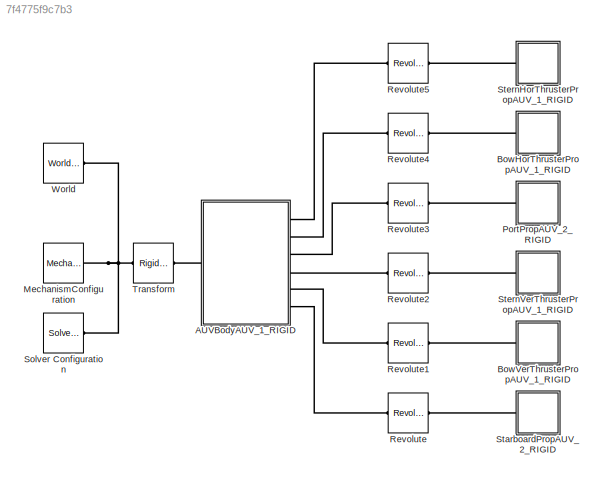
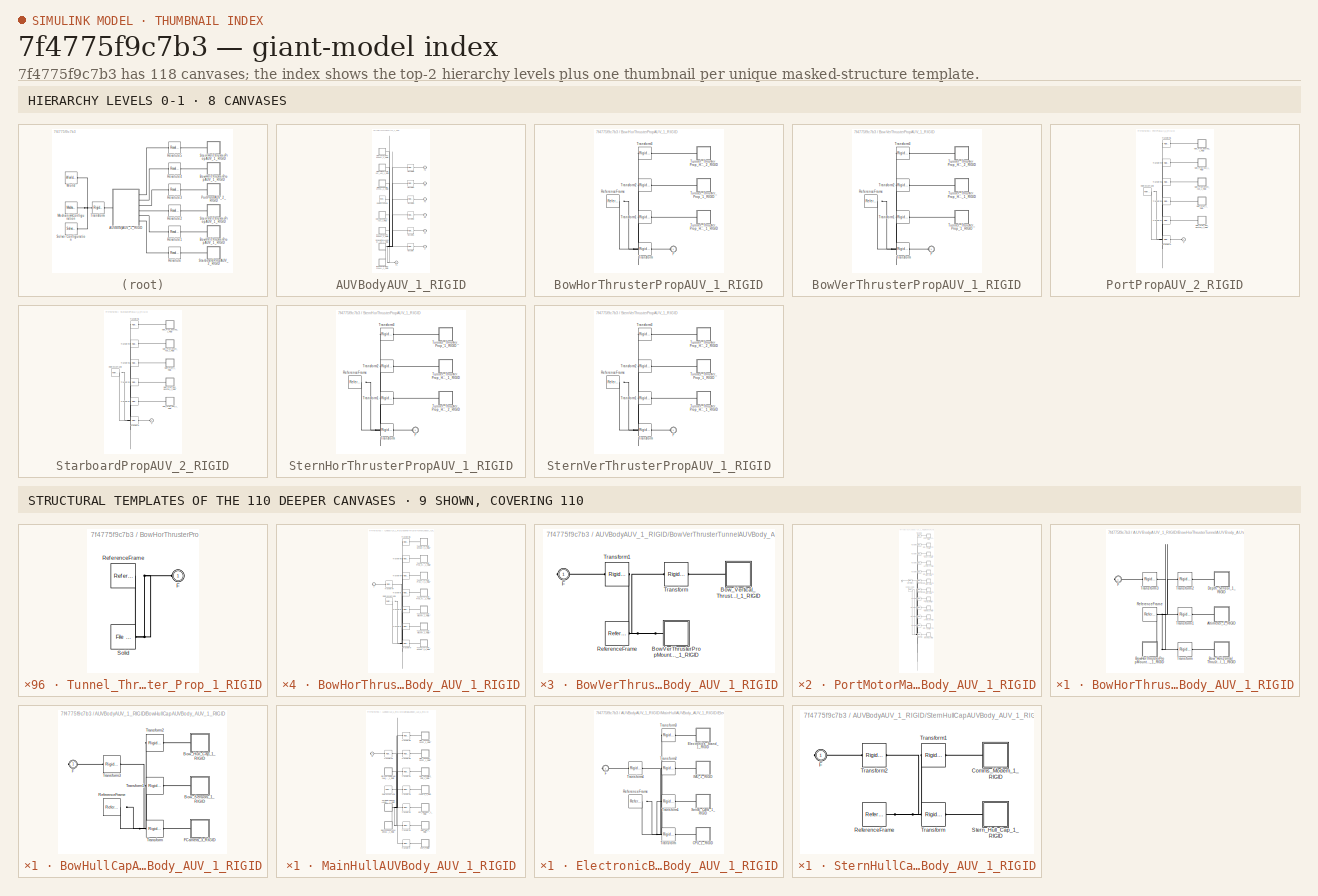
[diagram: thumbnail index - top-2 hierarchy levels (8 canvases) + 9 structural-template representatives of the remaining 110 canvases]
MODEL slx_7f4775f9c7b3
KIND model
CONFIG AbsTol = auto
CONFIG EnableMultiTasking = off
CONFIG FixedStep = auto
CONFIG MaxStep = auto
CONFIG MinStep = auto
CONFIG RelTol = 1e-3
CONFIG SampleTimeConstraint = Unconstrained
CONFIG Solver = VariableStepAuto
CONFIG SolverName = VariableStepAuto
CONFIG StartTime = 0.0
CONFIG StopTime = 10.0
WORKSPACE source: external: MATLAB File  (data not in archive)
BLOCK [SubSystem] AUVBodyAUV_1_RIGID
  Ports = [0, 0, 0, 0, 0, 1, 6]
  RequestExecContextInheritance = off
BLOCK [SubSystem] AUVBodyAUV_1_RIGID/BowHorThrusterTunnelAUVBody_AUV_1_RIGID
  Ports = [0, 0, 0, 0, 0, 0, 1]
  RequestExecContextInheritance = off
BLOCK [SubSystem] AUVBodyAUV_1_RIGID/BowHorThrusterTunnelAUVBody_AUV_1_RIGID/Altimeter_1_RIGID
  Ports = [0, 0, 0, 0, 0, 1]
  RequestExecContextInheritance = off
BLOCK [PMIOPort] AUVBodyAUV_1_RIGID/BowHorThrusterTunnelAUVBody_AUV_1_RIGID/Altimeter_1_RIGID/F
  Side = Left
BLOCK [Reference] AUVBodyAUV_1_RIGID/BowHorThrusterTunnelAUVBody_AUV_1_RIGID/Altimeter_1_RIGID/ReferenceFrame  REF=sm_lib/Frames and
Transforms/Reference
Frame
  Ports = [0, 0, 0, 0, 0, 0, 1]
  SourceBlock = sm_lib/Frames and\nTransforms/Reference\nFrame
  SourceProductBaseCode = MS
  SourceType = Reference\nFrame
BLOCK [Reference] AUVBodyAUV_1_RIGID/BowHorThrusterTunnelAUVBody_AUV_1_RIGID/Altimeter_1_RIGID/Solid  REF=sm_lib/Body Elements/File Solid
  Ports = [0, 0, 0, 0, 0, 0, 1]
  SourceBlock = sm_lib/Body Elements/File Solid
  SourceProductBaseCode = MS
  SourceType = File Solid
BLOCK [SubSystem] AUVBodyAUV_1_RIGID/BowHorThrusterTunnelAUVBody_AUV_1_RIGID/BowHorThrusterPropMountBowHorThrusterTunnel_AUVBody_AUV_1_RIGID
  Ports = [0, 0, 0, 0, 0, 0, 1]
  RequestExecContextInheritance = off
BLOCK [PMIOPort] AUVBodyAUV_1_RIGID/BowHorThrusterTunnelAUVBody_AUV_1_RIGID/BowHorThrusterPropMountBowHorThrusterTunnel_AUVBody_AUV_1_RIGID/F
  Side = Right
BLOCK [Reference] AUVBodyAUV_1_RIGID/BowHorThrusterTunnelAUVBody_AUV_1_RIGID/BowHorThrusterPropMountBowHorThrusterTunnel_AUVBody_AUV_1_RIGID/ReferenceFrame  REF=sm_lib/Frames and
Transforms/Reference
Frame
  Ports = [0, 0, 0, 0, 0, 0, 1]
  SourceBlock = sm_lib/Frames and\nTransforms/Reference\nFrame
  SourceProductBaseCode = MS
  SourceType = Reference\nFrame
BLOCK [Reference] AUVBodyAUV_1_RIGID/BowHorThrusterTunnelAUVBody_AUV_1_RIGID/BowHorThrusterPropMountBowHorThrusterTunnel_AUVBody_AUV_1_RIGID/Transform  REF=sm_lib/Frames and
Transforms/Rigid
Transform
  Ports = [0, 0, 0, 0, 0, 1, 1]
  SourceBlock = sm_lib/Frames and\nTransforms/Rigid\nTransform
  SourceProductBaseCode = MS
  SourceType = Rigid\nTransform
BLOCK [Reference] AUVBodyAUV_1_RIGID/BowHorThrusterTunnelAUVBody_AUV_1_RIGID/BowHorThrusterPropMountBowHorThrusterTunnel_AUVBody_AUV_1_RIGID/Transform1  REF=sm_lib/Frames and
Transforms/Rigid
Transform
  Ports = [0, 0, 0, 0, 0, 1, 1]
  SourceBlock = sm_lib/Frames and\nTransforms/Rigid\nTransform
  SourceProductBaseCode = MS
  SourceType = Rigid\nTransform
BLOCK [Reference] AUVBodyAUV_1_RIGID/BowHorThrusterTunnelAUVBody_AUV_1_RIGID/BowHorThrusterPropMountBowHorThrusterTunnel_AUVBody_AUV_1_RIGID/Transform2  REF=sm_lib/Frames and
Transforms/Rigid
Transform
  Ports = [0, 0, 0, 0, 0, 1, 1]
  SourceBlock = sm_lib/Frames and\nTransforms/Rigid\nTransform
  SourceProductBaseCode = MS
  SourceType = Rigid\nTransform
BLOCK [Reference] AUVBodyAUV_1_RIGID/BowHorThrusterTunnelAUVBody_AUV_1_RIGID/BowHorThrusterPropMountBowHorThrusterTunnel_AUVBody_AUV_1_RIGID/Transform3  REF=sm_lib/Frames and
Transforms/Rigid
Transform
  Ports = [0, 0, 0, 0, 0, 1, 1]
  SourceBlock = sm_lib/Frames and\nTransforms/Rigid\nTransform
  SourceProductBaseCode = MS
  SourceType = Rigid\nTransform
BLOCK [Reference] AUVBodyAUV_1_RIGID/BowHorThrusterTunnelAUVBody_AUV_1_RIGID/BowHorThrusterPropMountBowHorThrusterTunnel_AUVBody_AUV_1_RIGID/Transform4  REF=sm_lib/Frames and
Transforms/Rigid
Transform
  Ports = [0, 0, 0, 0, 0, 1, 1]
  SourceBlock = sm_lib/Frames and\nTransforms/Rigid\nTransform
  SourceProductBaseCode = MS
  SourceType = Rigid\nTransform
BLOCK [Reference] AUVBodyAUV_1_RIGID/BowHorThrusterTunnelAUVBody_AUV_1_RIGID/BowHorThrusterPropMountBowHorThrusterTunnel_AUVBody_AUV_1_RIGID/Transform5  REF=sm_lib/Frames and
Transforms/Rigid
Transform
  Ports = [0, 0, 0, 0, 0, 1, 1]
  SourceBlock = sm_lib/Frames and\nTransforms/Rigid\nTransform
  SourceProductBaseCode = MS
  SourceType = Rigid\nTransform
BLOCK [Reference] AUVBodyAUV_1_RIGID/BowHorThrusterTunnelAUVBody_AUV_1_RIGID/BowHorThrusterPropMountBowHorThrusterTunnel_AUVBody_AUV_1_RIGID/Transform6  REF=sm_lib/Frames and
Transforms/Rigid
Transform
  Ports = [0, 0, 0, 0, 0, 1, 1]
  SourceBlock = sm_lib/Frames and\nTransforms/Rigid\nTransform
  SourceProductBaseCode = MS
  SourceType = Rigid\nTransform
BLOCK [Reference] AUVBodyAUV_1_RIGID/BowHorThrusterTunnelAUVBody_AUV_1_RIGID/BowHorThrusterPropMountBowHorThrusterTunnel_AUVBody_AUV_1_RIGID/Transform7  REF=sm_lib/Frames and
Transforms/Rigid
Transform
  Ports = [0, 0, 0, 0, 0, 1, 1]
  SourceBlock = sm_lib/Frames and\nTransforms/Rigid\nTransform
  SourceProductBaseCode = MS
  SourceType = Rigid\nTransform
BLOCK [SubSystem] AUVBodyAUV_1_RIGID/BowHorThrusterTunnelAUVBody_AUV_1_RIGID/BowHorThrusterPropMountBowHorThrusterTunnel_AUVBody_AUV_1_RIGID/Tunnel_Thruster_Prop_Hub_1_RIGID
  Ports = [0, 0, 0, 0, 0, 1]
  RequestExecContextInheritance = off
BLOCK [PMIOPort] AUVBodyAUV_1_RIGID/BowHorThrusterTunnelAUVBody_AUV_1_RIGID/BowHorThrusterPropMountBowHorThrusterTunnel_AUVBody_AUV_1_RIGID/Tunnel_Thruster_Prop_Hub_1_RIGID/F
  Side = Left
BLOCK [Reference] AUVBodyAUV_1_RIGID/BowHorThrusterTunnelAUVBody_AUV_1_RIGID/BowHorThrusterPropMountBowHorThrusterTunnel_AUVBody_AUV_1_RIGID/Tunnel_Thruster_Prop_Hub_1_RIGID/ReferenceFrame  REF=sm_lib/Frames and
Transforms/Reference
Frame
  Ports = [0, 0, 0, 0, 0, 0, 1]
  SourceBlock = sm_lib/Frames and\nTransforms/Reference\nFrame
  SourceProductBaseCode = MS
  SourceType = Reference\nFrame
BLOCK [Reference] AUVBodyAUV_1_RIGID/BowHorThrusterTunnelAUVBody_AUV_1_RIGID/BowHorThrusterPropMountBowHorThrusterTunnel_AUVBody_AUV_1_RIGID/Tunnel_Thruster_Prop_Hub_1_RIGID/Solid  REF=sm_lib/Body Elements/File Solid
  Ports = [0, 0, 0, 0, 0, 0, 1]
  SourceBlock = sm_lib/Body Elements/File Solid
  SourceProductBaseCode = MS
  SourceType = File Solid
BLOCK [SubSystem] AUVBodyAUV_1_RIGID/BowHorThrusterTunnelAUVBody_AUV_1_RIGID/BowHorThrusterPropMountBowHorThrusterTunnel_AUVBody_AUV_1_RIGID/Tunnel_Thruster_Prop_Hub_2_RIGID
  Ports = [0, 0, 0, 0, 0, 1]
  RequestExecContextInheritance = off
BLOCK [PMIOPort] AUVBodyAUV_1_RIGID/BowHorThrusterTunnelAUVBody_AUV_1_RIGID/BowHorThrusterPropMountBowHorThrusterTunnel_AUVBody_AUV_1_RIGID/Tunnel_Thruster_Prop_Hub_2_RIGID/F
  Side = Left
BLOCK [Reference] AUVBodyAUV_1_RIGID/BowHorThrusterTunnelAUVBody_AUV_1_RIGID/BowHorThrusterPropMountBowHorThrusterTunnel_AUVBody_AUV_1_RIGID/Tunnel_Thruster_Prop_Hub_2_RIGID/ReferenceFrame  REF=sm_lib/Frames and
Transforms/Reference
Frame
  Ports = [0, 0, 0, 0, 0, 0, 1]
  SourceBlock = sm_lib/Frames and\nTransforms/Reference\nFrame
  SourceProductBaseCode = MS
  SourceType = Reference\nFrame
BLOCK [Reference] AUVBodyAUV_1_RIGID/BowHorThrusterTunnelAUVBody_AUV_1_RIGID/BowHorThrusterPropMountBowHorThrusterTunnel_AUVBody_AUV_1_RIGID/Tunnel_Thruster_Prop_Hub_2_RIGID/Solid  REF=sm_lib/Body Elements/File Solid
  Ports = [0, 0, 0, 0, 0, 0, 1]
  SourceBlock = sm_lib/Body Elements/File Solid
  SourceProductBaseCode = MS
  SourceType = File Solid
BLOCK [SubSystem] AUVBodyAUV_1_RIGID/BowHorThrusterTunnelAUVBody_AUV_1_RIGID/BowHorThrusterPropMountBowHorThrusterTunnel_AUVBody_AUV_1_RIGID/Tunnel_Thruster_Prop_Mount_1_RIGID
  Ports = [0, 0, 0, 0, 0, 1]
  RequestExecContextInheritance = off
BLOCK [PMIOPort] AUVBodyAUV_1_RIGID/BowHorThrusterTunnelAUVBody_AUV_1_RIGID/BowHorThrusterPropMountBowHorThrusterTunnel_AUVBody_AUV_1_RIGID/Tunnel_Thruster_Prop_Mount_1_RIGID/F
  Side = Left
BLOCK [Reference] AUVBodyAUV_1_RIGID/BowHorThrusterTunnelAUVBody_AUV_1_RIGID/BowHorThrusterPropMountBowHorThrusterTunnel_AUVBody_AUV_1_RIGID/Tunnel_Thruster_Prop_Mount_1_RIGID/ReferenceFrame  REF=sm_lib/Frames and
Transforms/Reference
Frame
  Ports = [0, 0, 0, 0, 0, 0, 1]
  SourceBlock = sm_lib/Frames and\nTransforms/Reference\nFrame
  SourceProductBaseCode = MS
  SourceType = Reference\nFrame
BLOCK [Reference] AUVBodyAUV_1_RIGID/BowHorThrusterTunnelAUVBody_AUV_1_RIGID/BowHorThrusterPropMountBowHorThrusterTunnel_AUVBody_AUV_1_RIGID/Tunnel_Thruster_Prop_Mount_1_RIGID/Solid  REF=sm_lib/Body Elements/File Solid
  Ports = [0, 0, 0, 0, 0, 0, 1]
  SourceBlock = sm_lib/Body Elements/File Solid
  SourceProductBaseCode = MS
  SourceType = File Solid
BLOCK [SubSystem] AUVBodyAUV_1_RIGID/BowHorThrusterTunnelAUVBody_AUV_1_RIGID/BowHorThrusterPropMountBowHorThrusterTunnel_AUVBody_AUV_1_RIGID/Tunnel_Thruster_Shoulder_Bolt_1_RIGID
  Ports = [0, 0, 0, 0, 0, 1]
  RequestExecContextInheritance = off
BLOCK [PMIOPort] AUVBodyAUV_1_RIGID/BowHorThrusterTunnelAUVBody_AUV_1_RIGID/BowHorThrusterPropMountBowHorThrusterTunnel_AUVBody_AUV_1_RIGID/Tunnel_Thruster_Shoulder_Bolt_1_RIGID/F
  Side = Left
BLOCK [Reference] AUVBodyAUV_1_RIGID/BowHorThrusterTunnelAUVBody_AUV_1_RIGID/BowHorThrusterPropMountBowHorThrusterTunnel_AUVBody_AUV_1_RIGID/Tunnel_Thruster_Shoulder_Bolt_1_RIGID/ReferenceFrame  REF=sm_lib/Frames and
Transforms/Reference
Frame
  Ports = [0, 0, 0, 0, 0, 0, 1]
  SourceBlock = sm_lib/Frames and\nTransforms/Reference\nFrame
  SourceProductBaseCode = MS
  SourceType = Reference\nFrame
BLOCK [Reference] AUVBodyAUV_1_RIGID/BowHorThrusterTunnelAUVBody_AUV_1_RIGID/BowHorThrusterPropMountBowHorThrusterTunnel_AUVBody_AUV_1_RIGID/Tunnel_Thruster_Shoulder_Bolt_1_RIGID/Solid  REF=sm_lib/Body Elements/File Solid
  Ports = [0, 0, 0, 0, 0, 0, 1]
  SourceBlock = sm_lib/Body Elements/File Solid
  SourceProductBaseCode = MS
  SourceType = File Solid
BLOCK [SubSystem] AUVBodyAUV_1_RIGID/BowHorThrusterTunnelAUVBody_AUV_1_RIGID/BowHorThrusterPropMountBowHorThrusterTunnel_AUVBody_AUV_1_RIGID/Tunnel_Thruster_Shoulder_Bolt_2_RIGID
  Ports = [0, 0, 0, 0, 0, 1]
  RequestExecContextInheritance = off
BLOCK [PMIOPort] AUVBodyAUV_1_RIGID/BowHorThrusterTunnelAUVBody_AUV_1_RIGID/BowHorThrusterPropMountBowHorThrusterTunnel_AUVBody_AUV_1_RIGID/Tunnel_Thruster_Shoulder_Bolt_2_RIGID/F
  Side = Left
BLOCK [Reference] AUVBodyAUV_1_RIGID/BowHorThrusterTunnelAUVBody_AUV_1_RIGID/BowHorThrusterPropMountBowHorThrusterTunnel_AUVBody_AUV_1_RIGID/Tunnel_Thruster_Shoulder_Bolt_2_RIGID/ReferenceFrame  REF=sm_lib/Frames and
Transforms/Reference
Frame
  Ports = [0, 0, 0, 0, 0, 0, 1]
  SourceBlock = sm_lib/Frames and\nTransforms/Reference\nFrame
  SourceProductBaseCode = MS
  SourceType = Reference\nFrame
BLOCK [Reference] AUVBodyAUV_1_RIGID/BowHorThrusterTunnelAUVBody_AUV_1_RIGID/BowHorThrusterPropMountBowHorThrusterTunnel_AUVBody_AUV_1_RIGID/Tunnel_Thruster_Shoulder_Bolt_2_RIGID/Solid  REF=sm_lib/Body Elements/File Solid
  Ports = [0, 0, 0, 0, 0, 0, 1]
  SourceBlock = sm_lib/Body Elements/File Solid
  SourceProductBaseCode = MS
  SourceType = File Solid
BLOCK [SubSystem] AUVBodyAUV_1_RIGID/BowHorThrusterTunnelAUVBody_AUV_1_RIGID/BowHorThrusterPropMountBowHorThrusterTunnel_AUVBody_AUV_1_RIGID/Tunnel_Thruster_Washer_1_RIGID
  Ports = [0, 0, 0, 0, 0, 1]
  RequestExecContextInheritance = off
BLOCK [PMIOPort] AUVBodyAUV_1_RIGID/BowHorThrusterTunnelAUVBody_AUV_1_RIGID/BowHorThrusterPropMountBowHorThrusterTunnel_AUVBody_AUV_1_RIGID/Tunnel_Thruster_Washer_1_RIGID/F
  Side = Left
BLOCK [Reference] AUVBodyAUV_1_RIGID/BowHorThrusterTunnelAUVBody_AUV_1_RIGID/BowHorThrusterPropMountBowHorThrusterTunnel_AUVBody_AUV_1_RIGID/Tunnel_Thruster_Washer_1_RIGID/ReferenceFrame  REF=sm_lib/Frames and
Transforms/Reference
Frame
  Ports = [0, 0, 0, 0, 0, 0, 1]
  SourceBlock = sm_lib/Frames and\nTransforms/Reference\nFrame
  SourceProductBaseCode = MS
  SourceType = Reference\nFrame
BLOCK [Reference] AUVBodyAUV_1_RIGID/BowHorThrusterTunnelAUVBody_AUV_1_RIGID/BowHorThrusterPropMountBowHorThrusterTunnel_AUVBody_AUV_1_RIGID/Tunnel_Thruster_Washer_1_RIGID/Solid  REF=sm_lib/Body Elements/File Solid
  Ports = [0, 0, 0, 0, 0, 0, 1]
  SourceBlock = sm_lib/Body Elements/File Solid
  SourceProductBaseCode = MS
  SourceType = File Solid
BLOCK [SubSystem] AUVBodyAUV_1_RIGID/BowHorThrusterTunnelAUVBody_AUV_1_RIGID/BowHorThrusterPropMountBowHorThrusterTunnel_AUVBody_AUV_1_RIGID/Tunnel_Thruster_Washer_2_RIGID
  Ports = [0, 0, 0, 0, 0, 1]
  RequestExecContextInheritance = off
BLOCK [PMIOPort] AUVBodyAUV_1_RIGID/BowHorThrusterTunnelAUVBody_AUV_1_RIGID/BowHorThrusterPropMountBowHorThrusterTunnel_AUVBody_AUV_1_RIGID/Tunnel_Thruster_Washer_2_RIGID/F
  Side = Left
BLOCK [Reference] AUVBodyAUV_1_RIGID/BowHorThrusterTunnelAUVBody_AUV_1_RIGID/BowHorThrusterPropMountBowHorThrusterTunnel_AUVBody_AUV_1_RIGID/Tunnel_Thruster_Washer_2_RIGID/ReferenceFrame  REF=sm_lib/Frames and
Transforms/Reference
Frame
  Ports = [0, 0, 0, 0, 0, 0, 1]
  SourceBlock = sm_lib/Frames and\nTransforms/Reference\nFrame
  SourceProductBaseCode = MS
  SourceType = Reference\nFrame
BLOCK [Reference] AUVBodyAUV_1_RIGID/BowHorThrusterTunnelAUVBody_AUV_1_RIGID/BowHorThrusterPropMountBowHorThrusterTunnel_AUVBody_AUV_1_RIGID/Tunnel_Thruster_Washer_2_RIGID/Solid  REF=sm_lib/Body Elements/File Solid
  Ports = [0, 0, 0, 0, 0, 0, 1]
  SourceBlock = sm_lib/Body Elements/File Solid
  SourceProductBaseCode = MS
  SourceType = File Solid
BLOCK [SubSystem] AUVBodyAUV_1_RIGID/BowHorThrusterTunnelAUVBody_AUV_1_RIGID/Bow_Horizontal_Thruster_Tunnel_1_RIGID
  Ports = [0, 0, 0, 0, 0, 1]
  RequestExecContextInheritance = off
BLOCK [PMIOPort] AUVBodyAUV_1_RIGID/BowHorThrusterTunnelAUVBody_AUV_1_RIGID/Bow_Horizontal_Thruster_Tunnel_1_RIGID/F
  Side = Left
BLOCK [Reference] AUVBodyAUV_1_RIGID/BowHorThrusterTunnelAUVBody_AUV_1_RIGID/Bow_Horizontal_Thruster_Tunnel_1_RIGID/ReferenceFrame  REF=sm_lib/Frames and
Transforms/Reference
Frame
  Ports = [0, 0, 0, 0, 0, 0, 1]
  SourceBlock = sm_lib/Frames and\nTransforms/Reference\nFrame
  SourceProductBaseCode = MS
  SourceType = Reference\nFrame
BLOCK [Reference] AUVBodyAUV_1_RIGID/BowHorThrusterTunnelAUVBody_AUV_1_RIGID/Bow_Horizontal_Thruster_Tunnel_1_RIGID/Solid  REF=sm_lib/Body Elements/File Solid
  Ports = [0, 0, 0, 0, 0, 0, 1]
  SourceBlock = sm_lib/Body Elements/File Solid
  SourceProductBaseCode = MS
  SourceType = File Solid
BLOCK [SubSystem] AUVBodyAUV_1_RIGID/BowHorThrusterTunnelAUVBody_AUV_1_RIGID/Depth_Sensor_1_RIGID
  Ports = [0, 0, 0, 0, 0, 1]
  RequestExecContextInheritance = off
BLOCK [PMIOPort] AUVBodyAUV_1_RIGID/BowHorThrusterTunnelAUVBody_AUV_1_RIGID/Depth_Sensor_1_RIGID/F
  Side = Left
BLOCK [Reference] AUVBodyAUV_1_RIGID/BowHorThrusterTunnelAUVBody_AUV_1_RIGID/Depth_Sensor_1_RIGID/ReferenceFrame  REF=sm_lib/Frames and
Transforms/Reference
Frame
  Ports = [0, 0, 0, 0, 0, 0, 1]
  SourceBlock = sm_lib/Frames and\nTransforms/Reference\nFrame
  SourceProductBaseCode = MS
  SourceType = Reference\nFrame
BLOCK [Reference] AUVBodyAUV_1_RIGID/BowHorThrusterTunnelAUVBody_AUV_1_RIGID/Depth_Sensor_1_RIGID/Solid  REF=sm_lib/Body Elements/File Solid
  Ports = [0, 0, 0, 0, 0, 0, 1]
  SourceBlock = sm_lib/Body Elements/File Solid
  SourceProductBaseCode = MS
  SourceType = File Solid
BLOCK [PMIOPort] AUVBodyAUV_1_RIGID/BowHorThrusterTunnelAUVBody_AUV_1_RIGID/F
  Side = Right
BLOCK [Reference] AUVBodyAUV_1_RIGID/BowHorThrusterTunnelAUVBody_AUV_1_RIGID/ReferenceFrame  REF=sm_lib/Frames and
Transforms/Reference
Frame
  Ports = [0, 0, 0, 0, 0, 0, 1]
  SourceBlock = sm_lib/Frames and\nTransforms/Reference\nFrame
  SourceProductBaseCode = MS
  SourceType = Reference\nFrame
BLOCK [Reference] AUVBodyAUV_1_RIGID/BowHorThrusterTunnelAUVBody_AUV_1_RIGID/Transform  REF=sm_lib/Frames and
Transforms/Rigid
Transform
  Ports = [0, 0, 0, 0, 0, 1, 1]
  SourceBlock = sm_lib/Frames and\nTransforms/Rigid\nTransform
  SourceProductBaseCode = MS
  SourceType = Rigid\nTransform
BLOCK [Reference] AUVBodyAUV_1_RIGID/BowHorThrusterTunnelAUVBody_AUV_1_RIGID/Transform1  REF=sm_lib/Frames and
Transforms/Rigid
Transform
  Ports = [0, 0, 0, 0, 0, 1, 1]
  SourceBlock = sm_lib/Frames and\nTransforms/Rigid\nTransform
  SourceProductBaseCode = MS
  SourceType = Rigid\nTransform
BLOCK [Reference] AUVBodyAUV_1_RIGID/BowHorThrusterTunnelAUVBody_AUV_1_RIGID/Transform2  REF=sm_lib/Frames and
Transforms/Rigid
Transform
  Ports = [0, 0, 0, 0, 0, 1, 1]
  SourceBlock = sm_lib/Frames and\nTransforms/Rigid\nTransform
  SourceProductBaseCode = MS
  SourceType = Rigid\nTransform
BLOCK [Reference] AUVBodyAUV_1_RIGID/BowHorThrusterTunnelAUVBody_AUV_1_RIGID/Transform3  REF=sm_lib/Frames and
Transforms/Rigid
Transform
  Ports = [0, 0, 0, 0, 0, 1, 1]
  SourceBlock = sm_lib/Frames and\nTransforms/Rigid\nTransform
  SourceProductBaseCode = MS
  SourceType = Rigid\nTransform
BLOCK [SubSystem] AUVBodyAUV_1_RIGID/BowHullCapAUVBody_AUV_1_RIGID
  Ports = [0, 0, 0, 0, 0, 0, 1]
  RequestExecContextInheritance = off
BLOCK [SubSystem] AUVBodyAUV_1_RIGID/BowHullCapAUVBody_AUV_1_RIGID/Bow_Hull_Cap_1_RIGID
  Ports = [0, 0, 0, 0, 0, 1]
  RequestExecContextInheritance = off
BLOCK [PMIOPort] AUVBodyAUV_1_RIGID/BowHullCapAUVBody_AUV_1_RIGID/Bow_Hull_Cap_1_RIGID/F
  Side = Left
BLOCK [Reference] AUVBodyAUV_1_RIGID/BowHullCapAUVBody_AUV_1_RIGID/Bow_Hull_Cap_1_RIGID/ReferenceFrame  REF=sm_lib/Frames and
Transforms/Reference
Frame
  Ports = [0, 0, 0, 0, 0, 0, 1]
  SourceBlock = sm_lib/Frames and\nTransforms/Reference\nFrame
  SourceProductBaseCode = MS
  SourceType = Reference\nFrame
BLOCK [Reference] AUVBodyAUV_1_RIGID/BowHullCapAUVBody_AUV_1_RIGID/Bow_Hull_Cap_1_RIGID/Solid  REF=sm_lib/Body Elements/File Solid
  Ports = [0, 0, 0, 0, 0, 0, 1]
  SourceBlock = sm_lib/Body Elements/File Solid
  SourceProductBaseCode = MS
  SourceType = File Solid
BLOCK [SubSystem] AUVBodyAUV_1_RIGID/BowHullCapAUVBody_AUV_1_RIGID/Bow_Sensors_1_RIGID
  Ports = [0, 0, 0, 0, 0, 1]
  RequestExecContextInheritance = off
BLOCK [PMIOPort] AUVBodyAUV_1_RIGID/BowHullCapAUVBody_AUV_1_RIGID/Bow_Sensors_1_RIGID/F
  Side = Left
BLOCK [Reference] AUVBodyAUV_1_RIGID/BowHullCapAUVBody_AUV_1_RIGID/Bow_Sensors_1_RIGID/ReferenceFrame  REF=sm_lib/Frames and
Transforms/Reference
Frame
  Ports = [0, 0, 0, 0, 0, 0, 1]
  SourceBlock = sm_lib/Frames and\nTransforms/Reference\nFrame
  SourceProductBaseCode = MS
  SourceType = Reference\nFrame
BLOCK [Reference] AUVBodyAUV_1_RIGID/BowHullCapAUVBody_AUV_1_RIGID/Bow_Sensors_1_RIGID/Solid  REF=sm_lib/Body Elements/File Solid
  Ports = [0, 0, 0, 0, 0, 0, 1]
  SourceBlock = sm_lib/Body Elements/File Solid
  SourceProductBaseCode = MS
  SourceType = File Solid
BLOCK [PMIOPort] AUVBodyAUV_1_RIGID/BowHullCapAUVBody_AUV_1_RIGID/F
  Side = Right
BLOCK [SubSystem] AUVBodyAUV_1_RIGID/BowHullCapAUVBody_AUV_1_RIGID/FCamera_3_RIGID
  Ports = [0, 0, 0, 0, 0, 1]
  RequestExecContextInheritance = off
BLOCK [PMIOPort] AUVBodyAUV_1_RIGID/BowHullCapAUVBody_AUV_1_RIGID/FCamera_3_RIGID/F
  Side = Left
BLOCK [Reference] AUVBodyAUV_1_RIGID/BowHullCapAUVBody_AUV_1_RIGID/FCamera_3_RIGID/ReferenceFrame  REF=sm_lib/Frames and
Transforms/Reference
Frame
  Ports = [0, 0, 0, 0, 0, 0, 1]
  SourceBlock = sm_lib/Frames and\nTransforms/Reference\nFrame
  SourceProductBaseCode = MS
  SourceType = Reference\nFrame
BLOCK [Reference] AUVBodyAUV_1_RIGID/BowHullCapAUVBody_AUV_1_RIGID/FCamera_3_RIGID/Solid  REF=sm_lib/Body Elements/File Solid
  Ports = [0, 0, 0, 0, 0, 0, 1]
  SourceBlock = sm_lib/Body Elements/File Solid
  SourceProductBaseCode = MS
  SourceType = File Solid
BLOCK [Reference] AUVBodyAUV_1_RIGID/BowHullCapAUVBody_AUV_1_RIGID/ReferenceFrame  REF=sm_lib/Frames and
Transforms/Reference
Frame
  Ports = [0, 0, 0, 0, 0, 0, 1]
  SourceBlock = sm_lib/Frames and\nTransforms/Reference\nFrame
  SourceProductBaseCode = MS
  SourceType = Reference\nFrame
BLOCK [Reference] AUVBodyAUV_1_RIGID/BowHullCapAUVBody_AUV_1_RIGID/Transform  REF=sm_lib/Frames and
Transforms/Rigid
Transform
  Ports = [0, 0, 0, 0, 0, 1, 1]
  SourceBlock = sm_lib/Frames and\nTransforms/Rigid\nTransform
  SourceProductBaseCode = MS
  SourceType = Rigid\nTransform
BLOCK [Reference] AUVBodyAUV_1_RIGID/BowHullCapAUVBody_AUV_1_RIGID/Transform1  REF=sm_lib/Frames and
Transforms/Rigid
Transform
  Ports = [0, 0, 0, 0, 0, 1, 1]
  SourceBlock = sm_lib/Frames and\nTransforms/Rigid\nTransform
  SourceProductBaseCode = MS
  SourceType = Rigid\nTransform
BLOCK [Reference] AUVBodyAUV_1_RIGID/BowHullCapAUVBody_AUV_1_RIGID/Transform2  REF=sm_lib/Frames and
Transforms/Rigid
Transform
  Ports = [0, 0, 0, 0, 0, 1, 1]
  SourceBlock = sm_lib/Frames and\nTransforms/Rigid\nTransform
  SourceProductBaseCode = MS
  SourceType = Rigid\nTransform
BLOCK [Reference] AUVBodyAUV_1_RIGID/BowHullCapAUVBody_AUV_1_RIGID/Transform3  REF=sm_lib/Frames and
Transforms/Rigid
Transform
  Ports = [0, 0, 0, 0, 0, 1, 1]
  SourceBlock = sm_lib/Frames and\nTransforms/Rigid\nTransform
  SourceProductBaseCode = MS
  SourceType = Rigid\nTransform
BLOCK [SubSystem] AUVBodyAUV_1_RIGID/BowVerThrusterTunnelAUVBody_AUV_1_RIGID
  Ports = [0, 0, 0, 0, 0, 0, 1]
  RequestExecContextInheritance = off
BLOCK [SubSystem] AUVBodyAUV_1_RIGID/BowVerThrusterTunnelAUVBody_AUV_1_RIGID/BowVerThrusterPropMountBowVerThrusterTunnel_AUVBody_AUV_1_RIGID
  Ports = [0, 0, 0, 0, 0, 1]
  RequestExecContextInheritance = off
BLOCK [PMIOPort] AUVBodyAUV_1_RIGID/BowVerThrusterTunnelAUVBody_AUV_1_RIGID/BowVerThrusterPropMountBowVerThrusterTunnel_AUVBody_AUV_1_RIGID/F
  Side = Left
BLOCK [Reference] AUVBodyAUV_1_RIGID/BowVerThrusterTunnelAUVBody_AUV_1_RIGID/BowVerThrusterPropMountBowVerThrusterTunnel_AUVBody_AUV_1_RIGID/ReferenceFrame  REF=sm_lib/Frames and
Transforms/Reference
Frame
  Ports = [0, 0, 0, 0, 0, 0, 1]
  SourceBlock = sm_lib/Frames and\nTransforms/Reference\nFrame
  SourceProductBaseCode = MS
  SourceType = Reference\nFrame
BLOCK [Reference] AUVBodyAUV_1_RIGID/BowVerThrusterTunnelAUVBody_AUV_1_RIGID/BowVerThrusterPropMountBowVerThrusterTunnel_AUVBody_AUV_1_RIGID/Transform  REF=sm_lib/Frames and
Transforms/Rigid
Transform
  Ports = [0, 0, 0, 0, 0, 1, 1]
  SourceBlock = sm_lib/Frames and\nTransforms/Rigid\nTransform
  SourceProductBaseCode = MS
  SourceType = Rigid\nTransform
BLOCK [Reference] AUVBodyAUV_1_RIGID/BowVerThrusterTunnelAUVBody_AUV_1_RIGID/BowVerThrusterPropMountBowVerThrusterTunnel_AUVBody_AUV_1_RIGID/Transform1  REF=sm_lib/Frames and
Transforms/Rigid
Transform
  Ports = [0, 0, 0, 0, 0, 1, 1]
  SourceBlock = sm_lib/Frames and\nTransforms/Rigid\nTransform
  SourceProductBaseCode = MS
  SourceType = Rigid\nTransform
BLOCK [Reference] AUVBodyAUV_1_RIGID/BowVerThrusterTunnelAUVBody_AUV_1_RIGID/BowVerThrusterPropMountBowVerThrusterTunnel_AUVBody_AUV_1_RIGID/Transform2  REF=sm_lib/Frames and
Transforms/Rigid
Transform
  Ports = [0, 0, 0, 0, 0, 1, 1]
  SourceBlock = sm_lib/Frames and\nTransforms/Rigid\nTransform
  SourceProductBaseCode = MS
  SourceType = Rigid\nTransform
BLOCK [Reference] AUVBodyAUV_1_RIGID/BowVerThrusterTunnelAUVBody_AUV_1_RIGID/BowVerThrusterPropMountBowVerThrusterTunnel_AUVBody_AUV_1_RIGID/Transform3  REF=sm_lib/Frames and
Transforms/Rigid
Transform
  Ports = [0, 0, 0, 0, 0, 1, 1]
  SourceBlock = sm_lib/Frames and\nTransforms/Rigid\nTransform
  SourceProductBaseCode = MS
  SourceType = Rigid\nTransform
BLOCK [Reference] AUVBodyAUV_1_RIGID/BowVerThrusterTunnelAUVBody_AUV_1_RIGID/BowVerThrusterPropMountBowVerThrusterTunnel_AUVBody_AUV_1_RIGID/Transform4  REF=sm_lib/Frames and
Transforms/Rigid
Transform
  Ports = [0, 0, 0, 0, 0, 1, 1]
  SourceBlock = sm_lib/Frames and\nTransforms/Rigid\nTransform
  SourceProductBaseCode = MS
  SourceType = Rigid\nTransform
BLOCK [Reference] AUVBodyAUV_1_RIGID/BowVerThrusterTunnelAUVBody_AUV_1_RIGID/BowVerThrusterPropMountBowVerThrusterTunnel_AUVBody_AUV_1_RIGID/Transform5  REF=sm_lib/Frames and
Transforms/Rigid
Transform
  Ports = [0, 0, 0, 0, 0, 1, 1]
  SourceBlock = sm_lib/Frames and\nTransforms/Rigid\nTransform
  SourceProductBaseCode = MS
  SourceType = Rigid\nTransform
BLOCK [Reference] AUVBodyAUV_1_RIGID/BowVerThrusterTunnelAUVBody_AUV_1_RIGID/BowVerThrusterPropMountBowVerThrusterTunnel_AUVBody_AUV_1_RIGID/Transform6  REF=sm_lib/Frames and
Transforms/Rigid
Transform
  Ports = [0, 0, 0, 0, 0, 1, 1]
  SourceBlock = sm_lib/Frames and\nTransforms/Rigid\nTransform
  SourceProductBaseCode = MS
  SourceType = Rigid\nTransform
BLOCK [Reference] AUVBodyAUV_1_RIGID/BowVerThrusterTunnelAUVBody_AUV_1_RIGID/BowVerThrusterPropMountBowVerThrusterTunnel_AUVBody_AUV_1_RIGID/Transform7  REF=sm_lib/Frames and
Transforms/Rigid
Transform
  Ports = [0, 0, 0, 0, 0, 1, 1]
  SourceBlock = sm_lib/Frames and\nTransforms/Rigid\nTransform
  SourceProductBaseCode = MS
  SourceType = Rigid\nTransform
BLOCK [SubSystem] AUVBodyAUV_1_RIGID/BowVerThrusterTunnelAUVBody_AUV_1_RIGID/BowVerThrusterPropMountBowVerThrusterTunnel_AUVBody_AUV_1_RIGID/Tunnel_Thruster_Prop_Hub_1_RIGID
  Ports = [0, 0, 0, 0, 0, 1]
  RequestExecContextInheritance = off
BLOCK [PMIOPort] AUVBodyAUV_1_RIGID/BowVerThrusterTunnelAUVBody_AUV_1_RIGID/BowVerThrusterPropMountBowVerThrusterTunnel_AUVBody_AUV_1_RIGID/Tunnel_Thruster_Prop_Hub_1_RIGID/F
  Side = Left
BLOCK [Reference] AUVBodyAUV_1_RIGID/BowVerThrusterTunnelAUVBody_AUV_1_RIGID/BowVerThrusterPropMountBowVerThrusterTunnel_AUVBody_AUV_1_RIGID/Tunnel_Thruster_Prop_Hub_1_RIGID/ReferenceFrame  REF=sm_lib/Frames and
Transforms/Reference
Frame
  Ports = [0, 0, 0, 0, 0, 0, 1]
  SourceBlock = sm_lib/Frames and\nTransforms/Reference\nFrame
  SourceProductBaseCode = MS
  SourceType = Reference\nFrame
BLOCK [Reference] AUVBodyAUV_1_RIGID/BowVerThrusterTunnelAUVBody_AUV_1_RIGID/BowVerThrusterPropMountBowVerThrusterTunnel_AUVBody_AUV_1_RIGID/Tunnel_Thruster_Prop_Hub_1_RIGID/Solid  REF=sm_lib/Body Elements/File Solid
  Ports = [0, 0, 0, 0, 0, 0, 1]
  SourceBlock = sm_lib/Body Elements/File Solid
  SourceProductBaseCode = MS
  SourceType = File Solid
BLOCK [SubSystem] AUVBodyAUV_1_RIGID/BowVerThrusterTunnelAUVBody_AUV_1_RIGID/BowVerThrusterPropMountBowVerThrusterTunnel_AUVBody_AUV_1_RIGID/Tunnel_Thruster_Prop_Hub_2_RIGID
  Ports = [0, 0, 0, 0, 0, 1]
  RequestExecContextInheritance = off
BLOCK [PMIOPort] AUVBodyAUV_1_RIGID/BowVerThrusterTunnelAUVBody_AUV_1_RIGID/BowVerThrusterPropMountBowVerThrusterTunnel_AUVBody_AUV_1_RIGID/Tunnel_Thruster_Prop_Hub_2_RIGID/F
  Side = Left
BLOCK [Reference] AUVBodyAUV_1_RIGID/BowVerThrusterTunnelAUVBody_AUV_1_RIGID/BowVerThrusterPropMountBowVerThrusterTunnel_AUVBody_AUV_1_RIGID/Tunnel_Thruster_Prop_Hub_2_RIGID/ReferenceFrame  REF=sm_lib/Frames and
Transforms/Reference
Frame
  Ports = [0, 0, 0, 0, 0, 0, 1]
  SourceBlock = sm_lib/Frames and\nTransforms/Reference\nFrame
  SourceProductBaseCode = MS
  SourceType = Reference\nFrame
BLOCK [Reference] AUVBodyAUV_1_RIGID/BowVerThrusterTunnelAUVBody_AUV_1_RIGID/BowVerThrusterPropMountBowVerThrusterTunnel_AUVBody_AUV_1_RIGID/Tunnel_Thruster_Prop_Hub_2_RIGID/Solid  REF=sm_lib/Body Elements/File Solid
  Ports = [0, 0, 0, 0, 0, 0, 1]
  SourceBlock = sm_lib/Body Elements/File Solid
  SourceProductBaseCode = MS
  SourceType = File Solid
BLOCK [SubSystem] AUVBodyAUV_1_RIGID/BowVerThrusterTunnelAUVBody_AUV_1_RIGID/BowVerThrusterPropMountBowVerThrusterTunnel_AUVBody_AUV_1_RIGID/Tunnel_Thruster_Prop_Mount_1_RIGID
  Ports = [0, 0, 0, 0, 0, 1]
  RequestExecContextInheritance = off
BLOCK [PMIOPort] AUVBodyAUV_1_RIGID/BowVerThrusterTunnelAUVBody_AUV_1_RIGID/BowVerThrusterPropMountBowVerThrusterTunnel_AUVBody_AUV_1_RIGID/Tunnel_Thruster_Prop_Mount_1_RIGID/F
  Side = Left
BLOCK [Reference] AUVBodyAUV_1_RIGID/BowVerThrusterTunnelAUVBody_AUV_1_RIGID/BowVerThrusterPropMountBowVerThrusterTunnel_AUVBody_AUV_1_RIGID/Tunnel_Thruster_Prop_Mount_1_RIGID/ReferenceFrame  REF=sm_lib/Frames and
Transforms/Reference
Frame
  Ports = [0, 0, 0, 0, 0, 0, 1]
  SourceBlock = sm_lib/Frames and\nTransforms/Reference\nFrame
  SourceProductBaseCode = MS
  SourceType = Reference\nFrame
BLOCK [Reference] AUVBodyAUV_1_RIGID/BowVerThrusterTunnelAUVBody_AUV_1_RIGID/BowVerThrusterPropMountBowVerThrusterTunnel_AUVBody_AUV_1_RIGID/Tunnel_Thruster_Prop_Mount_1_RIGID/Solid  REF=sm_lib/Body Elements/File Solid
  Ports = [0, 0, 0, 0, 0, 0, 1]
  SourceBlock = sm_lib/Body Elements/File Solid
  SourceProductBaseCode = MS
  SourceType = File Solid
BLOCK [SubSystem] AUVBodyAUV_1_RIGID/BowVerThrusterTunnelAUVBody_AUV_1_RIGID/BowVerThrusterPropMountBowVerThrusterTunnel_AUVBody_AUV_1_RIGID/Tunnel_Thruster_Shoulder_Bolt_1_RIGID
  Ports = [0, 0, 0, 0, 0, 1]
  RequestExecContextInheritance = off
BLOCK [PMIOPort] AUVBodyAUV_1_RIGID/BowVerThrusterTunnelAUVBody_AUV_1_RIGID/BowVerThrusterPropMountBowVerThrusterTunnel_AUVBody_AUV_1_RIGID/Tunnel_Thruster_Shoulder_Bolt_1_RIGID/F
  Side = Left
BLOCK [Reference] AUVBodyAUV_1_RIGID/BowVerThrusterTunnelAUVBody_AUV_1_RIGID/BowVerThrusterPropMountBowVerThrusterTunnel_AUVBody_AUV_1_RIGID/Tunnel_Thruster_Shoulder_Bolt_1_RIGID/ReferenceFrame  REF=sm_lib/Frames and
Transforms/Reference
Frame
  Ports = [0, 0, 0, 0, 0, 0, 1]
  SourceBlock = sm_lib/Frames and\nTransforms/Reference\nFrame
  SourceProductBaseCode = MS
  SourceType = Reference\nFrame
BLOCK [Reference] AUVBodyAUV_1_RIGID/BowVerThrusterTunnelAUVBody_AUV_1_RIGID/BowVerThrusterPropMountBowVerThrusterTunnel_AUVBody_AUV_1_RIGID/Tunnel_Thruster_Shoulder_Bolt_1_RIGID/Solid  REF=sm_lib/Body Elements/File Solid
  Ports = [0, 0, 0, 0, 0, 0, 1]
  SourceBlock = sm_lib/Body Elements/File Solid
  SourceProductBaseCode = MS
  SourceType = File Solid
BLOCK [SubSystem] AUVBodyAUV_1_RIGID/BowVerThrusterTunnelAUVBody_AUV_1_RIGID/BowVerThrusterPropMountBowVerThrusterTunnel_AUVBody_AUV_1_RIGID/Tunnel_Thruster_Shoulder_Bolt_2_RIGID
  Ports = [0, 0, 0, 0, 0, 1]
  RequestExecContextInheritance = off
BLOCK [PMIOPort] AUVBodyAUV_1_RIGID/BowVerThrusterTunnelAUVBody_AUV_1_RIGID/BowVerThrusterPropMountBowVerThrusterTunnel_AUVBody_AUV_1_RIGID/Tunnel_Thruster_Shoulder_Bolt_2_RIGID/F
  Side = Left
BLOCK [Reference] AUVBodyAUV_1_RIGID/BowVerThrusterTunnelAUVBody_AUV_1_RIGID/BowVerThrusterPropMountBowVerThrusterTunnel_AUVBody_AUV_1_RIGID/Tunnel_Thruster_Shoulder_Bolt_2_RIGID/ReferenceFrame  REF=sm_lib/Frames and
Transforms/Reference
Frame
  Ports = [0, 0, 0, 0, 0, 0, 1]
  SourceBlock = sm_lib/Frames and\nTransforms/Reference\nFrame
  SourceProductBaseCode = MS
  SourceType = Reference\nFrame
BLOCK [Reference] AUVBodyAUV_1_RIGID/BowVerThrusterTunnelAUVBody_AUV_1_RIGID/BowVerThrusterPropMountBowVerThrusterTunnel_AUVBody_AUV_1_RIGID/Tunnel_Thruster_Shoulder_Bolt_2_RIGID/Solid  REF=sm_lib/Body Elements/File Solid
  Ports = [0, 0, 0, 0, 0, 0, 1]
  SourceBlock = sm_lib/Body Elements/File Solid
  SourceProductBaseCode = MS
  SourceType = File Solid
BLOCK [SubSystem] AUVBodyAUV_1_RIGID/BowVerThrusterTunnelAUVBody_AUV_1_RIGID/BowVerThrusterPropMountBowVerThrusterTunnel_AUVBody_AUV_1_RIGID/Tunnel_Thruster_Washer_1_RIGID
  Ports = [0, 0, 0, 0, 0, 1]
  RequestExecContextInheritance = off
BLOCK [PMIOPort] AUVBodyAUV_1_RIGID/BowVerThrusterTunnelAUVBody_AUV_1_RIGID/BowVerThrusterPropMountBowVerThrusterTunnel_AUVBody_AUV_1_RIGID/Tunnel_Thruster_Washer_1_RIGID/F
  Side = Left
BLOCK [Reference] AUVBodyAUV_1_RIGID/BowVerThrusterTunnelAUVBody_AUV_1_RIGID/BowVerThrusterPropMountBowVerThrusterTunnel_AUVBody_AUV_1_RIGID/Tunnel_Thruster_Washer_1_RIGID/ReferenceFrame  REF=sm_lib/Frames and
Transforms/Reference
Frame
  Ports = [0, 0, 0, 0, 0, 0, 1]
  SourceBlock = sm_lib/Frames and\nTransforms/Reference\nFrame
  SourceProductBaseCode = MS
  SourceType = Reference\nFrame
BLOCK [Reference] AUVBodyAUV_1_RIGID/BowVerThrusterTunnelAUVBody_AUV_1_RIGID/BowVerThrusterPropMountBowVerThrusterTunnel_AUVBody_AUV_1_RIGID/Tunnel_Thruster_Washer_1_RIGID/Solid  REF=sm_lib/Body Elements/File Solid
  Ports = [0, 0, 0, 0, 0, 0, 1]
  SourceBlock = sm_lib/Body Elements/File Solid
  SourceProductBaseCode = MS
  SourceType = File Solid
BLOCK [SubSystem] AUVBodyAUV_1_RIGID/BowVerThrusterTunnelAUVBody_AUV_1_RIGID/BowVerThrusterPropMountBowVerThrusterTunnel_AUVBody_AUV_1_RIGID/Tunnel_Thruster_Washer_2_RIGID
  Ports = [0, 0, 0, 0, 0, 1]
  RequestExecContextInheritance = off
BLOCK [PMIOPort] AUVBodyAUV_1_RIGID/BowVerThrusterTunnelAUVBody_AUV_1_RIGID/BowVerThrusterPropMountBowVerThrusterTunnel_AUVBody_AUV_1_RIGID/Tunnel_Thruster_Washer_2_RIGID/F
  Side = Left
BLOCK [Reference] AUVBodyAUV_1_RIGID/BowVerThrusterTunnelAUVBody_AUV_1_RIGID/BowVerThrusterPropMountBowVerThrusterTunnel_AUVBody_AUV_1_RIGID/Tunnel_Thruster_Washer_2_RIGID/ReferenceFrame  REF=sm_lib/Frames and
Transforms/Reference
Frame
  Ports = [0, 0, 0, 0, 0, 0, 1]
  SourceBlock = sm_lib/Frames and\nTransforms/Reference\nFrame
  SourceProductBaseCode = MS
  SourceType = Reference\nFrame
BLOCK [Reference] AUVBodyAUV_1_RIGID/BowVerThrusterTunnelAUVBody_AUV_1_RIGID/BowVerThrusterPropMountBowVerThrusterTunnel_AUVBody_AUV_1_RIGID/Tunnel_Thruster_Washer_2_RIGID/Solid  REF=sm_lib/Body Elements/File Solid
  Ports = [0, 0, 0, 0, 0, 0, 1]
  SourceBlock = sm_lib/Body Elements/File Solid
  SourceProductBaseCode = MS
  SourceType = File Solid
BLOCK [SubSystem] AUVBodyAUV_1_RIGID/BowVerThrusterTunnelAUVBody_AUV_1_RIGID/Bow_Vertical_Thruster_Tunnel_1_RIGID
  Ports = [0, 0, 0, 0, 0, 1]
  RequestExecContextInheritance = off
BLOCK [PMIOPort] AUVBodyAUV_1_RIGID/BowVerThrusterTunnelAUVBody_AUV_1_RIGID/Bow_Vertical_Thruster_Tunnel_1_RIGID/F
  Side = Left
BLOCK [Reference] AUVBodyAUV_1_RIGID/BowVerThrusterTunnelAUVBody_AUV_1_RIGID/Bow_Vertical_Thruster_Tunnel_1_RIGID/ReferenceFrame  REF=sm_lib/Frames and
Transforms/Reference
Frame
  Ports = [0, 0, 0, 0, 0, 0, 1]
  SourceBlock = sm_lib/Frames and\nTransforms/Reference\nFrame
  SourceProductBaseCode = MS
  SourceType = Reference\nFrame
BLOCK [Reference] AUVBodyAUV_1_RIGID/BowVerThrusterTunnelAUVBody_AUV_1_RIGID/Bow_Vertical_Thruster_Tunnel_1_RIGID/Solid  REF=sm_lib/Body Elements/File Solid
  Ports = [0, 0, 0, 0, 0, 0, 1]
  SourceBlock = sm_lib/Body Elements/File Solid
  SourceProductBaseCode = MS
  SourceType = File Solid
BLOCK [PMIOPort] AUVBodyAUV_1_RIGID/BowVerThrusterTunnelAUVBody_AUV_1_RIGID/F
  Side = Right
BLOCK [Reference] AUVBodyAUV_1_RIGID/BowVerThrusterTunnelAUVBody_AUV_1_RIGID/ReferenceFrame  REF=sm_lib/Frames and
Transforms/Reference
Frame
  Ports = [0, 0, 0, 0, 0, 0, 1]
  SourceBlock = sm_lib/Frames and\nTransforms/Reference\nFrame
  SourceProductBaseCode = MS
  SourceType = Reference\nFrame
BLOCK [Reference] AUVBodyAUV_1_RIGID/BowVerThrusterTunnelAUVBody_AUV_1_RIGID/Transform  REF=sm_lib/Frames and
Transforms/Rigid
Transform
  Ports = [0, 0, 0, 0, 0, 1, 1]
  SourceBlock = sm_lib/Frames and\nTransforms/Rigid\nTransform
  SourceProductBaseCode = MS
  SourceType = Rigid\nTransform
BLOCK [Reference] AUVBodyAUV_1_RIGID/BowVerThrusterTunnelAUVBody_AUV_1_RIGID/Transform1  REF=sm_lib/Frames and
Transforms/Rigid
Transform
  Ports = [0, 0, 0, 0, 0, 1, 1]
  SourceBlock = sm_lib/Frames and\nTransforms/Rigid\nTransform
  SourceProductBaseCode = MS
  SourceType = Rigid\nTransform
BLOCK [PMIOPort] AUVBodyAUV_1_RIGID/F
  Port = 7
  Side = Right
BLOCK [PMIOPort] AUVBodyAUV_1_RIGID/F1
  Port = 6
  Side = Right
BLOCK [PMIOPort] AUVBodyAUV_1_RIGID/F2
  Port = 5
  Side = Right
BLOCK [PMIOPort] AUVBodyAUV_1_RIGID/F3
  Port = 4
  Side = Right
BLOCK [PMIOPort] AUVBodyAUV_1_RIGID/F4
  Port = 3
  Side = Right
BLOCK [PMIOPort] AUVBodyAUV_1_RIGID/F5
  Port = 2
  Side = Right
BLOCK [PMIOPort] AUVBodyAUV_1_RIGID/F6
  Side = Left
BLOCK [SubSystem] AUVBodyAUV_1_RIGID/MainHullAUVBody_AUV_1_RIGID
  Ports = [0, 0, 0, 0, 0, 0, 1]
  RequestExecContextInheritance = off
BLOCK [SubSystem] AUVBodyAUV_1_RIGID/MainHullAUVBody_AUV_1_RIGID/Camera_1_RIGID
  Ports = [0, 0, 0, 0, 0, 1]
  RequestExecContextInheritance = off
BLOCK [PMIOPort] AUVBodyAUV_1_RIGID/MainHullAUVBody_AUV_1_RIGID/Camera_1_RIGID/F
  Side = Left
BLOCK [Reference] AUVBodyAUV_1_RIGID/MainHullAUVBody_AUV_1_RIGID/Camera_1_RIGID/ReferenceFrame  REF=sm_lib/Frames and
Transforms/Reference
Frame
  Ports = [0, 0, 0, 0, 0, 0, 1]
  SourceBlock = sm_lib/Frames and\nTransforms/Reference\nFrame
  SourceProductBaseCode = MS
  SourceType = Reference\nFrame
BLOCK [Reference] AUVBodyAUV_1_RIGID/MainHullAUVBody_AUV_1_RIGID/Camera_1_RIGID/Solid  REF=sm_lib/Body Elements/File Solid
  Ports = [0, 0, 0, 0, 0, 0, 1]
  SourceBlock = sm_lib/Body Elements/File Solid
  SourceProductBaseCode = MS
  SourceType = File Solid
BLOCK [SubSystem] AUVBodyAUV_1_RIGID/MainHullAUVBody_AUV_1_RIGID/DVL_1_RIGID
  Ports = [0, 0, 0, 0, 0, 1]
  RequestExecContextInheritance = off
BLOCK [PMIOPort] AUVBodyAUV_1_RIGID/MainHullAUVBody_AUV_1_RIGID/DVL_1_RIGID/F
  Side = Left
BLOCK [Reference] AUVBodyAUV_1_RIGID/MainHullAUVBody_AUV_1_RIGID/DVL_1_RIGID/ReferenceFrame  REF=sm_lib/Frames and
Transforms/Reference
Frame
  Ports = [0, 0, 0, 0, 0, 0, 1]
  SourceBlock = sm_lib/Frames and\nTransforms/Reference\nFrame
  SourceProductBaseCode = MS
  SourceType = Reference\nFrame
BLOCK [Reference] AUVBodyAUV_1_RIGID/MainHullAUVBody_AUV_1_RIGID/DVL_1_RIGID/Solid  REF=sm_lib/Body Elements/File Solid
  Ports = [0, 0, 0, 0, 0, 0, 1]
  SourceBlock = sm_lib/Body Elements/File Solid
  SourceProductBaseCode = MS
  SourceType = File Solid
BLOCK [SubSystem] AUVBodyAUV_1_RIGID/MainHullAUVBody_AUV_1_RIGID/ElectronicBoardsMainHull_AUVBody_AUV_1_RIGID
  Ports = [0, 0, 0, 0, 0, 0, 1]
  RequestExecContextInheritance = off
BLOCK [SubSystem] AUVBodyAUV_1_RIGID/MainHullAUVBody_AUV_1_RIGID/ElectronicBoardsMainHull_AUVBody_AUV_1_RIGID/CPU_1_RIGID
  Ports = [0, 0, 0, 0, 0, 1]
  RequestExecContextInheritance = off
BLOCK [PMIOPort] AUVBodyAUV_1_RIGID/MainHullAUVBody_AUV_1_RIGID/ElectronicBoardsMainHull_AUVBody_AUV_1_RIGID/CPU_1_RIGID/F
  Side = Left
BLOCK [Reference] AUVBodyAUV_1_RIGID/MainHullAUVBody_AUV_1_RIGID/ElectronicBoardsMainHull_AUVBody_AUV_1_RIGID/CPU_1_RIGID/ReferenceFrame  REF=sm_lib/Frames and
Transforms/Reference
Frame
  Ports = [0, 0, 0, 0, 0, 0, 1]
  SourceBlock = sm_lib/Frames and\nTransforms/Reference\nFrame
  SourceProductBaseCode = MS
  SourceType = Reference\nFrame
BLOCK [Reference] AUVBodyAUV_1_RIGID/MainHullAUVBody_AUV_1_RIGID/ElectronicBoardsMainHull_AUVBody_AUV_1_RIGID/CPU_1_RIGID/Solid  REF=sm_lib/Body Elements/File Solid
  Ports = [0, 0, 0, 0, 0, 0, 1]
  SourceBlock = sm_lib/Body Elements/File Solid
  SourceProductBaseCode = MS
  SourceType = File Solid
BLOCK [SubSystem] AUVBodyAUV_1_RIGID/MainHullAUVBody_AUV_1_RIGID/ElectronicBoardsMainHull_AUVBody_AUV_1_RIGID/Electronics_Stand_1_RIGID
  Ports = [0, 0, 0, 0, 0, 1]
  RequestExecContextInheritance = off
BLOCK [PMIOPort] AUVBodyAUV_1_RIGID/MainHullAUVBody_AUV_1_RIGID/ElectronicBoardsMainHull_AUVBody_AUV_1_RIGID/Electronics_Stand_1_RIGID/F
  Side = Left
BLOCK [Reference] AUVBodyAUV_1_RIGID/MainHullAUVBody_AUV_1_RIGID/ElectronicBoardsMainHull_AUVBody_AUV_1_RIGID/Electronics_Stand_1_RIGID/ReferenceFrame  REF=sm_lib/Frames and
Transforms/Reference
Frame
  Ports = [0, 0, 0, 0, 0, 0, 1]
  SourceBlock = sm_lib/Frames and\nTransforms/Reference\nFrame
  SourceProductBaseCode = MS
  SourceType = Reference\nFrame
BLOCK [Reference] AUVBodyAUV_1_RIGID/MainHullAUVBody_AUV_1_RIGID/ElectronicBoardsMainHull_AUVBody_AUV_1_RIGID/Electronics_Stand_1_RIGID/Solid  REF=sm_lib/Body Elements/File Solid
  Ports = [0, 0, 0, 0, 0, 0, 1]
  SourceBlock = sm_lib/Body Elements/File Solid
  SourceProductBaseCode = MS
  SourceType = File Solid
BLOCK [PMIOPort] AUVBodyAUV_1_RIGID/MainHullAUVBody_AUV_1_RIGID/ElectronicBoardsMainHull_AUVBody_AUV_1_RIGID/F
  Side = Right
BLOCK [SubSystem] AUVBodyAUV_1_RIGID/MainHullAUVBody_AUV_1_RIGID/ElectronicBoardsMainHull_AUVBody_AUV_1_RIGID/IMU_1_RIGID
  Ports = [0, 0, 0, 0, 0, 1]
  RequestExecContextInheritance = off
BLOCK [PMIOPort] AUVBodyAUV_1_RIGID/MainHullAUVBody_AUV_1_RIGID/ElectronicBoardsMainHull_AUVBody_AUV_1_RIGID/IMU_1_RIGID/F
  Side = Left
BLOCK [Reference] AUVBodyAUV_1_RIGID/MainHullAUVBody_AUV_1_RIGID/ElectronicBoardsMainHull_AUVBody_AUV_1_RIGID/IMU_1_RIGID/ReferenceFrame  REF=sm_lib/Frames and
Transforms/Reference
Frame
  Ports = [0, 0, 0, 0, 0, 0, 1]
  SourceBlock = sm_lib/Frames and\nTransforms/Reference\nFrame
  SourceProductBaseCode = MS
  SourceType = Reference\nFrame
BLOCK [Reference] AUVBodyAUV_1_RIGID/MainHullAUVBody_AUV_1_RIGID/ElectronicBoardsMainHull_AUVBody_AUV_1_RIGID/IMU_1_RIGID/Solid  REF=sm_lib/Body Elements/File Solid
  Ports = [0, 0, 0, 0, 0, 0, 1]
  SourceBlock = sm_lib/Body Elements/File Solid
  SourceProductBaseCode = MS
  SourceType = File Solid
BLOCK [Reference] AUVBodyAUV_1_RIGID/MainHullAUVBody_AUV_1_RIGID/ElectronicBoardsMainHull_AUVBody_AUV_1_RIGID/ReferenceFrame  REF=sm_lib/Frames and
Transforms/Reference
Frame
  Ports = [0, 0, 0, 0, 0, 0, 1]
  SourceBlock = sm_lib/Frames and\nTransforms/Reference\nFrame
  SourceProductBaseCode = MS
  SourceType = Reference\nFrame
BLOCK [SubSystem] AUVBodyAUV_1_RIGID/MainHullAUVBody_AUV_1_RIGID/ElectronicBoardsMainHull_AUVBody_AUV_1_RIGID/Serial_Card_1_RIGID
  Ports = [0, 0, 0, 0, 0, 1]
  RequestExecContextInheritance = off
BLOCK [PMIOPort] AUVBodyAUV_1_RIGID/MainHullAUVBody_AUV_1_RIGID/ElectronicBoardsMainHull_AUVBody_AUV_1_RIGID/Serial_Card_1_RIGID/F
  Side = Left
BLOCK [Reference] AUVBodyAUV_1_RIGID/MainHullAUVBody_AUV_1_RIGID/ElectronicBoardsMainHull_AUVBody_AUV_1_RIGID/Serial_Card_1_RIGID/ReferenceFrame  REF=sm_lib/Frames and
Transforms/Reference
Frame
  Ports = [0, 0, 0, 0, 0, 0, 1]
  SourceBlock = sm_lib/Frames and\nTransforms/Reference\nFrame
  SourceProductBaseCode = MS
  SourceType = Reference\nFrame
BLOCK [Reference] AUVBodyAUV_1_RIGID/MainHullAUVBody_AUV_1_RIGID/ElectronicBoardsMainHull_AUVBody_AUV_1_RIGID/Serial_Card_1_RIGID/Solid  REF=sm_lib/Body Elements/File Solid
  Ports = [0, 0, 0, 0, 0, 0, 1]
  SourceBlock = sm_lib/Body Elements/File Solid
  SourceProductBaseCode = MS
  SourceType = File Solid
BLOCK [Reference] AUVBodyAUV_1_RIGID/MainHullAUVBody_AUV_1_RIGID/ElectronicBoardsMainHull_AUVBody_AUV_1_RIGID/Transform  REF=sm_lib/Frames and
Transforms/Rigid
Transform
  Ports = [0, 0, 0, 0, 0, 1, 1]
  SourceBlock = sm_lib/Frames and\nTransforms/Rigid\nTransform
  SourceProductBaseCode = MS
  SourceType = Rigid\nTransform
BLOCK [Reference] AUVBodyAUV_1_RIGID/MainHullAUVBody_AUV_1_RIGID/ElectronicBoardsMainHull_AUVBody_AUV_1_RIGID/Transform1  REF=sm_lib/Frames and
Transforms/Rigid
Transform
  Ports = [0, 0, 0, 0, 0, 1, 1]
  SourceBlock = sm_lib/Frames and\nTransforms/Rigid\nTransform
  SourceProductBaseCode = MS
  SourceType = Rigid\nTransform
BLOCK [Reference] AUVBodyAUV_1_RIGID/MainHullAUVBody_AUV_1_RIGID/ElectronicBoardsMainHull_AUVBody_AUV_1_RIGID/Transform2  REF=sm_lib/Frames and
Transforms/Rigid
Transform
  Ports = [0, 0, 0, 0, 0, 1, 1]
  SourceBlock = sm_lib/Frames and\nTransforms/Rigid\nTransform
  SourceProductBaseCode = MS
  SourceType = Rigid\nTransform
BLOCK [Reference] AUVBodyAUV_1_RIGID/MainHullAUVBody_AUV_1_RIGID/ElectronicBoardsMainHull_AUVBody_AUV_1_RIGID/Transform3  REF=sm_lib/Frames and
Transforms/Rigid
Transform
  Ports = [0, 0, 0, 0, 0, 1, 1]
  SourceBlock = sm_lib/Frames and\nTransforms/Rigid\nTransform
  SourceProductBaseCode = MS
  SourceType = Rigid\nTransform
BLOCK [Reference] AUVBodyAUV_1_RIGID/MainHullAUVBody_AUV_1_RIGID/ElectronicBoardsMainHull_AUVBody_AUV_1_RIGID/Transform4  REF=sm_lib/Frames and
Transforms/Rigid
Transform
  Ports = [0, 0, 0, 0, 0, 1, 1]
  SourceBlock = sm_lib/Frames and\nTransforms/Rigid\nTransform
  SourceProductBaseCode = MS
  SourceType = Rigid\nTransform
BLOCK [PMIOPort] AUVBodyAUV_1_RIGID/MainHullAUVBody_AUV_1_RIGID/F
  Side = Right
BLOCK [SubSystem] AUVBodyAUV_1_RIGID/MainHullAUVBody_AUV_1_RIGID/GPS_Receiver_1_RIGID
  Ports = [0, 0, 0, 0, 0, 1]
  RequestExecContextInheritance = off
BLOCK [PMIOPort] AUVBodyAUV_1_RIGID/MainHullAUVBody_AUV_1_RIGID/GPS_Receiver_1_RIGID/F
  Side = Left
BLOCK [Reference] AUVBodyAUV_1_RIGID/MainHullAUVBody_AUV_1_RIGID/GPS_Receiver_1_RIGID/ReferenceFrame  REF=sm_lib/Frames and
Transforms/Reference
Frame
  Ports = [0, 0, 0, 0, 0, 0, 1]
  SourceBlock = sm_lib/Frames and\nTransforms/Reference\nFrame
  SourceProductBaseCode = MS
  SourceType = Reference\nFrame
BLOCK [Reference] AUVBodyAUV_1_RIGID/MainHullAUVBody_AUV_1_RIGID/GPS_Receiver_1_RIGID/Solid  REF=sm_lib/Body Elements/File Solid
  Ports = [0, 0, 0, 0, 0, 0, 1]
  SourceBlock = sm_lib/Body Elements/File Solid
  SourceProductBaseCode = MS
  SourceType = File Solid
BLOCK [SubSystem] AUVBodyAUV_1_RIGID/MainHullAUVBody_AUV_1_RIGID/Main_Hull_1_RIGID
  Ports = [0, 0, 0, 0, 0, 1]
  RequestExecContextInheritance = off
BLOCK [PMIOPort] AUVBodyAUV_1_RIGID/MainHullAUVBody_AUV_1_RIGID/Main_Hull_1_RIGID/F
  Side = Left
BLOCK [Reference] AUVBodyAUV_1_RIGID/MainHullAUVBody_AUV_1_RIGID/Main_Hull_1_RIGID/ReferenceFrame  REF=sm_lib/Frames and
Transforms/Reference
Frame
  Ports = [0, 0, 0, 0, 0, 0, 1]
  SourceBlock = sm_lib/Frames and\nTransforms/Reference\nFrame
  SourceProductBaseCode = MS
  SourceType = Reference\nFrame
BLOCK [Reference] AUVBodyAUV_1_RIGID/MainHullAUVBody_AUV_1_RIGID/Main_Hull_1_RIGID/Solid  REF=sm_lib/Body Elements/File Solid
  Ports = [0, 0, 0, 0, 0, 0, 1]
  SourceBlock = sm_lib/Body Elements/File Solid
  SourceProductBaseCode = MS
  SourceType = File Solid
BLOCK [SubSystem] AUVBodyAUV_1_RIGID/MainHullAUVBody_AUV_1_RIGID/Main_Hull_Bottom_Strip_1_RIGID
  Ports = [0, 0, 0, 0, 0, 1]
  RequestExecContextInheritance = off
BLOCK [PMIOPort] AUVBodyAUV_1_RIGID/MainHullAUVBody_AUV_1_RIGID/Main_Hull_Bottom_Strip_1_RIGID/F
  Side = Left
BLOCK [Reference] AUVBodyAUV_1_RIGID/MainHullAUVBody_AUV_1_RIGID/Main_Hull_Bottom_Strip_1_RIGID/ReferenceFrame  REF=sm_lib/Frames and
Transforms/Reference
Frame
  Ports = [0, 0, 0, 0, 0, 0, 1]
  SourceBlock = sm_lib/Frames and\nTransforms/Reference\nFrame
  SourceProductBaseCode = MS
  SourceType = Reference\nFrame
BLOCK [Reference] AUVBodyAUV_1_RIGID/MainHullAUVBody_AUV_1_RIGID/Main_Hull_Bottom_Strip_1_RIGID/Solid  REF=sm_lib/Body Elements/File Solid
  Ports = [0, 0, 0, 0, 0, 0, 1]
  SourceBlock = sm_lib/Body Elements/File Solid
  SourceProductBaseCode = MS
  SourceType = File Solid
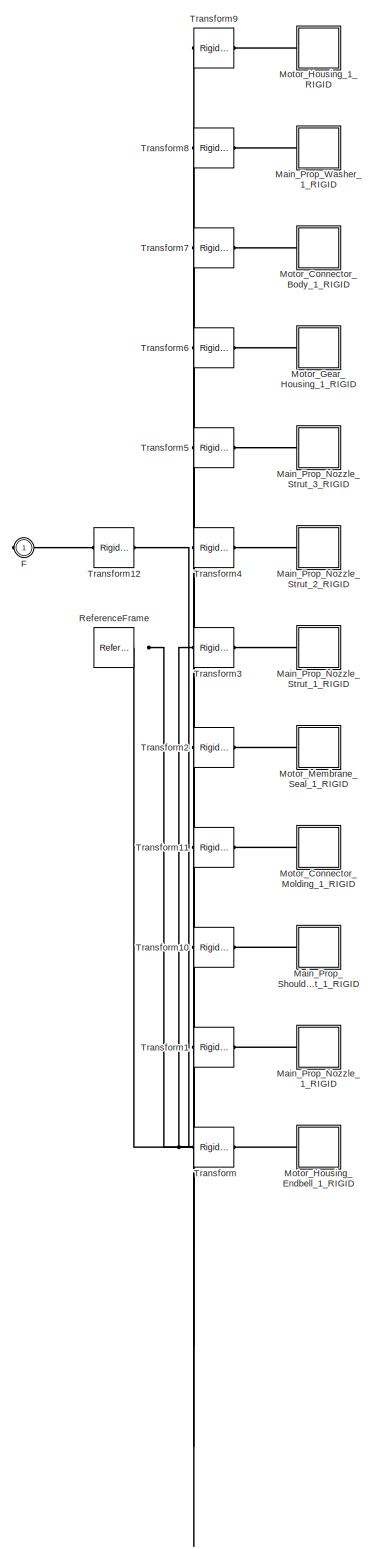
[diagram: AUVBodyAUV_1_RIGID/MainHullAUVBody_AUV_1_RIGID/PortMotorMainHull_AUVBody_AUV_1_RIGID - part 1/1, most of the canvas]
BLOCK [SubSystem] AUVBodyAUV_1_RIGID/MainHullAUVBody_AUV_1_RIGID/PortMotorMainHull_AUVBody_AUV_1_RIGID
  Ports = [0, 0, 0, 0, 0, 0, 1]
  RequestExecContextInheritance = off
BLOCK [PMIOPort] AUVBodyAUV_1_RIGID/MainHullAUVBody_AUV_1_RIGID/PortMotorMainHull_AUVBody_AUV_1_RIGID/F
  Side = Right
BLOCK [SubSystem] AUVBodyAUV_1_RIGID/MainHullAUVBody_AUV_1_RIGID/PortMotorMainHull_AUVBody_AUV_1_RIGID/Main_Prop_Nozzle_1_RIGID
  Ports = [0, 0, 0, 0, 0, 1]
  RequestExecContextInheritance = off
BLOCK [PMIOPort] AUVBodyAUV_1_RIGID/MainHullAUVBody_AUV_1_RIGID/PortMotorMainHull_AUVBody_AUV_1_RIGID/Main_Prop_Nozzle_1_RIGID/F
  Side = Left
BLOCK [Reference] AUVBodyAUV_1_RIGID/MainHullAUVBody_AUV_1_RIGID/PortMotorMainHull_AUVBody_AUV_1_RIGID/Main_Prop_Nozzle_1_RIGID/ReferenceFrame  REF=sm_lib/Frames and
Transforms/Reference
Frame
  Ports = [0, 0, 0, 0, 0, 0, 1]
  SourceBlock = sm_lib/Frames and\nTransforms/Reference\nFrame
  SourceProductBaseCode = MS
  SourceType = Reference\nFrame
BLOCK [Reference] AUVBodyAUV_1_RIGID/MainHullAUVBody_AUV_1_RIGID/PortMotorMainHull_AUVBody_AUV_1_RIGID/Main_Prop_Nozzle_1_RIGID/Solid  REF=sm_lib/Body Elements/File Solid
  Ports = [0, 0, 0, 0, 0, 0, 1]
  SourceBlock = sm_lib/Body Elements/File Solid
  SourceProductBaseCode = MS
  SourceType = File Solid
BLOCK [SubSystem] AUVBodyAUV_1_RIGID/MainHullAUVBody_AUV_1_RIGID/PortMotorMainHull_AUVBody_AUV_1_RIGID/Main_Prop_Nozzle_Strut_1_RIGID
  Ports = [0, 0, 0, 0, 0, 1]
  RequestExecContextInheritance = off
BLOCK [PMIOPort] AUVBodyAUV_1_RIGID/MainHullAUVBody_AUV_1_RIGID/PortMotorMainHull_AUVBody_AUV_1_RIGID/Main_Prop_Nozzle_Strut_1_RIGID/F
  Side = Left
BLOCK [Reference] AUVBodyAUV_1_RIGID/MainHullAUVBody_AUV_1_RIGID/PortMotorMainHull_AUVBody_AUV_1_RIGID/Main_Prop_Nozzle_Strut_1_RIGID/ReferenceFrame  REF=sm_lib/Frames and
Transforms/Reference
Frame
  Ports = [0, 0, 0, 0, 0, 0, 1]
  SourceBlock = sm_lib/Frames and\nTransforms/Reference\nFrame
  SourceProductBaseCode = MS
  SourceType = Reference\nFrame
BLOCK [Reference] AUVBodyAUV_1_RIGID/MainHullAUVBody_AUV_1_RIGID/PortMotorMainHull_AUVBody_AUV_1_RIGID/Main_Prop_Nozzle_Strut_1_RIGID/Solid  REF=sm_lib/Body Elements/File Solid
  Ports = [0, 0, 0, 0, 0, 0, 1]
  SourceBlock = sm_lib/Body Elements/File Solid
  SourceProductBaseCode = MS
  SourceType = File Solid
BLOCK [SubSystem] AUVBodyAUV_1_RIGID/MainHullAUVBody_AUV_1_RIGID/PortMotorMainHull_AUVBody_AUV_1_RIGID/Main_Prop_Nozzle_Strut_2_RIGID
  Ports = [0, 0, 0, 0, 0, 1]
  RequestExecContextInheritance = off
BLOCK [PMIOPort] AUVBodyAUV_1_RIGID/MainHullAUVBody_AUV_1_RIGID/PortMotorMainHull_AUVBody_AUV_1_RIGID/Main_Prop_Nozzle_Strut_2_RIGID/F
  Side = Left
BLOCK [Reference] AUVBodyAUV_1_RIGID/MainHullAUVBody_AUV_1_RIGID/PortMotorMainHull_AUVBody_AUV_1_RIGID/Main_Prop_Nozzle_Strut_2_RIGID/ReferenceFrame  REF=sm_lib/Frames and
Transforms/Reference
Frame
  Ports = [0, 0, 0, 0, 0, 0, 1]
  SourceBlock = sm_lib/Frames and\nTransforms/Reference\nFrame
  SourceProductBaseCode = MS
  SourceType = Reference\nFrame
BLOCK [Reference] AUVBodyAUV_1_RIGID/MainHullAUVBody_AUV_1_RIGID/PortMotorMainHull_AUVBody_AUV_1_RIGID/Main_Prop_Nozzle_Strut_2_RIGID/Solid  REF=sm_lib/Body Elements/File Solid
  Ports = [0, 0, 0, 0, 0, 0, 1]
  SourceBlock = sm_lib/Body Elements/File Solid
  SourceProductBaseCode = MS
  SourceType = File Solid
BLOCK [SubSystem] AUVBodyAUV_1_RIGID/MainHullAUVBody_AUV_1_RIGID/PortMotorMainHull_AUVBody_AUV_1_RIGID/Main_Prop_Nozzle_Strut_3_RIGID
  Ports = [0, 0, 0, 0, 0, 1]
  RequestExecContextInheritance = off
BLOCK [PMIOPort] AUVBodyAUV_1_RIGID/MainHullAUVBody_AUV_1_RIGID/PortMotorMainHull_AUVBody_AUV_1_RIGID/Main_Prop_Nozzle_Strut_3_RIGID/F
  Side = Left
BLOCK [Reference] AUVBodyAUV_1_RIGID/MainHullAUVBody_AUV_1_RIGID/PortMotorMainHull_AUVBody_AUV_1_RIGID/Main_Prop_Nozzle_Strut_3_RIGID/ReferenceFrame  REF=sm_lib/Frames and
Transforms/Reference
Frame
  Ports = [0, 0, 0, 0, 0, 0, 1]
  SourceBlock = sm_lib/Frames and\nTransforms/Reference\nFrame
  SourceProductBaseCode = MS
  SourceType = Reference\nFrame
BLOCK [Reference] AUVBodyAUV_1_RIGID/MainHullAUVBody_AUV_1_RIGID/PortMotorMainHull_AUVBody_AUV_1_RIGID/Main_Prop_Nozzle_Strut_3_RIGID/Solid  REF=sm_lib/Body Elements/File Solid
  Ports = [0, 0, 0, 0, 0, 0, 1]
  SourceBlock = sm_lib/Body Elements/File Solid
  SourceProductBaseCode = MS
  SourceType = File Solid
BLOCK [SubSystem] AUVBodyAUV_1_RIGID/MainHullAUVBody_AUV_1_RIGID/PortMotorMainHull_AUVBody_AUV_1_RIGID/Main_Prop_Shoulder_Bolt_1_RIGID
  Ports = [0, 0, 0, 0, 0, 1]
  RequestExecContextInheritance = off
BLOCK [PMIOPort] AUVBodyAUV_1_RIGID/MainHullAUVBody_AUV_1_RIGID/PortMotorMainHull_AUVBody_AUV_1_RIGID/Main_Prop_Shoulder_Bolt_1_RIGID/F
  Side = Left
BLOCK [Reference] AUVBodyAUV_1_RIGID/MainHullAUVBody_AUV_1_RIGID/PortMotorMainHull_AUVBody_AUV_1_RIGID/Main_Prop_Shoulder_Bolt_1_RIGID/ReferenceFrame  REF=sm_lib/Frames and
Transforms/Reference
Frame
  Ports = [0, 0, 0, 0, 0, 0, 1]
  SourceBlock = sm_lib/Frames and\nTransforms/Reference\nFrame
  SourceProductBaseCode = MS
  SourceType = Reference\nFrame
BLOCK [Reference] AUVBodyAUV_1_RIGID/MainHullAUVBody_AUV_1_RIGID/PortMotorMainHull_AUVBody_AUV_1_RIGID/Main_Prop_Shoulder_Bolt_1_RIGID/Solid  REF=sm_lib/Body Elements/File Solid
  Ports = [0, 0, 0, 0, 0, 0, 1]
  SourceBlock = sm_lib/Body Elements/File Solid
  SourceProductBaseCode = MS
  SourceType = File Solid
BLOCK [SubSystem] AUVBodyAUV_1_RIGID/MainHullAUVBody_AUV_1_RIGID/PortMotorMainHull_AUVBody_AUV_1_RIGID/Main_Prop_Washer_1_RIGID
  Ports = [0, 0, 0, 0, 0, 1]
  RequestExecContextInheritance = off
BLOCK [PMIOPort] AUVBodyAUV_1_RIGID/MainHullAUVBody_AUV_1_RIGID/PortMotorMainHull_AUVBody_AUV_1_RIGID/Main_Prop_Washer_1_RIGID/F
  Side = Left
BLOCK [Reference] AUVBodyAUV_1_RIGID/MainHullAUVBody_AUV_1_RIGID/PortMotorMainHull_AUVBody_AUV_1_RIGID/Main_Prop_Washer_1_RIGID/ReferenceFrame  REF=sm_lib/Frames and
Transforms/Reference
Frame
  Ports = [0, 0, 0, 0, 0, 0, 1]
  SourceBlock = sm_lib/Frames and\nTransforms/Reference\nFrame
  SourceProductBaseCode = MS
  SourceType = Reference\nFrame
BLOCK [Reference] AUVBodyAUV_1_RIGID/MainHullAUVBody_AUV_1_RIGID/PortMotorMainHull_AUVBody_AUV_1_RIGID/Main_Prop_Washer_1_RIGID/Solid  REF=sm_lib/Body Elements/File Solid
  Ports = [0, 0, 0, 0, 0, 0, 1]
  SourceBlock = sm_lib/Body Elements/File Solid
  SourceProductBaseCode = MS
  SourceType = File Solid
BLOCK [SubSystem] AUVBodyAUV_1_RIGID/MainHullAUVBody_AUV_1_RIGID/PortMotorMainHull_AUVBody_AUV_1_RIGID/Motor_Connector_Body_1_RIGID
  Ports = [0, 0, 0, 0, 0, 1]
  RequestExecContextInheritance = off
BLOCK [PMIOPort] AUVBodyAUV_1_RIGID/MainHullAUVBody_AUV_1_RIGID/PortMotorMainHull_AUVBody_AUV_1_RIGID/Motor_Connector_Body_1_RIGID/F
  Side = Left
BLOCK [Reference] AUVBodyAUV_1_RIGID/MainHullAUVBody_AUV_1_RIGID/PortMotorMainHull_AUVBody_AUV_1_RIGID/Motor_Connector_Body_1_RIGID/ReferenceFrame  REF=sm_lib/Frames and
Transforms/Reference
Frame
  Ports = [0, 0, 0, 0, 0, 0, 1]
  SourceBlock = sm_lib/Frames and\nTransforms/Reference\nFrame
  SourceProductBaseCode = MS
  SourceType = Reference\nFrame
BLOCK [Reference] AUVBodyAUV_1_RIGID/MainHullAUVBody_AUV_1_RIGID/PortMotorMainHull_AUVBody_AUV_1_RIGID/Motor_Connector_Body_1_RIGID/Solid  REF=sm_lib/Body Elements/File Solid
  Ports = [0, 0, 0, 0, 0, 0, 1]
  SourceBlock = sm_lib/Body Elements/File Solid
  SourceProductBaseCode = MS
  SourceType = File Solid
BLOCK [SubSystem] AUVBodyAUV_1_RIGID/MainHullAUVBody_AUV_1_RIGID/PortMotorMainHull_AUVBody_AUV_1_RIGID/Motor_Connector_Molding_1_RIGID
  Ports = [0, 0, 0, 0, 0, 1]
  RequestExecContextInheritance = off
BLOCK [PMIOPort] AUVBodyAUV_1_RIGID/MainHullAUVBody_AUV_1_RIGID/PortMotorMainHull_AUVBody_AUV_1_RIGID/Motor_Connector_Molding_1_RIGID/F
  Side = Left
BLOCK [Reference] AUVBodyAUV_1_RIGID/MainHullAUVBody_AUV_1_RIGID/PortMotorMainHull_AUVBody_AUV_1_RIGID/Motor_Connector_Molding_1_RIGID/ReferenceFrame  REF=sm_lib/Frames and
Transforms/Reference
Frame
  Ports = [0, 0, 0, 0, 0, 0, 1]
  SourceBlock = sm_lib/Frames and\nTransforms/Reference\nFrame
  SourceProductBaseCode = MS
  SourceType = Reference\nFrame
BLOCK [Reference] AUVBodyAUV_1_RIGID/MainHullAUVBody_AUV_1_RIGID/PortMotorMainHull_AUVBody_AUV_1_RIGID/Motor_Connector_Molding_1_RIGID/Solid  REF=sm_lib/Body Elements/File Solid
  Ports = [0, 0, 0, 0, 0, 0, 1]
  SourceBlock = sm_lib/Body Elements/File Solid
  SourceProductBaseCode = MS
  SourceType = File Solid
BLOCK [SubSystem] AUVBodyAUV_1_RIGID/MainHullAUVBody_AUV_1_RIGID/PortMotorMainHull_AUVBody_AUV_1_RIGID/Motor_Gear_Housing_1_RIGID
  Ports = [0, 0, 0, 0, 0, 1]
  RequestExecContextInheritance = off
BLOCK [PMIOPort] AUVBodyAUV_1_RIGID/MainHullAUVBody_AUV_1_RIGID/PortMotorMainHull_AUVBody_AUV_1_RIGID/Motor_Gear_Housing_1_RIGID/F
  Side = Left
BLOCK [Reference] AUVBodyAUV_1_RIGID/MainHullAUVBody_AUV_1_RIGID/PortMotorMainHull_AUVBody_AUV_1_RIGID/Motor_Gear_Housing_1_RIGID/ReferenceFrame  REF=sm_lib/Frames and
Transforms/Reference
Frame
  Ports = [0, 0, 0, 0, 0, 0, 1]
  SourceBlock = sm_lib/Frames and\nTransforms/Reference\nFrame
  SourceProductBaseCode = MS
  SourceType = Reference\nFrame
BLOCK [Reference] AUVBodyAUV_1_RIGID/MainHullAUVBody_AUV_1_RIGID/PortMotorMainHull_AUVBody_AUV_1_RIGID/Motor_Gear_Housing_1_RIGID/Solid  REF=sm_lib/Body Elements/File Solid
  Ports = [0, 0, 0, 0, 0, 0, 1]
  SourceBlock = sm_lib/Body Elements/File Solid
  SourceProductBaseCode = MS
  SourceType = File Solid
BLOCK [SubSystem] AUVBodyAUV_1_RIGID/MainHullAUVBody_AUV_1_RIGID/PortMotorMainHull_AUVBody_AUV_1_RIGID/Motor_Housing_1_RIGID
  Ports = [0, 0, 0, 0, 0, 1]
  RequestExecContextInheritance = off
BLOCK [PMIOPort] AUVBodyAUV_1_RIGID/MainHullAUVBody_AUV_1_RIGID/PortMotorMainHull_AUVBody_AUV_1_RIGID/Motor_Housing_1_RIGID/F
  Side = Left
BLOCK [Reference] AUVBodyAUV_1_RIGID/MainHullAUVBody_AUV_1_RIGID/PortMotorMainHull_AUVBody_AUV_1_RIGID/Motor_Housing_1_RIGID/ReferenceFrame  REF=sm_lib/Frames and
Transforms/Reference
Frame
  Ports = [0, 0, 0, 0, 0, 0, 1]
  SourceBlock = sm_lib/Frames and\nTransforms/Reference\nFrame
  SourceProductBaseCode = MS
  SourceType = Reference\nFrame
BLOCK [Reference] AUVBodyAUV_1_RIGID/MainHullAUVBody_AUV_1_RIGID/PortMotorMainHull_AUVBody_AUV_1_RIGID/Motor_Housing_1_RIGID/Solid  REF=sm_lib/Body Elements/File Solid
  Ports = [0, 0, 0, 0, 0, 0, 1]
  SourceBlock = sm_lib/Body Elements/File Solid
  SourceProductBaseCode = MS
  SourceType = File Solid
BLOCK [SubSystem] AUVBodyAUV_1_RIGID/MainHullAUVBody_AUV_1_RIGID/PortMotorMainHull_AUVBody_AUV_1_RIGID/Motor_Housing_Endbell_1_RIGID
  Ports = [0, 0, 0, 0, 0, 1]
  RequestExecContextInheritance = off
BLOCK [PMIOPort] AUVBodyAUV_1_RIGID/MainHullAUVBody_AUV_1_RIGID/PortMotorMainHull_AUVBody_AUV_1_RIGID/Motor_Housing_Endbell_1_RIGID/F
  Side = Left
BLOCK [Reference] AUVBodyAUV_1_RIGID/MainHullAUVBody_AUV_1_RIGID/PortMotorMainHull_AUVBody_AUV_1_RIGID/Motor_Housing_Endbell_1_RIGID/ReferenceFrame  REF=sm_lib/Frames and
Transforms/Reference
Frame
  Ports = [0, 0, 0, 0, 0, 0, 1]
  SourceBlock = sm_lib/Frames and\nTransforms/Reference\nFrame
  SourceProductBaseCode = MS
  SourceType = Reference\nFrame
BLOCK [Reference] AUVBodyAUV_1_RIGID/MainHullAUVBody_AUV_1_RIGID/PortMotorMainHull_AUVBody_AUV_1_RIGID/Motor_Housing_Endbell_1_RIGID/Solid  REF=sm_lib/Body Elements/File Solid
  Ports = [0, 0, 0, 0, 0, 0, 1]
  SourceBlock = sm_lib/Body Elements/File Solid
  SourceProductBaseCode = MS
  SourceType = File Solid
BLOCK [SubSystem] AUVBodyAUV_1_RIGID/MainHullAUVBody_AUV_1_RIGID/PortMotorMainHull_AUVBody_AUV_1_RIGID/Motor_Membrane_Seal_1_RIGID
  Ports = [0, 0, 0, 0, 0, 1]
  RequestExecContextInheritance = off
BLOCK [PMIOPort] AUVBodyAUV_1_RIGID/MainHullAUVBody_AUV_1_RIGID/PortMotorMainHull_AUVBody_AUV_1_RIGID/Motor_Membrane_Seal_1_RIGID/F
  Side = Left
BLOCK [Reference] AUVBodyAUV_1_RIGID/MainHullAUVBody_AUV_1_RIGID/PortMotorMainHull_AUVBody_AUV_1_RIGID/Motor_Membrane_Seal_1_RIGID/ReferenceFrame  REF=sm_lib/Frames and
Transforms/Reference
Frame
  Ports = [0, 0, 0, 0, 0, 0, 1]
  SourceBlock = sm_lib/Frames and\nTransforms/Reference\nFrame
  SourceProductBaseCode = MS
  SourceType = Reference\nFrame
BLOCK [Reference] AUVBodyAUV_1_RIGID/MainHullAUVBody_AUV_1_RIGID/PortMotorMainHull_AUVBody_AUV_1_RIGID/Motor_Membrane_Seal_1_RIGID/Solid  REF=sm_lib/Body Elements/File Solid
  Ports = [0, 0, 0, 0, 0, 0, 1]
  SourceBlock = sm_lib/Body Elements/File Solid
  SourceProductBaseCode = MS
  SourceType = File Solid
BLOCK [Reference] AUVBodyAUV_1_RIGID/MainHullAUVBody_AUV_1_RIGID/PortMotorMainHull_AUVBody_AUV_1_RIGID/ReferenceFrame  REF=sm_lib/Frames and
Transforms/Reference
Frame
  Ports = [0, 0, 0, 0, 0, 0, 1]
  SourceBlock = sm_lib/Frames and\nTransforms/Reference\nFrame
  SourceProductBaseCode = MS
  SourceType = Reference\nFrame
BLOCK [Reference] AUVBodyAUV_1_RIGID/MainHullAUVBody_AUV_1_RIGID/PortMotorMainHull_AUVBody_AUV_1_RIGID/Transform  REF=sm_lib/Frames and
Transforms/Rigid
Transform
  Ports = [0, 0, 0, 0, 0, 1, 1]
  SourceBlock = sm_lib/Frames and\nTransforms/Rigid\nTransform
  SourceProductBaseCode = MS
  SourceType = Rigid\nTransform
BLOCK [Reference] AUVBodyAUV_1_RIGID/MainHullAUVBody_AUV_1_RIGID/PortMotorMainHull_AUVBody_AUV_1_RIGID/Transform1  REF=sm_lib/Frames and
Transforms/Rigid
Transform
  Ports = [0, 0, 0, 0, 0, 1, 1]
  SourceBlock = sm_lib/Frames and\nTransforms/Rigid\nTransform
  SourceProductBaseCode = MS
  SourceType = Rigid\nTransform
BLOCK [Reference] AUVBodyAUV_1_RIGID/MainHullAUVBody_AUV_1_RIGID/PortMotorMainHull_AUVBody_AUV_1_RIGID/Transform10  REF=sm_lib/Frames and
Transforms/Rigid
Transform
  Ports = [0, 0, 0, 0, 0, 1, 1]
  SourceBlock = sm_lib/Frames and\nTransforms/Rigid\nTransform
  SourceProductBaseCode = MS
  SourceType = Rigid\nTransform
BLOCK [Reference] AUVBodyAUV_1_RIGID/MainHullAUVBody_AUV_1_RIGID/PortMotorMainHull_AUVBody_AUV_1_RIGID/Transform11  REF=sm_lib/Frames and
Transforms/Rigid
Transform
  Ports = [0, 0, 0, 0, 0, 1, 1]
  SourceBlock = sm_lib/Frames and\nTransforms/Rigid\nTransform
  SourceProductBaseCode = MS
  SourceType = Rigid\nTransform
BLOCK [Reference] AUVBodyAUV_1_RIGID/MainHullAUVBody_AUV_1_RIGID/PortMotorMainHull_AUVBody_AUV_1_RIGID/Transform12  REF=sm_lib/Frames and
Transforms/Rigid
Transform
  Ports = [0, 0, 0, 0, 0, 1, 1]
  SourceBlock = sm_lib/Frames and\nTransforms/Rigid\nTransform
  SourceProductBaseCode = MS
  SourceType = Rigid\nTransform
BLOCK [Reference] AUVBodyAUV_1_RIGID/MainHullAUVBody_AUV_1_RIGID/PortMotorMainHull_AUVBody_AUV_1_RIGID/Transform2  REF=sm_lib/Frames and
Transforms/Rigid
Transform
  Ports = [0, 0, 0, 0, 0, 1, 1]
  SourceBlock = sm_lib/Frames and\nTransforms/Rigid\nTransform
  SourceProductBaseCode = MS
  SourceType = Rigid\nTransform
BLOCK [Reference] AUVBodyAUV_1_RIGID/MainHullAUVBody_AUV_1_RIGID/PortMotorMainHull_AUVBody_AUV_1_RIGID/Transform3  REF=sm_lib/Frames and
Transforms/Rigid
Transform
  Ports = [0, 0, 0, 0, 0, 1, 1]
  SourceBlock = sm_lib/Frames and\nTransforms/Rigid\nTransform
  SourceProductBaseCode = MS
  SourceType = Rigid\nTransform
BLOCK [Reference] AUVBodyAUV_1_RIGID/MainHullAUVBody_AUV_1_RIGID/PortMotorMainHull_AUVBody_AUV_1_RIGID/Transform4  REF=sm_lib/Frames and
Transforms/Rigid
Transform
  Ports = [0, 0, 0, 0, 0, 1, 1]
  SourceBlock = sm_lib/Frames and\nTransforms/Rigid\nTransform
  SourceProductBaseCode = MS
  SourceType = Rigid\nTransform
BLOCK [Reference] AUVBodyAUV_1_RIGID/MainHullAUVBody_AUV_1_RIGID/PortMotorMainHull_AUVBody_AUV_1_RIGID/Transform5  REF=sm_lib/Frames and
Transforms/Rigid
Transform
  Ports = [0, 0, 0, 0, 0, 1, 1]
  SourceBlock = sm_lib/Frames and\nTransforms/Rigid\nTransform
  SourceProductBaseCode = MS
  SourceType = Rigid\nTransform
BLOCK [Reference] AUVBodyAUV_1_RIGID/MainHullAUVBody_AUV_1_RIGID/PortMotorMainHull_AUVBody_AUV_1_RIGID/Transform6  REF=sm_lib/Frames and
Transforms/Rigid
Transform
  Ports = [0, 0, 0, 0, 0, 1, 1]
  SourceBlock = sm_lib/Frames and\nTransforms/Rigid\nTransform
  SourceProductBaseCode = MS
  SourceType = Rigid\nTransform
BLOCK [Reference] AUVBodyAUV_1_RIGID/MainHullAUVBody_AUV_1_RIGID/PortMotorMainHull_AUVBody_AUV_1_RIGID/Transform7  REF=sm_lib/Frames and
Transforms/Rigid
Transform
  Ports = [0, 0, 0, 0, 0, 1, 1]
  SourceBlock = sm_lib/Frames and\nTransforms/Rigid\nTransform
  SourceProductBaseCode = MS
  SourceType = Rigid\nTransform
BLOCK [Reference] AUVBodyAUV_1_RIGID/MainHullAUVBody_AUV_1_RIGID/PortMotorMainHull_AUVBody_AUV_1_RIGID/Transform8  REF=sm_lib/Frames and
Transforms/Rigid
Transform
  Ports = [0, 0, 0, 0, 0, 1, 1]
  SourceBlock = sm_lib/Frames and\nTransforms/Rigid\nTransform
  SourceProductBaseCode = MS
  SourceType = Rigid\nTransform
BLOCK [Reference] AUVBodyAUV_1_RIGID/MainHullAUVBody_AUV_1_RIGID/PortMotorMainHull_AUVBody_AUV_1_RIGID/Transform9  REF=sm_lib/Frames and
Transforms/Rigid
Transform
  Ports = [0, 0, 0, 0, 0, 1, 1]
  SourceBlock = sm_lib/Frames and\nTransforms/Rigid\nTransform
  SourceProductBaseCode = MS
  SourceType = Rigid\nTransform
BLOCK [Reference] AUVBodyAUV_1_RIGID/MainHullAUVBody_AUV_1_RIGID/ReferenceFrame  REF=sm_lib/Frames and
Transforms/Reference
Frame
  Ports = [0, 0, 0, 0, 0, 0, 1]
  SourceBlock = sm_lib/Frames and\nTransforms/Reference\nFrame
  SourceProductBaseCode = MS
  SourceType = Reference\nFrame
BLOCK [SubSystem] AUVBodyAUV_1_RIGID/MainHullAUVBody_AUV_1_RIGID/Side_Scanner_Sonar_1_RIGID
  Ports = [0, 0, 0, 0, 0, 1]
  RequestExecContextInheritance = off
BLOCK [PMIOPort] AUVBodyAUV_1_RIGID/MainHullAUVBody_AUV_1_RIGID/Side_Scanner_Sonar_1_RIGID/F
  Side = Left
BLOCK [Reference] AUVBodyAUV_1_RIGID/MainHullAUVBody_AUV_1_RIGID/Side_Scanner_Sonar_1_RIGID/ReferenceFrame  REF=sm_lib/Frames and
Transforms/Reference
Frame
  Ports = [0, 0, 0, 0, 0, 0, 1]
  SourceBlock = sm_lib/Frames and\nTransforms/Reference\nFrame
  SourceProductBaseCode = MS
  SourceType = Reference\nFrame
BLOCK [Reference] AUVBodyAUV_1_RIGID/MainHullAUVBody_AUV_1_RIGID/Side_Scanner_Sonar_1_RIGID/Solid  REF=sm_lib/Body Elements/File Solid
  Ports = [0, 0, 0, 0, 0, 0, 1]
  SourceBlock = sm_lib/Body Elements/File Solid
  SourceProductBaseCode = MS
  SourceType = File Solid
BLOCK [SubSystem] AUVBodyAUV_1_RIGID/MainHullAUVBody_AUV_1_RIGID/Side_Scanner_Sonar_2_RIGID
  Ports = [0, 0, 0, 0, 0, 1]
  RequestExecContextInheritance = off
BLOCK [PMIOPort] AUVBodyAUV_1_RIGID/MainHullAUVBody_AUV_1_RIGID/Side_Scanner_Sonar_2_RIGID/F
  Side = Left
BLOCK [Reference] AUVBodyAUV_1_RIGID/MainHullAUVBody_AUV_1_RIGID/Side_Scanner_Sonar_2_RIGID/ReferenceFrame  REF=sm_lib/Frames and
Transforms/Reference
Frame
  Ports = [0, 0, 0, 0, 0, 0, 1]
  SourceBlock = sm_lib/Frames and\nTransforms/Reference\nFrame
  SourceProductBaseCode = MS
  SourceType = Reference\nFrame
BLOCK [Reference] AUVBodyAUV_1_RIGID/MainHullAUVBody_AUV_1_RIGID/Side_Scanner_Sonar_2_RIGID/Solid  REF=sm_lib/Body Elements/File Solid
  Ports = [0, 0, 0, 0, 0, 0, 1]
  SourceBlock = sm_lib/Body Elements/File Solid
  SourceProductBaseCode = MS
  SourceType = File Solid
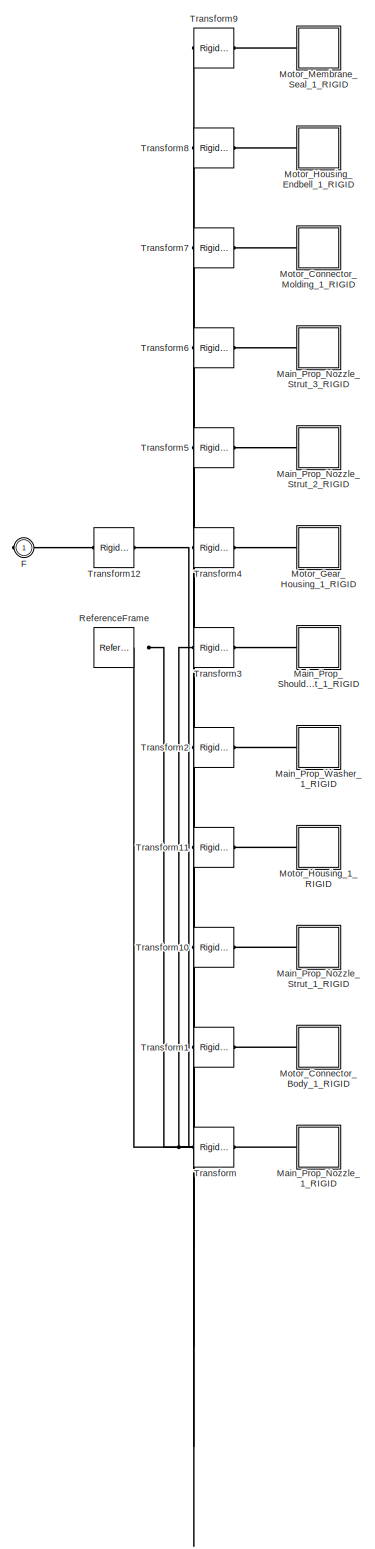
[diagram: AUVBodyAUV_1_RIGID/MainHullAUVBody_AUV_1_RIGID/StarboardMotorMainHull_AUVBody_AUV_1_RIGID - part 1/1, most of the canvas]
BLOCK [SubSystem] AUVBodyAUV_1_RIGID/MainHullAUVBody_AUV_1_RIGID/StarboardMotorMainHull_AUVBody_AUV_1_RIGID
  Ports = [0, 0, 0, 0, 0, 0, 1]
  RequestExecContextInheritance = off
BLOCK [PMIOPort] AUVBodyAUV_1_RIGID/MainHullAUVBody_AUV_1_RIGID/StarboardMotorMainHull_AUVBody_AUV_1_RIGID/F
  Side = Right
BLOCK [SubSystem] AUVBodyAUV_1_RIGID/MainHullAUVBody_AUV_1_RIGID/StarboardMotorMainHull_AUVBody_AUV_1_RIGID/Main_Prop_Nozzle_1_RIGID
  Ports = [0, 0, 0, 0, 0, 1]
  RequestExecContextInheritance = off
BLOCK [PMIOPort] AUVBodyAUV_1_RIGID/MainHullAUVBody_AUV_1_RIGID/StarboardMotorMainHull_AUVBody_AUV_1_RIGID/Main_Prop_Nozzle_1_RIGID/F
  Side = Left
BLOCK [Reference] AUVBodyAUV_1_RIGID/MainHullAUVBody_AUV_1_RIGID/StarboardMotorMainHull_AUVBody_AUV_1_RIGID/Main_Prop_Nozzle_1_RIGID/ReferenceFrame  REF=sm_lib/Frames and
Transforms/Reference
Frame
  Ports = [0, 0, 0, 0, 0, 0, 1]
  SourceBlock = sm_lib/Frames and\nTransforms/Reference\nFrame
  SourceProductBaseCode = MS
  SourceType = Reference\nFrame
BLOCK [Reference] AUVBodyAUV_1_RIGID/MainHullAUVBody_AUV_1_RIGID/StarboardMotorMainHull_AUVBody_AUV_1_RIGID/Main_Prop_Nozzle_1_RIGID/Solid  REF=sm_lib/Body Elements/File Solid
  Ports = [0, 0, 0, 0, 0, 0, 1]
  SourceBlock = sm_lib/Body Elements/File Solid
  SourceProductBaseCode = MS
  SourceType = File Solid
BLOCK [SubSystem] AUVBodyAUV_1_RIGID/MainHullAUVBody_AUV_1_RIGID/StarboardMotorMainHull_AUVBody_AUV_1_RIGID/Main_Prop_Nozzle_Strut_1_RIGID
  Ports = [0, 0, 0, 0, 0, 1]
  RequestExecContextInheritance = off
BLOCK [PMIOPort] AUVBodyAUV_1_RIGID/MainHullAUVBody_AUV_1_RIGID/StarboardMotorMainHull_AUVBody_AUV_1_RIGID/Main_Prop_Nozzle_Strut_1_RIGID/F
  Side = Left
BLOCK [Reference] AUVBodyAUV_1_RIGID/MainHullAUVBody_AUV_1_RIGID/StarboardMotorMainHull_AUVBody_AUV_1_RIGID/Main_Prop_Nozzle_Strut_1_RIGID/ReferenceFrame  REF=sm_lib/Frames and
Transforms/Reference
Frame
  Ports = [0, 0, 0, 0, 0, 0, 1]
  SourceBlock = sm_lib/Frames and\nTransforms/Reference\nFrame
  SourceProductBaseCode = MS
  SourceType = Reference\nFrame
BLOCK [Reference] AUVBodyAUV_1_RIGID/MainHullAUVBody_AUV_1_RIGID/StarboardMotorMainHull_AUVBody_AUV_1_RIGID/Main_Prop_Nozzle_Strut_1_RIGID/Solid  REF=sm_lib/Body Elements/File Solid
  Ports = [0, 0, 0, 0, 0, 0, 1]
  SourceBlock = sm_lib/Body Elements/File Solid
  SourceProductBaseCode = MS
  SourceType = File Solid
BLOCK [SubSystem] AUVBodyAUV_1_RIGID/MainHullAUVBody_AUV_1_RIGID/StarboardMotorMainHull_AUVBody_AUV_1_RIGID/Main_Prop_Nozzle_Strut_2_RIGID
  Ports = [0, 0, 0, 0, 0, 1]
  RequestExecContextInheritance = off
BLOCK [PMIOPort] AUVBodyAUV_1_RIGID/MainHullAUVBody_AUV_1_RIGID/StarboardMotorMainHull_AUVBody_AUV_1_RIGID/Main_Prop_Nozzle_Strut_2_RIGID/F
  Side = Left
BLOCK [Reference] AUVBodyAUV_1_RIGID/MainHullAUVBody_AUV_1_RIGID/StarboardMotorMainHull_AUVBody_AUV_1_RIGID/Main_Prop_Nozzle_Strut_2_RIGID/ReferenceFrame  REF=sm_lib/Frames and
Transforms/Reference
Frame
  Ports = [0, 0, 0, 0, 0, 0, 1]
  SourceBlock = sm_lib/Frames and\nTransforms/Reference\nFrame
  SourceProductBaseCode = MS
  SourceType = Reference\nFrame
BLOCK [Reference] AUVBodyAUV_1_RIGID/MainHullAUVBody_AUV_1_RIGID/StarboardMotorMainHull_AUVBody_AUV_1_RIGID/Main_Prop_Nozzle_Strut_2_RIGID/Solid  REF=sm_lib/Body Elements/File Solid
  Ports = [0, 0, 0, 0, 0, 0, 1]
  SourceBlock = sm_lib/Body Elements/File Solid
  SourceProductBaseCode = MS
  SourceType = File Solid
BLOCK [SubSystem] AUVBodyAUV_1_RIGID/MainHullAUVBody_AUV_1_RIGID/StarboardMotorMainHull_AUVBody_AUV_1_RIGID/Main_Prop_Nozzle_Strut_3_RIGID
  Ports = [0, 0, 0, 0, 0, 1]
  RequestExecContextInheritance = off
BLOCK [PMIOPort] AUVBodyAUV_1_RIGID/MainHullAUVBody_AUV_1_RIGID/StarboardMotorMainHull_AUVBody_AUV_1_RIGID/Main_Prop_Nozzle_Strut_3_RIGID/F
  Side = Left
BLOCK [Reference] AUVBodyAUV_1_RIGID/MainHullAUVBody_AUV_1_RIGID/StarboardMotorMainHull_AUVBody_AUV_1_RIGID/Main_Prop_Nozzle_Strut_3_RIGID/ReferenceFrame  REF=sm_lib/Frames and
Transforms/Reference
Frame
  Ports = [0, 0, 0, 0, 0, 0, 1]
  SourceBlock = sm_lib/Frames and\nTransforms/Reference\nFrame
  SourceProductBaseCode = MS
  SourceType = Reference\nFrame
BLOCK [Reference] AUVBodyAUV_1_RIGID/MainHullAUVBody_AUV_1_RIGID/StarboardMotorMainHull_AUVBody_AUV_1_RIGID/Main_Prop_Nozzle_Strut_3_RIGID/Solid  REF=sm_lib/Body Elements/File Solid
  Ports = [0, 0, 0, 0, 0, 0, 1]
  SourceBlock = sm_lib/Body Elements/File Solid
  SourceProductBaseCode = MS
  SourceType = File Solid
BLOCK [SubSystem] AUVBodyAUV_1_RIGID/MainHullAUVBody_AUV_1_RIGID/StarboardMotorMainHull_AUVBody_AUV_1_RIGID/Main_Prop_Shoulder_Bolt_1_RIGID
  Ports = [0, 0, 0, 0, 0, 1]
  RequestExecContextInheritance = off
BLOCK [PMIOPort] AUVBodyAUV_1_RIGID/MainHullAUVBody_AUV_1_RIGID/StarboardMotorMainHull_AUVBody_AUV_1_RIGID/Main_Prop_Shoulder_Bolt_1_RIGID/F
  Side = Left
BLOCK [Reference] AUVBodyAUV_1_RIGID/MainHullAUVBody_AUV_1_RIGID/StarboardMotorMainHull_AUVBody_AUV_1_RIGID/Main_Prop_Shoulder_Bolt_1_RIGID/ReferenceFrame  REF=sm_lib/Frames and
Transforms/Reference
Frame
  Ports = [0, 0, 0, 0, 0, 0, 1]
  SourceBlock = sm_lib/Frames and\nTransforms/Reference\nFrame
  SourceProductBaseCode = MS
  SourceType = Reference\nFrame
BLOCK [Reference] AUVBodyAUV_1_RIGID/MainHullAUVBody_AUV_1_RIGID/StarboardMotorMainHull_AUVBody_AUV_1_RIGID/Main_Prop_Shoulder_Bolt_1_RIGID/Solid  REF=sm_lib/Body Elements/File Solid
  Ports = [0, 0, 0, 0, 0, 0, 1]
  SourceBlock = sm_lib/Body Elements/File Solid
  SourceProductBaseCode = MS
  SourceType = File Solid
BLOCK [SubSystem] AUVBodyAUV_1_RIGID/MainHullAUVBody_AUV_1_RIGID/StarboardMotorMainHull_AUVBody_AUV_1_RIGID/Main_Prop_Washer_1_RIGID
  Ports = [0, 0, 0, 0, 0, 1]
  RequestExecContextInheritance = off
BLOCK [PMIOPort] AUVBodyAUV_1_RIGID/MainHullAUVBody_AUV_1_RIGID/StarboardMotorMainHull_AUVBody_AUV_1_RIGID/Main_Prop_Washer_1_RIGID/F
  Side = Left
BLOCK [Reference] AUVBodyAUV_1_RIGID/MainHullAUVBody_AUV_1_RIGID/StarboardMotorMainHull_AUVBody_AUV_1_RIGID/Main_Prop_Washer_1_RIGID/ReferenceFrame  REF=sm_lib/Frames and
Transforms/Reference
Frame
  Ports = [0, 0, 0, 0, 0, 0, 1]
  SourceBlock = sm_lib/Frames and\nTransforms/Reference\nFrame
  SourceProductBaseCode = MS
  SourceType = Reference\nFrame
BLOCK [Reference] AUVBodyAUV_1_RIGID/MainHullAUVBody_AUV_1_RIGID/StarboardMotorMainHull_AUVBody_AUV_1_RIGID/Main_Prop_Washer_1_RIGID/Solid  REF=sm_lib/Body Elements/File Solid
  Ports = [0, 0, 0, 0, 0, 0, 1]
  SourceBlock = sm_lib/Body Elements/File Solid
  SourceProductBaseCode = MS
  SourceType = File Solid
BLOCK [SubSystem] AUVBodyAUV_1_RIGID/MainHullAUVBody_AUV_1_RIGID/StarboardMotorMainHull_AUVBody_AUV_1_RIGID/Motor_Connector_Body_1_RIGID
  Ports = [0, 0, 0, 0, 0, 1]
  RequestExecContextInheritance = off
BLOCK [PMIOPort] AUVBodyAUV_1_RIGID/MainHullAUVBody_AUV_1_RIGID/StarboardMotorMainHull_AUVBody_AUV_1_RIGID/Motor_Connector_Body_1_RIGID/F
  Side = Left
BLOCK [Reference] AUVBodyAUV_1_RIGID/MainHullAUVBody_AUV_1_RIGID/StarboardMotorMainHull_AUVBody_AUV_1_RIGID/Motor_Connector_Body_1_RIGID/ReferenceFrame  REF=sm_lib/Frames and
Transforms/Reference
Frame
  Ports = [0, 0, 0, 0, 0, 0, 1]
  SourceBlock = sm_lib/Frames and\nTransforms/Reference\nFrame
  SourceProductBaseCode = MS
  SourceType = Reference\nFrame
BLOCK [Reference] AUVBodyAUV_1_RIGID/MainHullAUVBody_AUV_1_RIGID/StarboardMotorMainHull_AUVBody_AUV_1_RIGID/Motor_Connector_Body_1_RIGID/Solid  REF=sm_lib/Body Elements/File Solid
  Ports = [0, 0, 0, 0, 0, 0, 1]
  SourceBlock = sm_lib/Body Elements/File Solid
  SourceProductBaseCode = MS
  SourceType = File Solid
BLOCK [SubSystem] AUVBodyAUV_1_RIGID/MainHullAUVBody_AUV_1_RIGID/StarboardMotorMainHull_AUVBody_AUV_1_RIGID/Motor_Connector_Molding_1_RIGID
  Ports = [0, 0, 0, 0, 0, 1]
  RequestExecContextInheritance = off
BLOCK [PMIOPort] AUVBodyAUV_1_RIGID/MainHullAUVBody_AUV_1_RIGID/StarboardMotorMainHull_AUVBody_AUV_1_RIGID/Motor_Connector_Molding_1_RIGID/F
  Side = Left
BLOCK [Reference] AUVBodyAUV_1_RIGID/MainHullAUVBody_AUV_1_RIGID/StarboardMotorMainHull_AUVBody_AUV_1_RIGID/Motor_Connector_Molding_1_RIGID/ReferenceFrame  REF=sm_lib/Frames and
Transforms/Reference
Frame
  Ports = [0, 0, 0, 0, 0, 0, 1]
  SourceBlock = sm_lib/Frames and\nTransforms/Reference\nFrame
  SourceProductBaseCode = MS
  SourceType = Reference\nFrame
BLOCK [Reference] AUVBodyAUV_1_RIGID/MainHullAUVBody_AUV_1_RIGID/StarboardMotorMainHull_AUVBody_AUV_1_RIGID/Motor_Connector_Molding_1_RIGID/Solid  REF=sm_lib/Body Elements/File Solid
  Ports = [0, 0, 0, 0, 0, 0, 1]
  SourceBlock = sm_lib/Body Elements/File Solid
  SourceProductBaseCode = MS
  SourceType = File Solid
BLOCK [SubSystem] AUVBodyAUV_1_RIGID/MainHullAUVBody_AUV_1_RIGID/StarboardMotorMainHull_AUVBody_AUV_1_RIGID/Motor_Gear_Housing_1_RIGID
  Ports = [0, 0, 0, 0, 0, 1]
  RequestExecContextInheritance = off
BLOCK [PMIOPort] AUVBodyAUV_1_RIGID/MainHullAUVBody_AUV_1_RIGID/StarboardMotorMainHull_AUVBody_AUV_1_RIGID/Motor_Gear_Housing_1_RIGID/F
  Side = Left
BLOCK [Reference] AUVBodyAUV_1_RIGID/MainHullAUVBody_AUV_1_RIGID/StarboardMotorMainHull_AUVBody_AUV_1_RIGID/Motor_Gear_Housing_1_RIGID/ReferenceFrame  REF=sm_lib/Frames and
Transforms/Reference
Frame
  Ports = [0, 0, 0, 0, 0, 0, 1]
  SourceBlock = sm_lib/Frames and\nTransforms/Reference\nFrame
  SourceProductBaseCode = MS
  SourceType = Reference\nFrame
BLOCK [Reference] AUVBodyAUV_1_RIGID/MainHullAUVBody_AUV_1_RIGID/StarboardMotorMainHull_AUVBody_AUV_1_RIGID/Motor_Gear_Housing_1_RIGID/Solid  REF=sm_lib/Body Elements/File Solid
  Ports = [0, 0, 0, 0, 0, 0, 1]
  SourceBlock = sm_lib/Body Elements/File Solid
  SourceProductBaseCode = MS
  SourceType = File Solid
BLOCK [SubSystem] AUVBodyAUV_1_RIGID/MainHullAUVBody_AUV_1_RIGID/StarboardMotorMainHull_AUVBody_AUV_1_RIGID/Motor_Housing_1_RIGID
  Ports = [0, 0, 0, 0, 0, 1]
  RequestExecContextInheritance = off
BLOCK [PMIOPort] AUVBodyAUV_1_RIGID/MainHullAUVBody_AUV_1_RIGID/StarboardMotorMainHull_AUVBody_AUV_1_RIGID/Motor_Housing_1_RIGID/F
  Side = Left
BLOCK [Reference] AUVBodyAUV_1_RIGID/MainHullAUVBody_AUV_1_RIGID/StarboardMotorMainHull_AUVBody_AUV_1_RIGID/Motor_Housing_1_RIGID/ReferenceFrame  REF=sm_lib/Frames and
Transforms/Reference
Frame
  Ports = [0, 0, 0, 0, 0, 0, 1]
  SourceBlock = sm_lib/Frames and\nTransforms/Reference\nFrame
  SourceProductBaseCode = MS
  SourceType = Reference\nFrame
BLOCK [Reference] AUVBodyAUV_1_RIGID/MainHullAUVBody_AUV_1_RIGID/StarboardMotorMainHull_AUVBody_AUV_1_RIGID/Motor_Housing_1_RIGID/Solid  REF=sm_lib/Body Elements/File Solid
  Ports = [0, 0, 0, 0, 0, 0, 1]
  SourceBlock = sm_lib/Body Elements/File Solid
  SourceProductBaseCode = MS
  SourceType = File Solid
BLOCK [SubSystem] AUVBodyAUV_1_RIGID/MainHullAUVBody_AUV_1_RIGID/StarboardMotorMainHull_AUVBody_AUV_1_RIGID/Motor_Housing_Endbell_1_RIGID
  Ports = [0, 0, 0, 0, 0, 1]
  RequestExecContextInheritance = off
BLOCK [PMIOPort] AUVBodyAUV_1_RIGID/MainHullAUVBody_AUV_1_RIGID/StarboardMotorMainHull_AUVBody_AUV_1_RIGID/Motor_Housing_Endbell_1_RIGID/F
  Side = Left
BLOCK [Reference] AUVBodyAUV_1_RIGID/MainHullAUVBody_AUV_1_RIGID/StarboardMotorMainHull_AUVBody_AUV_1_RIGID/Motor_Housing_Endbell_1_RIGID/ReferenceFrame  REF=sm_lib/Frames and
Transforms/Reference
Frame
  Ports = [0, 0, 0, 0, 0, 0, 1]
  SourceBlock = sm_lib/Frames and\nTransforms/Reference\nFrame
  SourceProductBaseCode = MS
  SourceType = Reference\nFrame
BLOCK [Reference] AUVBodyAUV_1_RIGID/MainHullAUVBody_AUV_1_RIGID/StarboardMotorMainHull_AUVBody_AUV_1_RIGID/Motor_Housing_Endbell_1_RIGID/Solid  REF=sm_lib/Body Elements/File Solid
  Ports = [0, 0, 0, 0, 0, 0, 1]
  SourceBlock = sm_lib/Body Elements/File Solid
  SourceProductBaseCode = MS
  SourceType = File Solid
BLOCK [SubSystem] AUVBodyAUV_1_RIGID/MainHullAUVBody_AUV_1_RIGID/StarboardMotorMainHull_AUVBody_AUV_1_RIGID/Motor_Membrane_Seal_1_RIGID
  Ports = [0, 0, 0, 0, 0, 1]
  RequestExecContextInheritance = off
BLOCK [PMIOPort] AUVBodyAUV_1_RIGID/MainHullAUVBody_AUV_1_RIGID/StarboardMotorMainHull_AUVBody_AUV_1_RIGID/Motor_Membrane_Seal_1_RIGID/F
  Side = Left
BLOCK [Reference] AUVBodyAUV_1_RIGID/MainHullAUVBody_AUV_1_RIGID/StarboardMotorMainHull_AUVBody_AUV_1_RIGID/Motor_Membrane_Seal_1_RIGID/ReferenceFrame  REF=sm_lib/Frames and
Transforms/Reference
Frame
  Ports = [0, 0, 0, 0, 0, 0, 1]
  SourceBlock = sm_lib/Frames and\nTransforms/Reference\nFrame
  SourceProductBaseCode = MS
  SourceType = Reference\nFrame
BLOCK [Reference] AUVBodyAUV_1_RIGID/MainHullAUVBody_AUV_1_RIGID/StarboardMotorMainHull_AUVBody_AUV_1_RIGID/Motor_Membrane_Seal_1_RIGID/Solid  REF=sm_lib/Body Elements/File Solid
  Ports = [0, 0, 0, 0, 0, 0, 1]
  SourceBlock = sm_lib/Body Elements/File Solid
  SourceProductBaseCode = MS
  SourceType = File Solid
BLOCK [Reference] AUVBodyAUV_1_RIGID/MainHullAUVBody_AUV_1_RIGID/StarboardMotorMainHull_AUVBody_AUV_1_RIGID/ReferenceFrame  REF=sm_lib/Frames and
Transforms/Reference
Frame
  Ports = [0, 0, 0, 0, 0, 0, 1]
  SourceBlock = sm_lib/Frames and\nTransforms/Reference\nFrame
  SourceProductBaseCode = MS
  SourceType = Reference\nFrame
BLOCK [Reference] AUVBodyAUV_1_RIGID/MainHullAUVBody_AUV_1_RIGID/StarboardMotorMainHull_AUVBody_AUV_1_RIGID/Transform  REF=sm_lib/Frames and
Transforms/Rigid
Transform
  Ports = [0, 0, 0, 0, 0, 1, 1]
  SourceBlock = sm_lib/Frames and\nTransforms/Rigid\nTransform
  SourceProductBaseCode = MS
  SourceType = Rigid\nTransform
BLOCK [Reference] AUVBodyAUV_1_RIGID/MainHullAUVBody_AUV_1_RIGID/StarboardMotorMainHull_AUVBody_AUV_1_RIGID/Transform1  REF=sm_lib/Frames and
Transforms/Rigid
Transform
  Ports = [0, 0, 0, 0, 0, 1, 1]
  SourceBlock = sm_lib/Frames and\nTransforms/Rigid\nTransform
  SourceProductBaseCode = MS
  SourceType = Rigid\nTransform
BLOCK [Reference] AUVBodyAUV_1_RIGID/MainHullAUVBody_AUV_1_RIGID/StarboardMotorMainHull_AUVBody_AUV_1_RIGID/Transform10  REF=sm_lib/Frames and
Transforms/Rigid
Transform
  Ports = [0, 0, 0, 0, 0, 1, 1]
  SourceBlock = sm_lib/Frames and\nTransforms/Rigid\nTransform
  SourceProductBaseCode = MS
  SourceType = Rigid\nTransform
BLOCK [Reference] AUVBodyAUV_1_RIGID/MainHullAUVBody_AUV_1_RIGID/StarboardMotorMainHull_AUVBody_AUV_1_RIGID/Transform11  REF=sm_lib/Frames and
Transforms/Rigid
Transform
  Ports = [0, 0, 0, 0, 0, 1, 1]
  SourceBlock = sm_lib/Frames and\nTransforms/Rigid\nTransform
  SourceProductBaseCode = MS
  SourceType = Rigid\nTransform
BLOCK [Reference] AUVBodyAUV_1_RIGID/MainHullAUVBody_AUV_1_RIGID/StarboardMotorMainHull_AUVBody_AUV_1_RIGID/Transform12  REF=sm_lib/Frames and
Transforms/Rigid
Transform
  Ports = [0, 0, 0, 0, 0, 1, 1]
  SourceBlock = sm_lib/Frames and\nTransforms/Rigid\nTransform
  SourceProductBaseCode = MS
  SourceType = Rigid\nTransform
BLOCK [Reference] AUVBodyAUV_1_RIGID/MainHullAUVBody_AUV_1_RIGID/StarboardMotorMainHull_AUVBody_AUV_1_RIGID/Transform2  REF=sm_lib/Frames and
Transforms/Rigid
Transform
  Ports = [0, 0, 0, 0, 0, 1, 1]
  SourceBlock = sm_lib/Frames and\nTransforms/Rigid\nTransform
  SourceProductBaseCode = MS
  SourceType = Rigid\nTransform
BLOCK [Reference] AUVBodyAUV_1_RIGID/MainHullAUVBody_AUV_1_RIGID/StarboardMotorMainHull_AUVBody_AUV_1_RIGID/Transform3  REF=sm_lib/Frames and
Transforms/Rigid
Transform
  Ports = [0, 0, 0, 0, 0, 1, 1]
  SourceBlock = sm_lib/Frames and\nTransforms/Rigid\nTransform
  SourceProductBaseCode = MS
  SourceType = Rigid\nTransform
BLOCK [Reference] AUVBodyAUV_1_RIGID/MainHullAUVBody_AUV_1_RIGID/StarboardMotorMainHull_AUVBody_AUV_1_RIGID/Transform4  REF=sm_lib/Frames and
Transforms/Rigid
Transform
  Ports = [0, 0, 0, 0, 0, 1, 1]
  SourceBlock = sm_lib/Frames and\nTransforms/Rigid\nTransform
  SourceProductBaseCode = MS
  SourceType = Rigid\nTransform
BLOCK [Reference] AUVBodyAUV_1_RIGID/MainHullAUVBody_AUV_1_RIGID/StarboardMotorMainHull_AUVBody_AUV_1_RIGID/Transform5  REF=sm_lib/Frames and
Transforms/Rigid
Transform
  Ports = [0, 0, 0, 0, 0, 1, 1]
  SourceBlock = sm_lib/Frames and\nTransforms/Rigid\nTransform
  SourceProductBaseCode = MS
  SourceType = Rigid\nTransform
BLOCK [Reference] AUVBodyAUV_1_RIGID/MainHullAUVBody_AUV_1_RIGID/StarboardMotorMainHull_AUVBody_AUV_1_RIGID/Transform6  REF=sm_lib/Frames and
Transforms/Rigid
Transform
  Ports = [0, 0, 0, 0, 0, 1, 1]
  SourceBlock = sm_lib/Frames and\nTransforms/Rigid\nTransform
  SourceProductBaseCode = MS
  SourceType = Rigid\nTransform
BLOCK [Reference] AUVBodyAUV_1_RIGID/MainHullAUVBody_AUV_1_RIGID/StarboardMotorMainHull_AUVBody_AUV_1_RIGID/Transform7  REF=sm_lib/Frames and
Transforms/Rigid
Transform
  Ports = [0, 0, 0, 0, 0, 1, 1]
  SourceBlock = sm_lib/Frames and\nTransforms/Rigid\nTransform
  SourceProductBaseCode = MS
  SourceType = Rigid\nTransform
BLOCK [Reference] AUVBodyAUV_1_RIGID/MainHullAUVBody_AUV_1_RIGID/StarboardMotorMainHull_AUVBody_AUV_1_RIGID/Transform8  REF=sm_lib/Frames and
Transforms/Rigid
Transform
  Ports = [0, 0, 0, 0, 0, 1, 1]
  SourceBlock = sm_lib/Frames and\nTransforms/Rigid\nTransform
  SourceProductBaseCode = MS
  SourceType = Rigid\nTransform
BLOCK [Reference] AUVBodyAUV_1_RIGID/MainHullAUVBody_AUV_1_RIGID/StarboardMotorMainHull_AUVBody_AUV_1_RIGID/Transform9  REF=sm_lib/Frames and
Transforms/Rigid
Transform
  Ports = [0, 0, 0, 0, 0, 1, 1]
  SourceBlock = sm_lib/Frames and\nTransforms/Rigid\nTransform
  SourceProductBaseCode = MS
  SourceType = Rigid\nTransform
BLOCK [Reference] AUVBodyAUV_1_RIGID/MainHullAUVBody_AUV_1_RIGID/Transform  REF=sm_lib/Frames and
Transforms/Rigid
Transform
  Ports = [0, 0, 0, 0, 0, 1, 1]
  SourceBlock = sm_lib/Frames and\nTransforms/Rigid\nTransform
  SourceProductBaseCode = MS
  SourceType = Rigid\nTransform
BLOCK [Reference] AUVBodyAUV_1_RIGID/MainHullAUVBody_AUV_1_RIGID/Transform1  REF=sm_lib/Frames and
Transforms/Rigid
Transform
  Ports = [0, 0, 0, 0, 0, 1, 1]
  SourceBlock = sm_lib/Frames and\nTransforms/Rigid\nTransform
  SourceProductBaseCode = MS
  SourceType = Rigid\nTransform
BLOCK [Reference] AUVBodyAUV_1_RIGID/MainHullAUVBody_AUV_1_RIGID/Transform2  REF=sm_lib/Frames and
Transforms/Rigid
Transform
  Ports = [0, 0, 0, 0, 0, 1, 1]
  SourceBlock = sm_lib/Frames and\nTransforms/Rigid\nTransform
  SourceProductBaseCode = MS
  SourceType = Rigid\nTransform
BLOCK [Reference] AUVBodyAUV_1_RIGID/MainHullAUVBody_AUV_1_RIGID/Transform3  REF=sm_lib/Frames and
Transforms/Rigid
Transform
  Ports = [0, 0, 0, 0, 0, 1, 1]
  SourceBlock = sm_lib/Frames and\nTransforms/Rigid\nTransform
  SourceProductBaseCode = MS
  SourceType = Rigid\nTransform
BLOCK [Reference] AUVBodyAUV_1_RIGID/MainHullAUVBody_AUV_1_RIGID/Transform4  REF=sm_lib/Frames and
Transforms/Rigid
Transform
  Ports = [0, 0, 0, 0, 0, 1, 1]
  SourceBlock = sm_lib/Frames and\nTransforms/Rigid\nTransform
  SourceProductBaseCode = MS
  SourceType = Rigid\nTransform
BLOCK [Reference] AUVBodyAUV_1_RIGID/MainHullAUVBody_AUV_1_RIGID/Transform5  REF=sm_lib/Frames and
Transforms/Rigid
Transform
  Ports = [0, 0, 0, 0, 0, 1, 1]
  SourceBlock = sm_lib/Frames and\nTransforms/Rigid\nTransform
  SourceProductBaseCode = MS
  SourceType = Rigid\nTransform
BLOCK [Reference] AUVBodyAUV_1_RIGID/MainHullAUVBody_AUV_1_RIGID/Transform6  REF=sm_lib/Frames and
Transforms/Rigid
Transform
  Ports = [0, 0, 0, 0, 0, 1, 1]
  SourceBlock = sm_lib/Frames and\nTransforms/Rigid\nTransform
  SourceProductBaseCode = MS
  SourceType = Rigid\nTransform
BLOCK [Reference] AUVBodyAUV_1_RIGID/MainHullAUVBody_AUV_1_RIGID/Transform7  REF=sm_lib/Frames and
Transforms/Rigid
Transform
  Ports = [0, 0, 0, 0, 0, 1, 1]
  SourceBlock = sm_lib/Frames and\nTransforms/Rigid\nTransform
  SourceProductBaseCode = MS
  SourceType = Rigid\nTransform
BLOCK [Reference] AUVBodyAUV_1_RIGID/ReferenceFrame  REF=sm_lib/Frames and
Transforms/Reference
Frame
  Ports = [0, 0, 0, 0, 0, 0, 1]
  SourceBlock = sm_lib/Frames and\nTransforms/Reference\nFrame
  SourceProductBaseCode = MS
  SourceType = Reference\nFrame
BLOCK [SubSystem] AUVBodyAUV_1_RIGID/SternHorThrusterTunnelAUVBody_AUV_1_RIGID
  Ports = [0, 0, 0, 0, 0, 0, 1]
  RequestExecContextInheritance = off
BLOCK [PMIOPort] AUVBodyAUV_1_RIGID/SternHorThrusterTunnelAUVBody_AUV_1_RIGID/F
  Side = Right
BLOCK [Reference] AUVBodyAUV_1_RIGID/SternHorThrusterTunnelAUVBody_AUV_1_RIGID/ReferenceFrame  REF=sm_lib/Frames and
Transforms/Reference
Frame
  Ports = [0, 0, 0, 0, 0, 0, 1]
  SourceBlock = sm_lib/Frames and\nTransforms/Reference\nFrame
  SourceProductBaseCode = MS
  SourceType = Reference\nFrame
BLOCK [SubSystem] AUVBodyAUV_1_RIGID/SternHorThrusterTunnelAUVBody_AUV_1_RIGID/SternHorThrusterPropMountSternHorThrusterTunnel_AUVBody_AUV_1_R
  Ports = [0, 0, 0, 0, 0, 1]
  RequestExecContextInheritance = off
BLOCK [PMIOPort] AUVBodyAUV_1_RIGID/SternHorThrusterTunnelAUVBody_AUV_1_RIGID/SternHorThrusterPropMountSternHorThrusterTunnel_AUVBody_AUV_1_R/F
  Side = Left
BLOCK [Reference] AUVBodyAUV_1_RIGID/SternHorThrusterTunnelAUVBody_AUV_1_RIGID/SternHorThrusterPropMountSternHorThrusterTunnel_AUVBody_AUV_1_R/ReferenceFrame  REF=sm_lib/Frames and
Transforms/Reference
Frame
  Ports = [0, 0, 0, 0, 0, 0, 1]
  SourceBlock = sm_lib/Frames and\nTransforms/Reference\nFrame
  SourceProductBaseCode = MS
  SourceType = Reference\nFrame
BLOCK [Reference] AUVBodyAUV_1_RIGID/SternHorThrusterTunnelAUVBody_AUV_1_RIGID/SternHorThrusterPropMountSternHorThrusterTunnel_AUVBody_AUV_1_R/Transform  REF=sm_lib/Frames and
Transforms/Rigid
Transform
  Ports = [0, 0, 0, 0, 0, 1, 1]
  SourceBlock = sm_lib/Frames and\nTransforms/Rigid\nTransform
  SourceProductBaseCode = MS
  SourceType = Rigid\nTransform
BLOCK [Reference] AUVBodyAUV_1_RIGID/SternHorThrusterTunnelAUVBody_AUV_1_RIGID/SternHorThrusterPropMountSternHorThrusterTunnel_AUVBody_AUV_1_R/Transform1  REF=sm_lib/Frames and
Transforms/Rigid
Transform
  Ports = [0, 0, 0, 0, 0, 1, 1]
  SourceBlock = sm_lib/Frames and\nTransforms/Rigid\nTransform
  SourceProductBaseCode = MS
  SourceType = Rigid\nTransform
BLOCK [Reference] AUVBodyAUV_1_RIGID/SternHorThrusterTunnelAUVBody_AUV_1_RIGID/SternHorThrusterPropMountSternHorThrusterTunnel_AUVBody_AUV_1_R/Transform2  REF=sm_lib/Frames and
Transforms/Rigid
Transform
  Ports = [0, 0, 0, 0, 0, 1, 1]
  SourceBlock = sm_lib/Frames and\nTransforms/Rigid\nTransform
  SourceProductBaseCode = MS
  SourceType = Rigid\nTransform
BLOCK [Reference] AUVBodyAUV_1_RIGID/SternHorThrusterTunnelAUVBody_AUV_1_RIGID/SternHorThrusterPropMountSternHorThrusterTunnel_AUVBody_AUV_1_R/Transform3  REF=sm_lib/Frames and
Transforms/Rigid
Transform
  Ports = [0, 0, 0, 0, 0, 1, 1]
  SourceBlock = sm_lib/Frames and\nTransforms/Rigid\nTransform
  SourceProductBaseCode = MS
  SourceType = Rigid\nTransform
BLOCK [Reference] AUVBodyAUV_1_RIGID/SternHorThrusterTunnelAUVBody_AUV_1_RIGID/SternHorThrusterPropMountSternHorThrusterTunnel_AUVBody_AUV_1_R/Transform4  REF=sm_lib/Frames and
Transforms/Rigid
Transform
  Ports = [0, 0, 0, 0, 0, 1, 1]
  SourceBlock = sm_lib/Frames and\nTransforms/Rigid\nTransform
  SourceProductBaseCode = MS
  SourceType = Rigid\nTransform
BLOCK [Reference] AUVBodyAUV_1_RIGID/SternHorThrusterTunnelAUVBody_AUV_1_RIGID/SternHorThrusterPropMountSternHorThrusterTunnel_AUVBody_AUV_1_R/Transform5  REF=sm_lib/Frames and
Transforms/Rigid
Transform
  Ports = [0, 0, 0, 0, 0, 1, 1]
  SourceBlock = sm_lib/Frames and\nTransforms/Rigid\nTransform
  SourceProductBaseCode = MS
  SourceType = Rigid\nTransform
BLOCK [Reference] AUVBodyAUV_1_RIGID/SternHorThrusterTunnelAUVBody_AUV_1_RIGID/SternHorThrusterPropMountSternHorThrusterTunnel_AUVBody_AUV_1_R/Transform6  REF=sm_lib/Frames and
Transforms/Rigid
Transform
  Ports = [0, 0, 0, 0, 0, 1, 1]
  SourceBlock = sm_lib/Frames and\nTransforms/Rigid\nTransform
  SourceProductBaseCode = MS
  SourceType = Rigid\nTransform
BLOCK [Reference] AUVBodyAUV_1_RIGID/SternHorThrusterTunnelAUVBody_AUV_1_RIGID/SternHorThrusterPropMountSternHorThrusterTunnel_AUVBody_AUV_1_R/Transform7  REF=sm_lib/Frames and
Transforms/Rigid
Transform
  Ports = [0, 0, 0, 0, 0, 1, 1]
  SourceBlock = sm_lib/Frames and\nTransforms/Rigid\nTransform
  SourceProductBaseCode = MS
  SourceType = Rigid\nTransform
BLOCK [SubSystem] AUVBodyAUV_1_RIGID/SternHorThrusterTunnelAUVBody_AUV_1_RIGID/SternHorThrusterPropMountSternHorThrusterTunnel_AUVBody_AUV_1_R/Tunnel_Thruster_Prop_Hub_1_RIGID
  Ports = [0, 0, 0, 0, 0, 1]
  RequestExecContextInheritance = off
BLOCK [PMIOPort] AUVBodyAUV_1_RIGID/SternHorThrusterTunnelAUVBody_AUV_1_RIGID/SternHorThrusterPropMountSternHorThrusterTunnel_AUVBody_AUV_1_R/Tunnel_Thruster_Prop_Hub_1_RIGID/F
  Side = Left
BLOCK [Reference] AUVBodyAUV_1_RIGID/SternHorThrusterTunnelAUVBody_AUV_1_RIGID/SternHorThrusterPropMountSternHorThrusterTunnel_AUVBody_AUV_1_R/Tunnel_Thruster_Prop_Hub_1_RIGID/ReferenceFrame  REF=sm_lib/Frames and
Transforms/Reference
Frame
  Ports = [0, 0, 0, 0, 0, 0, 1]
  SourceBlock = sm_lib/Frames and\nTransforms/Reference\nFrame
  SourceProductBaseCode = MS
  SourceType = Reference\nFrame
BLOCK [Reference] AUVBodyAUV_1_RIGID/SternHorThrusterTunnelAUVBody_AUV_1_RIGID/SternHorThrusterPropMountSternHorThrusterTunnel_AUVBody_AUV_1_R/Tunnel_Thruster_Prop_Hub_1_RIGID/Solid  REF=sm_lib/Body Elements/File Solid
  Ports = [0, 0, 0, 0, 0, 0, 1]
  SourceBlock = sm_lib/Body Elements/File Solid
  SourceProductBaseCode = MS
  SourceType = File Solid
BLOCK [SubSystem] AUVBodyAUV_1_RIGID/SternHorThrusterTunnelAUVBody_AUV_1_RIGID/SternHorThrusterPropMountSternHorThrusterTunnel_AUVBody_AUV_1_R/Tunnel_Thruster_Prop_Hub_2_RIGID
  Ports = [0, 0, 0, 0, 0, 1]
  RequestExecContextInheritance = off
BLOCK [PMIOPort] AUVBodyAUV_1_RIGID/SternHorThrusterTunnelAUVBody_AUV_1_RIGID/SternHorThrusterPropMountSternHorThrusterTunnel_AUVBody_AUV_1_R/Tunnel_Thruster_Prop_Hub_2_RIGID/F
  Side = Left
BLOCK [Reference] AUVBodyAUV_1_RIGID/SternHorThrusterTunnelAUVBody_AUV_1_RIGID/SternHorThrusterPropMountSternHorThrusterTunnel_AUVBody_AUV_1_R/Tunnel_Thruster_Prop_Hub_2_RIGID/ReferenceFrame  REF=sm_lib/Frames and
Transforms/Reference
Frame
  Ports = [0, 0, 0, 0, 0, 0, 1]
  SourceBlock = sm_lib/Frames and\nTransforms/Reference\nFrame
  SourceProductBaseCode = MS
  SourceType = Reference\nFrame
BLOCK [Reference] AUVBodyAUV_1_RIGID/SternHorThrusterTunnelAUVBody_AUV_1_RIGID/SternHorThrusterPropMountSternHorThrusterTunnel_AUVBody_AUV_1_R/Tunnel_Thruster_Prop_Hub_2_RIGID/Solid  REF=sm_lib/Body Elements/File Solid
  Ports = [0, 0, 0, 0, 0, 0, 1]
  SourceBlock = sm_lib/Body Elements/File Solid
  SourceProductBaseCode = MS
  SourceType = File Solid
BLOCK [SubSystem] AUVBodyAUV_1_RIGID/SternHorThrusterTunnelAUVBody_AUV_1_RIGID/SternHorThrusterPropMountSternHorThrusterTunnel_AUVBody_AUV_1_R/Tunnel_Thruster_Prop_Mount_1_RIGID
  Ports = [0, 0, 0, 0, 0, 1]
  RequestExecContextInheritance = off
BLOCK [PMIOPort] AUVBodyAUV_1_RIGID/SternHorThrusterTunnelAUVBody_AUV_1_RIGID/SternHorThrusterPropMountSternHorThrusterTunnel_AUVBody_AUV_1_R/Tunnel_Thruster_Prop_Mount_1_RIGID/F
  Side = Left
BLOCK [Reference] AUVBodyAUV_1_RIGID/SternHorThrusterTunnelAUVBody_AUV_1_RIGID/SternHorThrusterPropMountSternHorThrusterTunnel_AUVBody_AUV_1_R/Tunnel_Thruster_Prop_Mount_1_RIGID/ReferenceFrame  REF=sm_lib/Frames and
Transforms/Reference
Frame
  Ports = [0, 0, 0, 0, 0, 0, 1]
  SourceBlock = sm_lib/Frames and\nTransforms/Reference\nFrame
  SourceProductBaseCode = MS
  SourceType = Reference\nFrame
BLOCK [Reference] AUVBodyAUV_1_RIGID/SternHorThrusterTunnelAUVBody_AUV_1_RIGID/SternHorThrusterPropMountSternHorThrusterTunnel_AUVBody_AUV_1_R/Tunnel_Thruster_Prop_Mount_1_RIGID/Solid  REF=sm_lib/Body Elements/File Solid
  Ports = [0, 0, 0, 0, 0, 0, 1]
  SourceBlock = sm_lib/Body Elements/File Solid
  SourceProductBaseCode = MS
  SourceType = File Solid
BLOCK [SubSystem] AUVBodyAUV_1_RIGID/SternHorThrusterTunnelAUVBody_AUV_1_RIGID/SternHorThrusterPropMountSternHorThrusterTunnel_AUVBody_AUV_1_R/Tunnel_Thruster_Shoulder_Bolt_1_RIGID
  Ports = [0, 0, 0, 0, 0, 1]
  RequestExecContextInheritance = off
BLOCK [PMIOPort] AUVBodyAUV_1_RIGID/SternHorThrusterTunnelAUVBody_AUV_1_RIGID/SternHorThrusterPropMountSternHorThrusterTunnel_AUVBody_AUV_1_R/Tunnel_Thruster_Shoulder_Bolt_1_RIGID/F
  Side = Left
BLOCK [Reference] AUVBodyAUV_1_RIGID/SternHorThrusterTunnelAUVBody_AUV_1_RIGID/SternHorThrusterPropMountSternHorThrusterTunnel_AUVBody_AUV_1_R/Tunnel_Thruster_Shoulder_Bolt_1_RIGID/ReferenceFrame  REF=sm_lib/Frames and
Transforms/Reference
Frame
  Ports = [0, 0, 0, 0, 0, 0, 1]
  SourceBlock = sm_lib/Frames and\nTransforms/Reference\nFrame
  SourceProductBaseCode = MS
  SourceType = Reference\nFrame
BLOCK [Reference] AUVBodyAUV_1_RIGID/SternHorThrusterTunnelAUVBody_AUV_1_RIGID/SternHorThrusterPropMountSternHorThrusterTunnel_AUVBody_AUV_1_R/Tunnel_Thruster_Shoulder_Bolt_1_RIGID/Solid  REF=sm_lib/Body Elements/File Solid
  Ports = [0, 0, 0, 0, 0, 0, 1]
  SourceBlock = sm_lib/Body Elements/File Solid
  SourceProductBaseCode = MS
  SourceType = File Solid
BLOCK [SubSystem] AUVBodyAUV_1_RIGID/SternHorThrusterTunnelAUVBody_AUV_1_RIGID/SternHorThrusterPropMountSternHorThrusterTunnel_AUVBody_AUV_1_R/Tunnel_Thruster_Shoulder_Bolt_2_RIGID
  Ports = [0, 0, 0, 0, 0, 1]
  RequestExecContextInheritance = off
BLOCK [PMIOPort] AUVBodyAUV_1_RIGID/SternHorThrusterTunnelAUVBody_AUV_1_RIGID/SternHorThrusterPropMountSternHorThrusterTunnel_AUVBody_AUV_1_R/Tunnel_Thruster_Shoulder_Bolt_2_RIGID/F
  Side = Left
BLOCK [Reference] AUVBodyAUV_1_RIGID/SternHorThrusterTunnelAUVBody_AUV_1_RIGID/SternHorThrusterPropMountSternHorThrusterTunnel_AUVBody_AUV_1_R/Tunnel_Thruster_Shoulder_Bolt_2_RIGID/ReferenceFrame  REF=sm_lib/Frames and
Transforms/Reference
Frame
  Ports = [0, 0, 0, 0, 0, 0, 1]
  SourceBlock = sm_lib/Frames and\nTransforms/Reference\nFrame
  SourceProductBaseCode = MS
  SourceType = Reference\nFrame
BLOCK [Reference] AUVBodyAUV_1_RIGID/SternHorThrusterTunnelAUVBody_AUV_1_RIGID/SternHorThrusterPropMountSternHorThrusterTunnel_AUVBody_AUV_1_R/Tunnel_Thruster_Shoulder_Bolt_2_RIGID/Solid  REF=sm_lib/Body Elements/File Solid
  Ports = [0, 0, 0, 0, 0, 0, 1]
  SourceBlock = sm_lib/Body Elements/File Solid
  SourceProductBaseCode = MS
  SourceType = File Solid
BLOCK [SubSystem] AUVBodyAUV_1_RIGID/SternHorThrusterTunnelAUVBody_AUV_1_RIGID/SternHorThrusterPropMountSternHorThrusterTunnel_AUVBody_AUV_1_R/Tunnel_Thruster_Washer_1_RIGID
  Ports = [0, 0, 0, 0, 0, 1]
  RequestExecContextInheritance = off
BLOCK [PMIOPort] AUVBodyAUV_1_RIGID/SternHorThrusterTunnelAUVBody_AUV_1_RIGID/SternHorThrusterPropMountSternHorThrusterTunnel_AUVBody_AUV_1_R/Tunnel_Thruster_Washer_1_RIGID/F
  Side = Left
BLOCK [Reference] AUVBodyAUV_1_RIGID/SternHorThrusterTunnelAUVBody_AUV_1_RIGID/SternHorThrusterPropMountSternHorThrusterTunnel_AUVBody_AUV_1_R/Tunnel_Thruster_Washer_1_RIGID/ReferenceFrame  REF=sm_lib/Frames and
Transforms/Reference
Frame
  Ports = [0, 0, 0, 0, 0, 0, 1]
  SourceBlock = sm_lib/Frames and\nTransforms/Reference\nFrame
  SourceProductBaseCode = MS
  SourceType = Reference\nFrame
BLOCK [Reference] AUVBodyAUV_1_RIGID/SternHorThrusterTunnelAUVBody_AUV_1_RIGID/SternHorThrusterPropMountSternHorThrusterTunnel_AUVBody_AUV_1_R/Tunnel_Thruster_Washer_1_RIGID/Solid  REF=sm_lib/Body Elements/File Solid
  Ports = [0, 0, 0, 0, 0, 0, 1]
  SourceBlock = sm_lib/Body Elements/File Solid
  SourceProductBaseCode = MS
  SourceType = File Solid
BLOCK [SubSystem] AUVBodyAUV_1_RIGID/SternHorThrusterTunnelAUVBody_AUV_1_RIGID/SternHorThrusterPropMountSternHorThrusterTunnel_AUVBody_AUV_1_R/Tunnel_Thruster_Washer_2_RIGID
  Ports = [0, 0, 0, 0, 0, 1]
  RequestExecContextInheritance = off
BLOCK [PMIOPort] AUVBodyAUV_1_RIGID/SternHorThrusterTunnelAUVBody_AUV_1_RIGID/SternHorThrusterPropMountSternHorThrusterTunnel_AUVBody_AUV_1_R/Tunnel_Thruster_Washer_2_RIGID/F
  Side = Left
BLOCK [Reference] AUVBodyAUV_1_RIGID/SternHorThrusterTunnelAUVBody_AUV_1_RIGID/SternHorThrusterPropMountSternHorThrusterTunnel_AUVBody_AUV_1_R/Tunnel_Thruster_Washer_2_RIGID/ReferenceFrame  REF=sm_lib/Frames and
Transforms/Reference
Frame
  Ports = [0, 0, 0, 0, 0, 0, 1]
  SourceBlock = sm_lib/Frames and\nTransforms/Reference\nFrame
  SourceProductBaseCode = MS
  SourceType = Reference\nFrame
BLOCK [Reference] AUVBodyAUV_1_RIGID/SternHorThrusterTunnelAUVBody_AUV_1_RIGID/SternHorThrusterPropMountSternHorThrusterTunnel_AUVBody_AUV_1_R/Tunnel_Thruster_Washer_2_RIGID/Solid  REF=sm_lib/Body Elements/File Solid
  Ports = [0, 0, 0, 0, 0, 0, 1]
  SourceBlock = sm_lib/Body Elements/File Solid
  SourceProductBaseCode = MS
  SourceType = File Solid
BLOCK [SubSystem] AUVBodyAUV_1_RIGID/SternHorThrusterTunnelAUVBody_AUV_1_RIGID/Stern_Horizontal_Thruster_Tunnel_1_RIGID
  Ports = [0, 0, 0, 0, 0, 1]
  RequestExecContextInheritance = off
BLOCK [PMIOPort] AUVBodyAUV_1_RIGID/SternHorThrusterTunnelAUVBody_AUV_1_RIGID/Stern_Horizontal_Thruster_Tunnel_1_RIGID/F
  Side = Left
BLOCK [Reference] AUVBodyAUV_1_RIGID/SternHorThrusterTunnelAUVBody_AUV_1_RIGID/Stern_Horizontal_Thruster_Tunnel_1_RIGID/ReferenceFrame  REF=sm_lib/Frames and
Transforms/Reference
Frame
  Ports = [0, 0, 0, 0, 0, 0, 1]
  SourceBlock = sm_lib/Frames and\nTransforms/Reference\nFrame
  SourceProductBaseCode = MS
  SourceType = Reference\nFrame
BLOCK [Reference] AUVBodyAUV_1_RIGID/SternHorThrusterTunnelAUVBody_AUV_1_RIGID/Stern_Horizontal_Thruster_Tunnel_1_RIGID/Solid  REF=sm_lib/Body Elements/File Solid
  Ports = [0, 0, 0, 0, 0, 0, 1]
  SourceBlock = sm_lib/Body Elements/File Solid
  SourceProductBaseCode = MS
  SourceType = File Solid
BLOCK [Reference] AUVBodyAUV_1_RIGID/SternHorThrusterTunnelAUVBody_AUV_1_RIGID/Transform  REF=sm_lib/Frames and
Transforms/Rigid
Transform
  Ports = [0, 0, 0, 0, 0, 1, 1]
  SourceBlock = sm_lib/Frames and\nTransforms/Rigid\nTransform
  SourceProductBaseCode = MS
  SourceType = Rigid\nTransform
BLOCK [Reference] AUVBodyAUV_1_RIGID/SternHorThrusterTunnelAUVBody_AUV_1_RIGID/Transform1  REF=sm_lib/Frames and
Transforms/Rigid
Transform
  Ports = [0, 0, 0, 0, 0, 1, 1]
  SourceBlock = sm_lib/Frames and\nTransforms/Rigid\nTransform
  SourceProductBaseCode = MS
  SourceType = Rigid\nTransform
BLOCK [SubSystem] AUVBodyAUV_1_RIGID/SternHullCapAUVBody_AUV_1_RIGID
  Ports = [0, 0, 0, 0, 0, 0, 1]
  RequestExecContextInheritance = off
BLOCK [SubSystem] AUVBodyAUV_1_RIGID/SternHullCapAUVBody_AUV_1_RIGID/Comms_Modem_1_RIGID
  Ports = [0, 0, 0, 0, 0, 1]
  RequestExecContextInheritance = off
BLOCK [PMIOPort] AUVBodyAUV_1_RIGID/SternHullCapAUVBody_AUV_1_RIGID/Comms_Modem_1_RIGID/F
  Side = Left
BLOCK [Reference] AUVBodyAUV_1_RIGID/SternHullCapAUVBody_AUV_1_RIGID/Comms_Modem_1_RIGID/ReferenceFrame  REF=sm_lib/Frames and
Transforms/Reference
Frame
  Ports = [0, 0, 0, 0, 0, 0, 1]
  SourceBlock = sm_lib/Frames and\nTransforms/Reference\nFrame
  SourceProductBaseCode = MS
  SourceType = Reference\nFrame
BLOCK [Reference] AUVBodyAUV_1_RIGID/SternHullCapAUVBody_AUV_1_RIGID/Comms_Modem_1_RIGID/Solid  REF=sm_lib/Body Elements/File Solid
  Ports = [0, 0, 0, 0, 0, 0, 1]
  SourceBlock = sm_lib/Body Elements/File Solid
  SourceProductBaseCode = MS
  SourceType = File Solid
BLOCK [PMIOPort] AUVBodyAUV_1_RIGID/SternHullCapAUVBody_AUV_1_RIGID/F
  Side = Right
BLOCK [Reference] AUVBodyAUV_1_RIGID/SternHullCapAUVBody_AUV_1_RIGID/ReferenceFrame  REF=sm_lib/Frames and
Transforms/Reference
Frame
  Ports = [0, 0, 0, 0, 0, 0, 1]
  SourceBlock = sm_lib/Frames and\nTransforms/Reference\nFrame
  SourceProductBaseCode = MS
  SourceType = Reference\nFrame
BLOCK [SubSystem] AUVBodyAUV_1_RIGID/SternHullCapAUVBody_AUV_1_RIGID/Stern_Hull_Cap_1_RIGID
  Ports = [0, 0, 0, 0, 0, 1]
  RequestExecContextInheritance = off
BLOCK [PMIOPort] AUVBodyAUV_1_RIGID/SternHullCapAUVBody_AUV_1_RIGID/Stern_Hull_Cap_1_RIGID/F
  Side = Left
BLOCK [Reference] AUVBodyAUV_1_RIGID/SternHullCapAUVBody_AUV_1_RIGID/Stern_Hull_Cap_1_RIGID/ReferenceFrame  REF=sm_lib/Frames and
Transforms/Reference
Frame
  Ports = [0, 0, 0, 0, 0, 0, 1]
  SourceBlock = sm_lib/Frames and\nTransforms/Reference\nFrame
  SourceProductBaseCode = MS
  SourceType = Reference\nFrame
BLOCK [Reference] AUVBodyAUV_1_RIGID/SternHullCapAUVBody_AUV_1_RIGID/Stern_Hull_Cap_1_RIGID/Solid  REF=sm_lib/Body Elements/File Solid
  Ports = [0, 0, 0, 0, 0, 0, 1]
  SourceBlock = sm_lib/Body Elements/File Solid
  SourceProductBaseCode = MS
  SourceType = File Solid
BLOCK [Reference] AUVBodyAUV_1_RIGID/SternHullCapAUVBody_AUV_1_RIGID/Transform  REF=sm_lib/Frames and
Transforms/Rigid
Transform
  Ports = [0, 0, 0, 0, 0, 1, 1]
  SourceBlock = sm_lib/Frames and\nTransforms/Rigid\nTransform
  SourceProductBaseCode = MS
  SourceType = Rigid\nTransform
BLOCK [Reference] AUVBodyAUV_1_RIGID/SternHullCapAUVBody_AUV_1_RIGID/Transform1  REF=sm_lib/Frames and
Transforms/Rigid
Transform
  Ports = [0, 0, 0, 0, 0, 1, 1]
  SourceBlock = sm_lib/Frames and\nTransforms/Rigid\nTransform
  SourceProductBaseCode = MS
  SourceType = Rigid\nTransform
BLOCK [Reference] AUVBodyAUV_1_RIGID/SternHullCapAUVBody_AUV_1_RIGID/Transform2  REF=sm_lib/Frames and
Transforms/Rigid
Transform
  Ports = [0, 0, 0, 0, 0, 1, 1]
  SourceBlock = sm_lib/Frames and\nTransforms/Rigid\nTransform
  SourceProductBaseCode = MS
  SourceType = Rigid\nTransform
BLOCK [SubSystem] AUVBodyAUV_1_RIGID/SternVerThrusterTunnelAUVBody_AUV_1_RIGID
  Ports = [0, 0, 0, 0, 0, 0, 1]
  RequestExecContextInheritance = off
BLOCK [PMIOPort] AUVBodyAUV_1_RIGID/SternVerThrusterTunnelAUVBody_AUV_1_RIGID/F
  Side = Right
BLOCK [Reference] AUVBodyAUV_1_RIGID/SternVerThrusterTunnelAUVBody_AUV_1_RIGID/ReferenceFrame  REF=sm_lib/Frames and
Transforms/Reference
Frame
  Ports = [0, 0, 0, 0, 0, 0, 1]
  SourceBlock = sm_lib/Frames and\nTransforms/Reference\nFrame
  SourceProductBaseCode = MS
  SourceType = Reference\nFrame
BLOCK [SubSystem] AUVBodyAUV_1_RIGID/SternVerThrusterTunnelAUVBody_AUV_1_RIGID/SternVerThrusterPropMountSternVerThrusterTunnel_AUVBody_AUV_1_R
  Ports = [0, 0, 0, 0, 0, 1]
  RequestExecContextInheritance = off
BLOCK [PMIOPort] AUVBodyAUV_1_RIGID/SternVerThrusterTunnelAUVBody_AUV_1_RIGID/SternVerThrusterPropMountSternVerThrusterTunnel_AUVBody_AUV_1_R/F
  Side = Left
BLOCK [Reference] AUVBodyAUV_1_RIGID/SternVerThrusterTunnelAUVBody_AUV_1_RIGID/SternVerThrusterPropMountSternVerThrusterTunnel_AUVBody_AUV_1_R/ReferenceFrame  REF=sm_lib/Frames and
Transforms/Reference
Frame
  Ports = [0, 0, 0, 0, 0, 0, 1]
  SourceBlock = sm_lib/Frames and\nTransforms/Reference\nFrame
  SourceProductBaseCode = MS
  SourceType = Reference\nFrame
BLOCK [Reference] AUVBodyAUV_1_RIGID/SternVerThrusterTunnelAUVBody_AUV_1_RIGID/SternVerThrusterPropMountSternVerThrusterTunnel_AUVBody_AUV_1_R/Transform  REF=sm_lib/Frames and
Transforms/Rigid
Transform
  Ports = [0, 0, 0, 0, 0, 1, 1]
  SourceBlock = sm_lib/Frames and\nTransforms/Rigid\nTransform
  SourceProductBaseCode = MS
  SourceType = Rigid\nTransform
BLOCK [Reference] AUVBodyAUV_1_RIGID/SternVerThrusterTunnelAUVBody_AUV_1_RIGID/SternVerThrusterPropMountSternVerThrusterTunnel_AUVBody_AUV_1_R/Transform1  REF=sm_lib/Frames and
Transforms/Rigid
Transform
  Ports = [0, 0, 0, 0, 0, 1, 1]
  SourceBlock = sm_lib/Frames and\nTransforms/Rigid\nTransform
  SourceProductBaseCode = MS
  SourceType = Rigid\nTransform
BLOCK [Reference] AUVBodyAUV_1_RIGID/SternVerThrusterTunnelAUVBody_AUV_1_RIGID/SternVerThrusterPropMountSternVerThrusterTunnel_AUVBody_AUV_1_R/Transform2  REF=sm_lib/Frames and
Transforms/Rigid
Transform
  Ports = [0, 0, 0, 0, 0, 1, 1]
  SourceBlock = sm_lib/Frames and\nTransforms/Rigid\nTransform
  SourceProductBaseCode = MS
  SourceType = Rigid\nTransform
BLOCK [Reference] AUVBodyAUV_1_RIGID/SternVerThrusterTunnelAUVBody_AUV_1_RIGID/SternVerThrusterPropMountSternVerThrusterTunnel_AUVBody_AUV_1_R/Transform3  REF=sm_lib/Frames and
Transforms/Rigid
Transform
  Ports = [0, 0, 0, 0, 0, 1, 1]
  SourceBlock = sm_lib/Frames and\nTransforms/Rigid\nTransform
  SourceProductBaseCode = MS
  SourceType = Rigid\nTransform
BLOCK [Reference] AUVBodyAUV_1_RIGID/SternVerThrusterTunnelAUVBody_AUV_1_RIGID/SternVerThrusterPropMountSternVerThrusterTunnel_AUVBody_AUV_1_R/Transform4  REF=sm_lib/Frames and
Transforms/Rigid
Transform
  Ports = [0, 0, 0, 0, 0, 1, 1]
  SourceBlock = sm_lib/Frames and\nTransforms/Rigid\nTransform
  SourceProductBaseCode = MS
  SourceType = Rigid\nTransform
BLOCK [Reference] AUVBodyAUV_1_RIGID/SternVerThrusterTunnelAUVBody_AUV_1_RIGID/SternVerThrusterPropMountSternVerThrusterTunnel_AUVBody_AUV_1_R/Transform5  REF=sm_lib/Frames and
Transforms/Rigid
Transform
  Ports = [0, 0, 0, 0, 0, 1, 1]
  SourceBlock = sm_lib/Frames and\nTransforms/Rigid\nTransform
  SourceProductBaseCode = MS
  SourceType = Rigid\nTransform
BLOCK [Reference] AUVBodyAUV_1_RIGID/SternVerThrusterTunnelAUVBody_AUV_1_RIGID/SternVerThrusterPropMountSternVerThrusterTunnel_AUVBody_AUV_1_R/Transform6  REF=sm_lib/Frames and
Transforms/Rigid
Transform
  Ports = [0, 0, 0, 0, 0, 1, 1]
  SourceBlock = sm_lib/Frames and\nTransforms/Rigid\nTransform
  SourceProductBaseCode = MS
  SourceType = Rigid\nTransform
BLOCK [Reference] AUVBodyAUV_1_RIGID/SternVerThrusterTunnelAUVBody_AUV_1_RIGID/SternVerThrusterPropMountSternVerThrusterTunnel_AUVBody_AUV_1_R/Transform7  REF=sm_lib/Frames and
Transforms/Rigid
Transform
  Ports = [0, 0, 0, 0, 0, 1, 1]
  SourceBlock = sm_lib/Frames and\nTransforms/Rigid\nTransform
  SourceProductBaseCode = MS
  SourceType = Rigid\nTransform
BLOCK [SubSystem] AUVBodyAUV_1_RIGID/SternVerThrusterTunnelAUVBody_AUV_1_RIGID/SternVerThrusterPropMountSternVerThrusterTunnel_AUVBody_AUV_1_R/Tunnel_Thruster_Prop_Hub_1_RIGID
  Ports = [0, 0, 0, 0, 0, 1]
  RequestExecContextInheritance = off
BLOCK [PMIOPort] AUVBodyAUV_1_RIGID/SternVerThrusterTunnelAUVBody_AUV_1_RIGID/SternVerThrusterPropMountSternVerThrusterTunnel_AUVBody_AUV_1_R/Tunnel_Thruster_Prop_Hub_1_RIGID/F
  Side = Left
BLOCK [Reference] AUVBodyAUV_1_RIGID/SternVerThrusterTunnelAUVBody_AUV_1_RIGID/SternVerThrusterPropMountSternVerThrusterTunnel_AUVBody_AUV_1_R/Tunnel_Thruster_Prop_Hub_1_RIGID/ReferenceFrame  REF=sm_lib/Frames and
Transforms/Reference
Frame
  Ports = [0, 0, 0, 0, 0, 0, 1]
  SourceBlock = sm_lib/Frames and\nTransforms/Reference\nFrame
  SourceProductBaseCode = MS
  SourceType = Reference\nFrame
BLOCK [Reference] AUVBodyAUV_1_RIGID/SternVerThrusterTunnelAUVBody_AUV_1_RIGID/SternVerThrusterPropMountSternVerThrusterTunnel_AUVBody_AUV_1_R/Tunnel_Thruster_Prop_Hub_1_RIGID/Solid  REF=sm_lib/Body Elements/File Solid
  Ports = [0, 0, 0, 0, 0, 0, 1]
  SourceBlock = sm_lib/Body Elements/File Solid
  SourceProductBaseCode = MS
  SourceType = File Solid
BLOCK [SubSystem] AUVBodyAUV_1_RIGID/SternVerThrusterTunnelAUVBody_AUV_1_RIGID/SternVerThrusterPropMountSternVerThrusterTunnel_AUVBody_AUV_1_R/Tunnel_Thruster_Prop_Hub_2_RIGID
  Ports = [0, 0, 0, 0, 0, 1]
  RequestExecContextInheritance = off
BLOCK [PMIOPort] AUVBodyAUV_1_RIGID/SternVerThrusterTunnelAUVBody_AUV_1_RIGID/SternVerThrusterPropMountSternVerThrusterTunnel_AUVBody_AUV_1_R/Tunnel_Thruster_Prop_Hub_2_RIGID/F
  Side = Left
BLOCK [Reference] AUVBodyAUV_1_RIGID/SternVerThrusterTunnelAUVBody_AUV_1_RIGID/SternVerThrusterPropMountSternVerThrusterTunnel_AUVBody_AUV_1_R/Tunnel_Thruster_Prop_Hub_2_RIGID/ReferenceFrame  REF=sm_lib/Frames and
Transforms/Reference
Frame
  Ports = [0, 0, 0, 0, 0, 0, 1]
  SourceBlock = sm_lib/Frames and\nTransforms/Reference\nFrame
  SourceProductBaseCode = MS
  SourceType = Reference\nFrame
BLOCK [Reference] AUVBodyAUV_1_RIGID/SternVerThrusterTunnelAUVBody_AUV_1_RIGID/SternVerThrusterPropMountSternVerThrusterTunnel_AUVBody_AUV_1_R/Tunnel_Thruster_Prop_Hub_2_RIGID/Solid  REF=sm_lib/Body Elements/File Solid
  Ports = [0, 0, 0, 0, 0, 0, 1]
  SourceBlock = sm_lib/Body Elements/File Solid
  SourceProductBaseCode = MS
  SourceType = File Solid
BLOCK [SubSystem] AUVBodyAUV_1_RIGID/SternVerThrusterTunnelAUVBody_AUV_1_RIGID/SternVerThrusterPropMountSternVerThrusterTunnel_AUVBody_AUV_1_R/Tunnel_Thruster_Prop_Mount_1_RIGID
  Ports = [0, 0, 0, 0, 0, 1]
  RequestExecContextInheritance = off
BLOCK [PMIOPort] AUVBodyAUV_1_RIGID/SternVerThrusterTunnelAUVBody_AUV_1_RIGID/SternVerThrusterPropMountSternVerThrusterTunnel_AUVBody_AUV_1_R/Tunnel_Thruster_Prop_Mount_1_RIGID/F
  Side = Left
BLOCK [Reference] AUVBodyAUV_1_RIGID/SternVerThrusterTunnelAUVBody_AUV_1_RIGID/SternVerThrusterPropMountSternVerThrusterTunnel_AUVBody_AUV_1_R/Tunnel_Thruster_Prop_Mount_1_RIGID/ReferenceFrame  REF=sm_lib/Frames and
Transforms/Reference
Frame
  Ports = [0, 0, 0, 0, 0, 0, 1]
  SourceBlock = sm_lib/Frames and\nTransforms/Reference\nFrame
  SourceProductBaseCode = MS
  SourceType = Reference\nFrame
BLOCK [Reference] AUVBodyAUV_1_RIGID/SternVerThrusterTunnelAUVBody_AUV_1_RIGID/SternVerThrusterPropMountSternVerThrusterTunnel_AUVBody_AUV_1_R/Tunnel_Thruster_Prop_Mount_1_RIGID/Solid  REF=sm_lib/Body Elements/File Solid
  Ports = [0, 0, 0, 0, 0, 0, 1]
  SourceBlock = sm_lib/Body Elements/File Solid
  SourceProductBaseCode = MS
  SourceType = File Solid
BLOCK [SubSystem] AUVBodyAUV_1_RIGID/SternVerThrusterTunnelAUVBody_AUV_1_RIGID/SternVerThrusterPropMountSternVerThrusterTunnel_AUVBody_AUV_1_R/Tunnel_Thruster_Shoulder_Bolt_1_RIGID
  Ports = [0, 0, 0, 0, 0, 1]
  RequestExecContextInheritance = off
BLOCK [PMIOPort] AUVBodyAUV_1_RIGID/SternVerThrusterTunnelAUVBody_AUV_1_RIGID/SternVerThrusterPropMountSternVerThrusterTunnel_AUVBody_AUV_1_R/Tunnel_Thruster_Shoulder_Bolt_1_RIGID/F
  Side = Left
BLOCK [Reference] AUVBodyAUV_1_RIGID/SternVerThrusterTunnelAUVBody_AUV_1_RIGID/SternVerThrusterPropMountSternVerThrusterTunnel_AUVBody_AUV_1_R/Tunnel_Thruster_Shoulder_Bolt_1_RIGID/ReferenceFrame  REF=sm_lib/Frames and
Transforms/Reference
Frame
  Ports = [0, 0, 0, 0, 0, 0, 1]
  SourceBlock = sm_lib/Frames and\nTransforms/Reference\nFrame
  SourceProductBaseCode = MS
  SourceType = Reference\nFrame
BLOCK [Reference] AUVBodyAUV_1_RIGID/SternVerThrusterTunnelAUVBody_AUV_1_RIGID/SternVerThrusterPropMountSternVerThrusterTunnel_AUVBody_AUV_1_R/Tunnel_Thruster_Shoulder_Bolt_1_RIGID/Solid  REF=sm_lib/Body Elements/File Solid
  Ports = [0, 0, 0, 0, 0, 0, 1]
  SourceBlock = sm_lib/Body Elements/File Solid
  SourceProductBaseCode = MS
  SourceType = File Solid
BLOCK [SubSystem] AUVBodyAUV_1_RIGID/SternVerThrusterTunnelAUVBody_AUV_1_RIGID/SternVerThrusterPropMountSternVerThrusterTunnel_AUVBody_AUV_1_R/Tunnel_Thruster_Shoulder_Bolt_2_RIGID
  Ports = [0, 0, 0, 0, 0, 1]
  RequestExecContextInheritance = off
BLOCK [PMIOPort] AUVBodyAUV_1_RIGID/SternVerThrusterTunnelAUVBody_AUV_1_RIGID/SternVerThrusterPropMountSternVerThrusterTunnel_AUVBody_AUV_1_R/Tunnel_Thruster_Shoulder_Bolt_2_RIGID/F
  Side = Left
BLOCK [Reference] AUVBodyAUV_1_RIGID/SternVerThrusterTunnelAUVBody_AUV_1_RIGID/SternVerThrusterPropMountSternVerThrusterTunnel_AUVBody_AUV_1_R/Tunnel_Thruster_Shoulder_Bolt_2_RIGID/ReferenceFrame  REF=sm_lib/Frames and
Transforms/Reference
Frame
  Ports = [0, 0, 0, 0, 0, 0, 1]
  SourceBlock = sm_lib/Frames and\nTransforms/Reference\nFrame
  SourceProductBaseCode = MS
  SourceType = Reference\nFrame
BLOCK [Reference] AUVBodyAUV_1_RIGID/SternVerThrusterTunnelAUVBody_AUV_1_RIGID/SternVerThrusterPropMountSternVerThrusterTunnel_AUVBody_AUV_1_R/Tunnel_Thruster_Shoulder_Bolt_2_RIGID/Solid  REF=sm_lib/Body Elements/File Solid
  Ports = [0, 0, 0, 0, 0, 0, 1]
  SourceBlock = sm_lib/Body Elements/File Solid
  SourceProductBaseCode = MS
  SourceType = File Solid
BLOCK [SubSystem] AUVBodyAUV_1_RIGID/SternVerThrusterTunnelAUVBody_AUV_1_RIGID/SternVerThrusterPropMountSternVerThrusterTunnel_AUVBody_AUV_1_R/Tunnel_Thruster_Washer_1_RIGID
  Ports = [0, 0, 0, 0, 0, 1]
  RequestExecContextInheritance = off
BLOCK [PMIOPort] AUVBodyAUV_1_RIGID/SternVerThrusterTunnelAUVBody_AUV_1_RIGID/SternVerThrusterPropMountSternVerThrusterTunnel_AUVBody_AUV_1_R/Tunnel_Thruster_Washer_1_RIGID/F
  Side = Left
BLOCK [Reference] AUVBodyAUV_1_RIGID/SternVerThrusterTunnelAUVBody_AUV_1_RIGID/SternVerThrusterPropMountSternVerThrusterTunnel_AUVBody_AUV_1_R/Tunnel_Thruster_Washer_1_RIGID/ReferenceFrame  REF=sm_lib/Frames and
Transforms/Reference
Frame
  Ports = [0, 0, 0, 0, 0, 0, 1]
  SourceBlock = sm_lib/Frames and\nTransforms/Reference\nFrame
  SourceProductBaseCode = MS
  SourceType = Reference\nFrame
BLOCK [Reference] AUVBodyAUV_1_RIGID/SternVerThrusterTunnelAUVBody_AUV_1_RIGID/SternVerThrusterPropMountSternVerThrusterTunnel_AUVBody_AUV_1_R/Tunnel_Thruster_Washer_1_RIGID/Solid  REF=sm_lib/Body Elements/File Solid
  Ports = [0, 0, 0, 0, 0, 0, 1]
  SourceBlock = sm_lib/Body Elements/File Solid
  SourceProductBaseCode = MS
  SourceType = File Solid
BLOCK [SubSystem] AUVBodyAUV_1_RIGID/SternVerThrusterTunnelAUVBody_AUV_1_RIGID/SternVerThrusterPropMountSternVerThrusterTunnel_AUVBody_AUV_1_R/Tunnel_Thruster_Washer_2_RIGID
  Ports = [0, 0, 0, 0, 0, 1]
  RequestExecContextInheritance = off
BLOCK [PMIOPort] AUVBodyAUV_1_RIGID/SternVerThrusterTunnelAUVBody_AUV_1_RIGID/SternVerThrusterPropMountSternVerThrusterTunnel_AUVBody_AUV_1_R/Tunnel_Thruster_Washer_2_RIGID/F
  Side = Left
BLOCK [Reference] AUVBodyAUV_1_RIGID/SternVerThrusterTunnelAUVBody_AUV_1_RIGID/SternVerThrusterPropMountSternVerThrusterTunnel_AUVBody_AUV_1_R/Tunnel_Thruster_Washer_2_RIGID/ReferenceFrame  REF=sm_lib/Frames and
Transforms/Reference
Frame
  Ports = [0, 0, 0, 0, 0, 0, 1]
  SourceBlock = sm_lib/Frames and\nTransforms/Reference\nFrame
  SourceProductBaseCode = MS
  SourceType = Reference\nFrame
BLOCK [Reference] AUVBodyAUV_1_RIGID/SternVerThrusterTunnelAUVBody_AUV_1_RIGID/SternVerThrusterPropMountSternVerThrusterTunnel_AUVBody_AUV_1_R/Tunnel_Thruster_Washer_2_RIGID/Solid  REF=sm_lib/Body Elements/File Solid
  Ports = [0, 0, 0, 0, 0, 0, 1]
  SourceBlock = sm_lib/Body Elements/File Solid
  SourceProductBaseCode = MS
  SourceType = File Solid
BLOCK [SubSystem] AUVBodyAUV_1_RIGID/SternVerThrusterTunnelAUVBody_AUV_1_RIGID/Stern_Vertical_Thruster_Tunnel_1_RIGID
  Ports = [0, 0, 0, 0, 0, 1]
  RequestExecContextInheritance = off
BLOCK [PMIOPort] AUVBodyAUV_1_RIGID/SternVerThrusterTunnelAUVBody_AUV_1_RIGID/Stern_Vertical_Thruster_Tunnel_1_RIGID/F
  Side = Left
BLOCK [Reference] AUVBodyAUV_1_RIGID/SternVerThrusterTunnelAUVBody_AUV_1_RIGID/Stern_Vertical_Thruster_Tunnel_1_RIGID/ReferenceFrame  REF=sm_lib/Frames and
Transforms/Reference
Frame
  Ports = [0, 0, 0, 0, 0, 0, 1]
  SourceBlock = sm_lib/Frames and\nTransforms/Reference\nFrame
  SourceProductBaseCode = MS
  SourceType = Reference\nFrame
BLOCK [Reference] AUVBodyAUV_1_RIGID/SternVerThrusterTunnelAUVBody_AUV_1_RIGID/Stern_Vertical_Thruster_Tunnel_1_RIGID/Solid  REF=sm_lib/Body Elements/File Solid
  Ports = [0, 0, 0, 0, 0, 0, 1]
  SourceBlock = sm_lib/Body Elements/File Solid
  SourceProductBaseCode = MS
  SourceType = File Solid
BLOCK [Reference] AUVBodyAUV_1_RIGID/SternVerThrusterTunnelAUVBody_AUV_1_RIGID/Transform  REF=sm_lib/Frames and
Transforms/Rigid
Transform
  Ports = [0, 0, 0, 0, 0, 1, 1]
  SourceBlock = sm_lib/Frames and\nTransforms/Rigid\nTransform
  SourceProductBaseCode = MS
  SourceType = Rigid\nTransform
BLOCK [Reference] AUVBodyAUV_1_RIGID/SternVerThrusterTunnelAUVBody_AUV_1_RIGID/Transform1  REF=sm_lib/Frames and
Transforms/Rigid
Transform
  Ports = [0, 0, 0, 0, 0, 1, 1]
  SourceBlock = sm_lib/Frames and\nTransforms/Rigid\nTransform
  SourceProductBaseCode = MS
  SourceType = Rigid\nTransform
BLOCK [Reference] AUVBodyAUV_1_RIGID/Transform  REF=sm_lib/Frames and
Transforms/Rigid
Transform
  Ports = [0, 0, 0, 0, 0, 1, 1]
  SourceBlock = sm_lib/Frames and\nTransforms/Rigid\nTransform
  SourceProductBaseCode = MS
  SourceType = Rigid\nTransform
BLOCK [Reference] AUVBodyAUV_1_RIGID/Transform1  REF=sm_lib/Frames and
Transforms/Rigid
Transform
  Ports = [0, 0, 0, 0, 0, 1, 1]
  SourceBlock = sm_lib/Frames and\nTransforms/Rigid\nTransform
  SourceProductBaseCode = MS
  SourceType = Rigid\nTransform
BLOCK [Reference] AUVBodyAUV_1_RIGID/Transform2  REF=sm_lib/Frames and
Transforms/Rigid
Transform
  Ports = [0, 0, 0, 0, 0, 1, 1]
  SourceBlock = sm_lib/Frames and\nTransforms/Rigid\nTransform
  SourceProductBaseCode = MS
  SourceType = Rigid\nTransform
BLOCK [Reference] AUVBodyAUV_1_RIGID/Transform3  REF=sm_lib/Frames and
Transforms/Rigid
Transform
  Ports = [0, 0, 0, 0, 0, 1, 1]
  SourceBlock = sm_lib/Frames and\nTransforms/Rigid\nTransform
  SourceProductBaseCode = MS
  SourceType = Rigid\nTransform
BLOCK [Reference] AUVBodyAUV_1_RIGID/Transform4  REF=sm_lib/Frames and
Transforms/Rigid
Transform
  Ports = [0, 0, 0, 0, 0, 1, 1]
  SourceBlock = sm_lib/Frames and\nTransforms/Rigid\nTransform
  SourceProductBaseCode = MS
  SourceType = Rigid\nTransform
BLOCK [Reference] AUVBodyAUV_1_RIGID/Transform5  REF=sm_lib/Frames and
Transforms/Rigid
Transform
  Ports = [0, 0, 0, 0, 0, 1, 1]
  SourceBlock = sm_lib/Frames and\nTransforms/Rigid\nTransform
  SourceProductBaseCode = MS
  SourceType = Rigid\nTransform
BLOCK [SubSystem] BowHorThrusterPropAUV_1_RIGID
  Ports = [0, 0, 0, 0, 0, 1]
  RequestExecContextInheritance = off
BLOCK [PMIOPort] BowHorThrusterPropAUV_1_RIGID/F
  Side = Left
BLOCK [Reference] BowHorThrusterPropAUV_1_RIGID/ReferenceFrame  REF=sm_lib/Frames and
Transforms/Reference
Frame
  Ports = [0, 0, 0, 0, 0, 0, 1]
  SourceBlock = sm_lib/Frames and\nTransforms/Reference\nFrame
  SourceProductBaseCode = MS
  SourceType = Reference\nFrame
BLOCK [Reference] BowHorThrusterPropAUV_1_RIGID/Transform  REF=sm_lib/Frames and
Transforms/Rigid
Transform
  Ports = [0, 0, 0, 0, 0, 1, 1]
  SourceBlock = sm_lib/Frames and\nTransforms/Rigid\nTransform
  SourceProductBaseCode = MS
  SourceType = Rigid\nTransform
BLOCK [Reference] BowHorThrusterPropAUV_1_RIGID/Transform1  REF=sm_lib/Frames and
Transforms/Rigid
Transform
  Ports = [0, 0, 0, 0, 0, 1, 1]
  SourceBlock = sm_lib/Frames and\nTransforms/Rigid\nTransform
  SourceProductBaseCode = MS
  SourceType = Rigid\nTransform
BLOCK [Reference] BowHorThrusterPropAUV_1_RIGID/Transform2  REF=sm_lib/Frames and
Transforms/Rigid
Transform
  Ports = [0, 0, 0, 0, 0, 1, 1]
  SourceBlock = sm_lib/Frames and\nTransforms/Rigid\nTransform
  SourceProductBaseCode = MS
  SourceType = Rigid\nTransform
BLOCK [Reference] BowHorThrusterPropAUV_1_RIGID/Transform3  REF=sm_lib/Frames and
Transforms/Rigid
Transform
  Ports = [0, 0, 0, 0, 0, 1, 1]
  SourceBlock = sm_lib/Frames and\nTransforms/Rigid\nTransform
  SourceProductBaseCode = MS
  SourceType = Rigid\nTransform
BLOCK [SubSystem] BowHorThrusterPropAUV_1_RIGID/Tunnel_Thruster_Prop_1_RIGID
  Ports = [0, 0, 0, 0, 0, 1]
  RequestExecContextInheritance = off
BLOCK [PMIOPort] BowHorThrusterPropAUV_1_RIGID/Tunnel_Thruster_Prop_1_RIGID/F
  Side = Left
BLOCK [Reference] BowHorThrusterPropAUV_1_RIGID/Tunnel_Thruster_Prop_1_RIGID/ReferenceFrame  REF=sm_lib/Frames and
Transforms/Reference
Frame
  Ports = [0, 0, 0, 0, 0, 0, 1]
  SourceBlock = sm_lib/Frames and\nTransforms/Reference\nFrame
  SourceProductBaseCode = MS
  SourceType = Reference\nFrame
BLOCK [Reference] BowHorThrusterPropAUV_1_RIGID/Tunnel_Thruster_Prop_1_RIGID/Solid  REF=sm_lib/Body Elements/File Solid
  Ports = [0, 0, 0, 0, 0, 0, 1]
  SourceBlock = sm_lib/Body Elements/File Solid
  SourceProductBaseCode = MS
  SourceType = File Solid
BLOCK [SubSystem] BowHorThrusterPropAUV_1_RIGID/Tunnel_Thruster_Prop_Hub_Bearing_1_RIGID
  Ports = [0, 0, 0, 0, 0, 1]
  RequestExecContextInheritance = off
BLOCK [PMIOPort] BowHorThrusterPropAUV_1_RIGID/Tunnel_Thruster_Prop_Hub_Bearing_1_RIGID/F
  Side = Left
BLOCK [Reference] BowHorThrusterPropAUV_1_RIGID/Tunnel_Thruster_Prop_Hub_Bearing_1_RIGID/ReferenceFrame  REF=sm_lib/Frames and
Transforms/Reference
Frame
  Ports = [0, 0, 0, 0, 0, 0, 1]
  SourceBlock = sm_lib/Frames and\nTransforms/Reference\nFrame
  SourceProductBaseCode = MS
  SourceType = Reference\nFrame
BLOCK [Reference] BowHorThrusterPropAUV_1_RIGID/Tunnel_Thruster_Prop_Hub_Bearing_1_RIGID/Solid  REF=sm_lib/Body Elements/File Solid
  Ports = [0, 0, 0, 0, 0, 0, 1]
  SourceBlock = sm_lib/Body Elements/File Solid
  SourceProductBaseCode = MS
  SourceType = File Solid
BLOCK [SubSystem] BowHorThrusterPropAUV_1_RIGID/Tunnel_Thruster_Prop_Hub_Bearing_2_RIGID
  Ports = [0, 0, 0, 0, 0, 1]
  RequestExecContextInheritance = off
BLOCK [PMIOPort] BowHorThrusterPropAUV_1_RIGID/Tunnel_Thruster_Prop_Hub_Bearing_2_RIGID/F
  Side = Left
BLOCK [Reference] BowHorThrusterPropAUV_1_RIGID/Tunnel_Thruster_Prop_Hub_Bearing_2_RIGID/ReferenceFrame  REF=sm_lib/Frames and
Transforms/Reference
Frame
  Ports = [0, 0, 0, 0, 0, 0, 1]
  SourceBlock = sm_lib/Frames and\nTransforms/Reference\nFrame
  SourceProductBaseCode = MS
  SourceType = Reference\nFrame
BLOCK [Reference] BowHorThrusterPropAUV_1_RIGID/Tunnel_Thruster_Prop_Hub_Bearing_2_RIGID/Solid  REF=sm_lib/Body Elements/File Solid
  Ports = [0, 0, 0, 0, 0, 0, 1]
  SourceBlock = sm_lib/Body Elements/File Solid
  SourceProductBaseCode = MS
  SourceType = File Solid
BLOCK [SubSystem] BowVerThrusterPropAUV_1_RIGID
  Ports = [0, 0, 0, 0, 0, 1]
  RequestExecContextInheritance = off
BLOCK [PMIOPort] BowVerThrusterPropAUV_1_RIGID/F
  Side = Left
BLOCK [Reference] BowVerThrusterPropAUV_1_RIGID/ReferenceFrame  REF=sm_lib/Frames and
Transforms/Reference
Frame
  Ports = [0, 0, 0, 0, 0, 0, 1]
  SourceBlock = sm_lib/Frames and\nTransforms/Reference\nFrame
  SourceProductBaseCode = MS
  SourceType = Reference\nFrame
BLOCK [Reference] BowVerThrusterPropAUV_1_RIGID/Transform  REF=sm_lib/Frames and
Transforms/Rigid
Transform
  Ports = [0, 0, 0, 0, 0, 1, 1]
  SourceBlock = sm_lib/Frames and\nTransforms/Rigid\nTransform
  SourceProductBaseCode = MS
  SourceType = Rigid\nTransform
BLOCK [Reference] BowVerThrusterPropAUV_1_RIGID/Transform1  REF=sm_lib/Frames and
Transforms/Rigid
Transform
  Ports = [0, 0, 0, 0, 0, 1, 1]
  SourceBlock = sm_lib/Frames and\nTransforms/Rigid\nTransform
  SourceProductBaseCode = MS
  SourceType = Rigid\nTransform
BLOCK [Reference] BowVerThrusterPropAUV_1_RIGID/Transform2  REF=sm_lib/Frames and
Transforms/Rigid
Transform
  Ports = [0, 0, 0, 0, 0, 1, 1]
  SourceBlock = sm_lib/Frames and\nTransforms/Rigid\nTransform
  SourceProductBaseCode = MS
  SourceType = Rigid\nTransform
BLOCK [Reference] BowVerThrusterPropAUV_1_RIGID/Transform3  REF=sm_lib/Frames and
Transforms/Rigid
Transform
  Ports = [0, 0, 0, 0, 0, 1, 1]
  SourceBlock = sm_lib/Frames and\nTransforms/Rigid\nTransform
  SourceProductBaseCode = MS
  SourceType = Rigid\nTransform
BLOCK [SubSystem] BowVerThrusterPropAUV_1_RIGID/Tunnel_Thruster_Prop_1_RIGID
  Ports = [0, 0, 0, 0, 0, 1]
  RequestExecContextInheritance = off
BLOCK [PMIOPort] BowVerThrusterPropAUV_1_RIGID/Tunnel_Thruster_Prop_1_RIGID/F
  Side = Left
BLOCK [Reference] BowVerThrusterPropAUV_1_RIGID/Tunnel_Thruster_Prop_1_RIGID/ReferenceFrame  REF=sm_lib/Frames and
Transforms/Reference
Frame
  Ports = [0, 0, 0, 0, 0, 0, 1]
  SourceBlock = sm_lib/Frames and\nTransforms/Reference\nFrame
  SourceProductBaseCode = MS
  SourceType = Reference\nFrame
BLOCK [Reference] BowVerThrusterPropAUV_1_RIGID/Tunnel_Thruster_Prop_1_RIGID/Solid  REF=sm_lib/Body Elements/File Solid
  Ports = [0, 0, 0, 0, 0, 0, 1]
  SourceBlock = sm_lib/Body Elements/File Solid
  SourceProductBaseCode = MS
  SourceType = File Solid
BLOCK [SubSystem] BowVerThrusterPropAUV_1_RIGID/Tunnel_Thruster_Prop_Hub_Bearing_1_RIGID
  Ports = [0, 0, 0, 0, 0, 1]
  RequestExecContextInheritance = off
BLOCK [PMIOPort] BowVerThrusterPropAUV_1_RIGID/Tunnel_Thruster_Prop_Hub_Bearing_1_RIGID/F
  Side = Left
BLOCK [Reference] BowVerThrusterPropAUV_1_RIGID/Tunnel_Thruster_Prop_Hub_Bearing_1_RIGID/ReferenceFrame  REF=sm_lib/Frames and
Transforms/Reference
Frame
  Ports = [0, 0, 0, 0, 0, 0, 1]
  SourceBlock = sm_lib/Frames and\nTransforms/Reference\nFrame
  SourceProductBaseCode = MS
  SourceType = Reference\nFrame
BLOCK [Reference] BowVerThrusterPropAUV_1_RIGID/Tunnel_Thruster_Prop_Hub_Bearing_1_RIGID/Solid  REF=sm_lib/Body Elements/File Solid
  Ports = [0, 0, 0, 0, 0, 0, 1]
  SourceBlock = sm_lib/Body Elements/File Solid
  SourceProductBaseCode = MS
  SourceType = File Solid
BLOCK [SubSystem] BowVerThrusterPropAUV_1_RIGID/Tunnel_Thruster_Prop_Hub_Bearing_2_RIGID
  Ports = [0, 0, 0, 0, 0, 1]
  RequestExecContextInheritance = off
BLOCK [PMIOPort] BowVerThrusterPropAUV_1_RIGID/Tunnel_Thruster_Prop_Hub_Bearing_2_RIGID/F
  Side = Left
BLOCK [Reference] BowVerThrusterPropAUV_1_RIGID/Tunnel_Thruster_Prop_Hub_Bearing_2_RIGID/ReferenceFrame  REF=sm_lib/Frames and
Transforms/Reference
Frame
  Ports = [0, 0, 0, 0, 0, 0, 1]
  SourceBlock = sm_lib/Frames and\nTransforms/Reference\nFrame
  SourceProductBaseCode = MS
  SourceType = Reference\nFrame
BLOCK [Reference] BowVerThrusterPropAUV_1_RIGID/Tunnel_Thruster_Prop_Hub_Bearing_2_RIGID/Solid  REF=sm_lib/Body Elements/File Solid
  Ports = [0, 0, 0, 0, 0, 0, 1]
  SourceBlock = sm_lib/Body Elements/File Solid
  SourceProductBaseCode = MS
  SourceType = File Solid
BLOCK [Reference] MechanismConfiguration  REF=sm_lib/Utilities/Mechanism
Configuration
  Ports = [0, 0, 0, 0, 0, 0, 1]
  SourceBlock = sm_lib/Utilities/Mechanism\nConfiguration
  SourceProductBaseCode = MS
  SourceType = Mechanism\nConfiguration
BLOCK [SubSystem] PortPropAUV_2_RIGID
  Ports = [0, 0, 0, 0, 0, 1]
  RequestExecContextInheritance = off
BLOCK [PMIOPort] PortPropAUV_2_RIGID/F
  Side = Left
BLOCK [SubSystem] PortPropAUV_2_RIGID/Main_Prop_1_RIGID
  Ports = [0, 0, 0, 0, 0, 1]
  RequestExecContextInheritance = off
BLOCK [PMIOPort] PortPropAUV_2_RIGID/Main_Prop_1_RIGID/F
  Side = Left
BLOCK [Reference] PortPropAUV_2_RIGID/Main_Prop_1_RIGID/ReferenceFrame  REF=sm_lib/Frames and
Transforms/Reference
Frame
  Ports = [0, 0, 0, 0, 0, 0, 1]
  SourceBlock = sm_lib/Frames and\nTransforms/Reference\nFrame
  SourceProductBaseCode = MS
  SourceType = Reference\nFrame
BLOCK [Reference] PortPropAUV_2_RIGID/Main_Prop_1_RIGID/Solid  REF=sm_lib/Body Elements/File Solid
  Ports = [0, 0, 0, 0, 0, 0, 1]
  SourceBlock = sm_lib/Body Elements/File Solid
  SourceProductBaseCode = MS
  SourceType = File Solid
BLOCK [SubSystem] PortPropAUV_2_RIGID/Main_Prop_Bearing_1_RIGID
  Ports = [0, 0, 0, 0, 0, 1]
  RequestExecContextInheritance = off
BLOCK [PMIOPort] PortPropAUV_2_RIGID/Main_Prop_Bearing_1_RIGID/F
  Side = Left
BLOCK [Reference] PortPropAUV_2_RIGID/Main_Prop_Bearing_1_RIGID/ReferenceFrame  REF=sm_lib/Frames and
Transforms/Reference
Frame
  Ports = [0, 0, 0, 0, 0, 0, 1]
  SourceBlock = sm_lib/Frames and\nTransforms/Reference\nFrame
  SourceProductBaseCode = MS
  SourceType = Reference\nFrame
BLOCK [Reference] PortPropAUV_2_RIGID/Main_Prop_Bearing_1_RIGID/Solid  REF=sm_lib/Body Elements/File Solid
  Ports = [0, 0, 0, 0, 0, 0, 1]
  SourceBlock = sm_lib/Body Elements/File Solid
  SourceProductBaseCode = MS
  SourceType = File Solid
BLOCK [SubSystem] PortPropAUV_2_RIGID/Main_Prop_Driven_Hub_1_RIGID
  Ports = [0, 0, 0, 0, 0, 1]
  RequestExecContextInheritance = off
BLOCK [PMIOPort] PortPropAUV_2_RIGID/Main_Prop_Driven_Hub_1_RIGID/F
  Side = Left
BLOCK [Reference] PortPropAUV_2_RIGID/Main_Prop_Driven_Hub_1_RIGID/ReferenceFrame  REF=sm_lib/Frames and
Transforms/Reference
Frame
  Ports = [0, 0, 0, 0, 0, 0, 1]
  SourceBlock = sm_lib/Frames and\nTransforms/Reference\nFrame
  SourceProductBaseCode = MS
  SourceType = Reference\nFrame
BLOCK [Reference] PortPropAUV_2_RIGID/Main_Prop_Driven_Hub_1_RIGID/Solid  REF=sm_lib/Body Elements/File Solid
  Ports = [0, 0, 0, 0, 0, 0, 1]
  SourceBlock = sm_lib/Body Elements/File Solid
  SourceProductBaseCode = MS
  SourceType = File Solid
BLOCK [SubSystem] PortPropAUV_2_RIGID/Main_Prop_Hub_1_RIGID
  Ports = [0, 0, 0, 0, 0, 1]
  RequestExecContextInheritance = off
BLOCK [PMIOPort] PortPropAUV_2_RIGID/Main_Prop_Hub_1_RIGID/F
  Side = Left
BLOCK [Reference] PortPropAUV_2_RIGID/Main_Prop_Hub_1_RIGID/ReferenceFrame  REF=sm_lib/Frames and
Transforms/Reference
Frame
  Ports = [0, 0, 0, 0, 0, 0, 1]
  SourceBlock = sm_lib/Frames and\nTransforms/Reference\nFrame
  SourceProductBaseCode = MS
  SourceType = Reference\nFrame
BLOCK [Reference] PortPropAUV_2_RIGID/Main_Prop_Hub_1_RIGID/Solid  REF=sm_lib/Body Elements/File Solid
  Ports = [0, 0, 0, 0, 0, 0, 1]
  SourceBlock = sm_lib/Body Elements/File Solid
  SourceProductBaseCode = MS
  SourceType = File Solid
BLOCK [SubSystem] PortPropAUV_2_RIGID/Main_Prop_Hub_Bearing_1_RIGID
  Ports = [0, 0, 0, 0, 0, 1]
  RequestExecContextInheritance = off
BLOCK [PMIOPort] PortPropAUV_2_RIGID/Main_Prop_Hub_Bearing_1_RIGID/F
  Side = Left
BLOCK [Reference] PortPropAUV_2_RIGID/Main_Prop_Hub_Bearing_1_RIGID/ReferenceFrame  REF=sm_lib/Frames and
Transforms/Reference
Frame
  Ports = [0, 0, 0, 0, 0, 0, 1]
  SourceBlock = sm_lib/Frames and\nTransforms/Reference\nFrame
  SourceProductBaseCode = MS
  SourceType = Reference\nFrame
BLOCK [Reference] PortPropAUV_2_RIGID/Main_Prop_Hub_Bearing_1_RIGID/Solid  REF=sm_lib/Body Elements/File Solid
  Ports = [0, 0, 0, 0, 0, 0, 1]
  SourceBlock = sm_lib/Body Elements/File Solid
  SourceProductBaseCode = MS
  SourceType = File Solid
BLOCK [Reference] PortPropAUV_2_RIGID/ReferenceFrame  REF=sm_lib/Frames and
Transforms/Reference
Frame
  Ports = [0, 0, 0, 0, 0, 0, 1]
  SourceBlock = sm_lib/Frames and\nTransforms/Reference\nFrame
  SourceProductBaseCode = MS
  SourceType = Reference\nFrame
BLOCK [Reference] PortPropAUV_2_RIGID/Transform  REF=sm_lib/Frames and
Transforms/Rigid
Transform
  Ports = [0, 0, 0, 0, 0, 1, 1]
  SourceBlock = sm_lib/Frames and\nTransforms/Rigid\nTransform
  SourceProductBaseCode = MS
  SourceType = Rigid\nTransform
BLOCK [Reference] PortPropAUV_2_RIGID/Transform1  REF=sm_lib/Frames and
Transforms/Rigid
Transform
  Ports = [0, 0, 0, 0, 0, 1, 1]
  SourceBlock = sm_lib/Frames and\nTransforms/Rigid\nTransform
  SourceProductBaseCode = MS
  SourceType = Rigid\nTransform
BLOCK [Reference] PortPropAUV_2_RIGID/Transform2  REF=sm_lib/Frames and
Transforms/Rigid
Transform
  Ports = [0, 0, 0, 0, 0, 1, 1]
  SourceBlock = sm_lib/Frames and\nTransforms/Rigid\nTransform
  SourceProductBaseCode = MS
  SourceType = Rigid\nTransform
BLOCK [Reference] PortPropAUV_2_RIGID/Transform3  REF=sm_lib/Frames and
Transforms/Rigid
Transform
  Ports = [0, 0, 0, 0, 0, 1, 1]
  SourceBlock = sm_lib/Frames and\nTransforms/Rigid\nTransform
  SourceProductBaseCode = MS
  SourceType = Rigid\nTransform
BLOCK [Reference] PortPropAUV_2_RIGID/Transform4  REF=sm_lib/Frames and
Transforms/Rigid
Transform
  Ports = [0, 0, 0, 0, 0, 1, 1]
  SourceBlock = sm_lib/Frames and\nTransforms/Rigid\nTransform
  SourceProductBaseCode = MS
  SourceType = Rigid\nTransform
BLOCK [Reference] PortPropAUV_2_RIGID/Transform5  REF=sm_lib/Frames and
Transforms/Rigid
Transform
  Ports = [0, 0, 0, 0, 0, 1, 1]
  SourceBlock = sm_lib/Frames and\nTransforms/Rigid\nTransform
  SourceProductBaseCode = MS
  SourceType = Rigid\nTransform
BLOCK [Reference] Revolute  REF=sm_lib/Joints/Revolute Joint
  Ports = [0, 0, 0, 0, 0, 1, 1]
  SourceBlock = sm_lib/Joints/Revolute Joint
  SourceProductBaseCode = MS
  SourceType = Revolute Joint
BLOCK [Reference] Revolute1  REF=sm_lib/Joints/Revolute Joint
  Ports = [0, 0, 0, 0, 0, 1, 1]
  SourceBlock = sm_lib/Joints/Revolute Joint
  SourceProductBaseCode = MS
  SourceType = Revolute Joint
BLOCK [Reference] Revolute2  REF=sm_lib/Joints/Revolute Joint
  Ports = [0, 0, 0, 0, 0, 1, 1]
  SourceBlock = sm_lib/Joints/Revolute Joint
  SourceProductBaseCode = MS
  SourceType = Revolute Joint
BLOCK [Reference] Revolute3  REF=sm_lib/Joints/Revolute Joint
  Ports = [0, 0, 0, 0, 0, 1, 1]
  SourceBlock = sm_lib/Joints/Revolute Joint
  SourceProductBaseCode = MS
  SourceType = Revolute Joint
BLOCK [Reference] Revolute4  REF=sm_lib/Joints/Revolute Joint
  Ports = [0, 0, 0, 0, 0, 1, 1]
  SourceBlock = sm_lib/Joints/Revolute Joint
  SourceProductBaseCode = MS
  SourceType = Revolute Joint
BLOCK [Reference] Revolute5  REF=sm_lib/Joints/Revolute Joint
  Ports = [0, 0, 0, 0, 0, 1, 1]
  SourceBlock = sm_lib/Joints/Revolute Joint
  SourceProductBaseCode = MS
  SourceType = Revolute Joint
BLOCK [Reference] Solver Configuration  REF=nesl_utility/Solver
Configuration
  Ports = [0, 0, 0, 0, 0, 0, 1]
  SourceBlock = nesl_utility/Solver\nConfiguration
  SourceProductBaseCode = SS
  SourceType = Solver\nConfiguration
BLOCK [SubSystem] StarboardPropAUV_2_RIGID
  Ports = [0, 0, 0, 0, 0, 1]
  RequestExecContextInheritance = off
BLOCK [PMIOPort] StarboardPropAUV_2_RIGID/F
  Side = Left
BLOCK [SubSystem] StarboardPropAUV_2_RIGID/Main_Prop_1_RIGID
  Ports = [0, 0, 0, 0, 0, 1]
  RequestExecContextInheritance = off
BLOCK [PMIOPort] StarboardPropAUV_2_RIGID/Main_Prop_1_RIGID/F
  Side = Left
BLOCK [Reference] StarboardPropAUV_2_RIGID/Main_Prop_1_RIGID/ReferenceFrame  REF=sm_lib/Frames and
Transforms/Reference
Frame
  Ports = [0, 0, 0, 0, 0, 0, 1]
  SourceBlock = sm_lib/Frames and\nTransforms/Reference\nFrame
  SourceProductBaseCode = MS
  SourceType = Reference\nFrame
BLOCK [Reference] StarboardPropAUV_2_RIGID/Main_Prop_1_RIGID/Solid  REF=sm_lib/Body Elements/File Solid
  Ports = [0, 0, 0, 0, 0, 0, 1]
  SourceBlock = sm_lib/Body Elements/File Solid
  SourceProductBaseCode = MS
  SourceType = File Solid
BLOCK [SubSystem] StarboardPropAUV_2_RIGID/Main_Prop_Bearing_1_RIGID
  Ports = [0, 0, 0, 0, 0, 1]
  RequestExecContextInheritance = off
BLOCK [PMIOPort] StarboardPropAUV_2_RIGID/Main_Prop_Bearing_1_RIGID/F
  Side = Left
BLOCK [Reference] StarboardPropAUV_2_RIGID/Main_Prop_Bearing_1_RIGID/ReferenceFrame  REF=sm_lib/Frames and
Transforms/Reference
Frame
  Ports = [0, 0, 0, 0, 0, 0, 1]
  SourceBlock = sm_lib/Frames and\nTransforms/Reference\nFrame
  SourceProductBaseCode = MS
  SourceType = Reference\nFrame
BLOCK [Reference] StarboardPropAUV_2_RIGID/Main_Prop_Bearing_1_RIGID/Solid  REF=sm_lib/Body Elements/File Solid
  Ports = [0, 0, 0, 0, 0, 0, 1]
  SourceBlock = sm_lib/Body Elements/File Solid
  SourceProductBaseCode = MS
  SourceType = File Solid
BLOCK [SubSystem] StarboardPropAUV_2_RIGID/Main_Prop_Driven_Hub_1_RIGID
  Ports = [0, 0, 0, 0, 0, 1]
  RequestExecContextInheritance = off
BLOCK [PMIOPort] StarboardPropAUV_2_RIGID/Main_Prop_Driven_Hub_1_RIGID/F
  Side = Left
BLOCK [Reference] StarboardPropAUV_2_RIGID/Main_Prop_Driven_Hub_1_RIGID/ReferenceFrame  REF=sm_lib/Frames and
Transforms/Reference
Frame
  Ports = [0, 0, 0, 0, 0, 0, 1]
  SourceBlock = sm_lib/Frames and\nTransforms/Reference\nFrame
  SourceProductBaseCode = MS
  SourceType = Reference\nFrame
BLOCK [Reference] StarboardPropAUV_2_RIGID/Main_Prop_Driven_Hub_1_RIGID/Solid  REF=sm_lib/Body Elements/File Solid
  Ports = [0, 0, 0, 0, 0, 0, 1]
  SourceBlock = sm_lib/Body Elements/File Solid
  SourceProductBaseCode = MS
  SourceType = File Solid
BLOCK [SubSystem] StarboardPropAUV_2_RIGID/Main_Prop_Hub_1_RIGID
  Ports = [0, 0, 0, 0, 0, 1]
  RequestExecContextInheritance = off
BLOCK [PMIOPort] StarboardPropAUV_2_RIGID/Main_Prop_Hub_1_RIGID/F
  Side = Left
BLOCK [Reference] StarboardPropAUV_2_RIGID/Main_Prop_Hub_1_RIGID/ReferenceFrame  REF=sm_lib/Frames and
Transforms/Reference
Frame
  Ports = [0, 0, 0, 0, 0, 0, 1]
  SourceBlock = sm_lib/Frames and\nTransforms/Reference\nFrame
  SourceProductBaseCode = MS
  SourceType = Reference\nFrame
BLOCK [Reference] StarboardPropAUV_2_RIGID/Main_Prop_Hub_1_RIGID/Solid  REF=sm_lib/Body Elements/File Solid
  Ports = [0, 0, 0, 0, 0, 0, 1]
  SourceBlock = sm_lib/Body Elements/File Solid
  SourceProductBaseCode = MS
  SourceType = File Solid
BLOCK [SubSystem] StarboardPropAUV_2_RIGID/Main_Prop_Hub_Bearing_1_RIGID
  Ports = [0, 0, 0, 0, 0, 1]
  RequestExecContextInheritance = off
BLOCK [PMIOPort] StarboardPropAUV_2_RIGID/Main_Prop_Hub_Bearing_1_RIGID/F
  Side = Left
BLOCK [Reference] StarboardPropAUV_2_RIGID/Main_Prop_Hub_Bearing_1_RIGID/ReferenceFrame  REF=sm_lib/Frames and
Transforms/Reference
Frame
  Ports = [0, 0, 0, 0, 0, 0, 1]
  SourceBlock = sm_lib/Frames and\nTransforms/Reference\nFrame
  SourceProductBaseCode = MS
  SourceType = Reference\nFrame
BLOCK [Reference] StarboardPropAUV_2_RIGID/Main_Prop_Hub_Bearing_1_RIGID/Solid  REF=sm_lib/Body Elements/File Solid
  Ports = [0, 0, 0, 0, 0, 0, 1]
  SourceBlock = sm_lib/Body Elements/File Solid
  SourceProductBaseCode = MS
  SourceType = File Solid
BLOCK [Reference] StarboardPropAUV_2_RIGID/ReferenceFrame  REF=sm_lib/Frames and
Transforms/Reference
Frame
  Ports = [0, 0, 0, 0, 0, 0, 1]
  SourceBlock = sm_lib/Frames and\nTransforms/Reference\nFrame
  SourceProductBaseCode = MS
  SourceType = Reference\nFrame
BLOCK [Reference] StarboardPropAUV_2_RIGID/Transform  REF=sm_lib/Frames and
Transforms/Rigid
Transform
  Ports = [0, 0, 0, 0, 0, 1, 1]
  SourceBlock = sm_lib/Frames and\nTransforms/Rigid\nTransform
  SourceProductBaseCode = MS
  SourceType = Rigid\nTransform
BLOCK [Reference] StarboardPropAUV_2_RIGID/Transform1  REF=sm_lib/Frames and
Transforms/Rigid
Transform
  Ports = [0, 0, 0, 0, 0, 1, 1]
  SourceBlock = sm_lib/Frames and\nTransforms/Rigid\nTransform
  SourceProductBaseCode = MS
  SourceType = Rigid\nTransform
BLOCK [Reference] StarboardPropAUV_2_RIGID/Transform2  REF=sm_lib/Frames and
Transforms/Rigid
Transform
  Ports = [0, 0, 0, 0, 0, 1, 1]
  SourceBlock = sm_lib/Frames and\nTransforms/Rigid\nTransform
  SourceProductBaseCode = MS
  SourceType = Rigid\nTransform
BLOCK [Reference] StarboardPropAUV_2_RIGID/Transform3  REF=sm_lib/Frames and
Transforms/Rigid
Transform
  Ports = [0, 0, 0, 0, 0, 1, 1]
  SourceBlock = sm_lib/Frames and\nTransforms/Rigid\nTransform
  SourceProductBaseCode = MS
  SourceType = Rigid\nTransform
BLOCK [Reference] StarboardPropAUV_2_RIGID/Transform4  REF=sm_lib/Frames and
Transforms/Rigid
Transform
  Ports = [0, 0, 0, 0, 0, 1, 1]
  SourceBlock = sm_lib/Frames and\nTransforms/Rigid\nTransform
  SourceProductBaseCode = MS
  SourceType = Rigid\nTransform
BLOCK [Reference] StarboardPropAUV_2_RIGID/Transform5  REF=sm_lib/Frames and
Transforms/Rigid
Transform
  Ports = [0, 0, 0, 0, 0, 1, 1]
  SourceBlock = sm_lib/Frames and\nTransforms/Rigid\nTransform
  SourceProductBaseCode = MS
  SourceType = Rigid\nTransform
BLOCK [SubSystem] SternHorThrusterPropAUV_1_RIGID
  Ports = [0, 0, 0, 0, 0, 1]
  RequestExecContextInheritance = off
BLOCK [PMIOPort] SternHorThrusterPropAUV_1_RIGID/F
  Side = Left
BLOCK [Reference] SternHorThrusterPropAUV_1_RIGID/ReferenceFrame  REF=sm_lib/Frames and
Transforms/Reference
Frame
  Ports = [0, 0, 0, 0, 0, 0, 1]
  SourceBlock = sm_lib/Frames and\nTransforms/Reference\nFrame
  SourceProductBaseCode = MS
  SourceType = Reference\nFrame
BLOCK [Reference] SternHorThrusterPropAUV_1_RIGID/Transform  REF=sm_lib/Frames and
Transforms/Rigid
Transform
  Ports = [0, 0, 0, 0, 0, 1, 1]
  SourceBlock = sm_lib/Frames and\nTransforms/Rigid\nTransform
  SourceProductBaseCode = MS
  SourceType = Rigid\nTransform
BLOCK [Reference] SternHorThrusterPropAUV_1_RIGID/Transform1  REF=sm_lib/Frames and
Transforms/Rigid
Transform
  Ports = [0, 0, 0, 0, 0, 1, 1]
  SourceBlock = sm_lib/Frames and\nTransforms/Rigid\nTransform
  SourceProductBaseCode = MS
  SourceType = Rigid\nTransform
BLOCK [Reference] SternHorThrusterPropAUV_1_RIGID/Transform2  REF=sm_lib/Frames and
Transforms/Rigid
Transform
  Ports = [0, 0, 0, 0, 0, 1, 1]
  SourceBlock = sm_lib/Frames and\nTransforms/Rigid\nTransform
  SourceProductBaseCode = MS
  SourceType = Rigid\nTransform
BLOCK [Reference] SternHorThrusterPropAUV_1_RIGID/Transform3  REF=sm_lib/Frames and
Transforms/Rigid
Transform
  Ports = [0, 0, 0, 0, 0, 1, 1]
  SourceBlock = sm_lib/Frames and\nTransforms/Rigid\nTransform
  SourceProductBaseCode = MS
  SourceType = Rigid\nTransform
BLOCK [SubSystem] SternHorThrusterPropAUV_1_RIGID/Tunnel_Thruster_Prop_1_RIGID
  Ports = [0, 0, 0, 0, 0, 1]
  RequestExecContextInheritance = off
BLOCK [PMIOPort] SternHorThrusterPropAUV_1_RIGID/Tunnel_Thruster_Prop_1_RIGID/F
  Side = Left
BLOCK [Reference] SternHorThrusterPropAUV_1_RIGID/Tunnel_Thruster_Prop_1_RIGID/ReferenceFrame  REF=sm_lib/Frames and
Transforms/Reference
Frame
  Ports = [0, 0, 0, 0, 0, 0, 1]
  SourceBlock = sm_lib/Frames and\nTransforms/Reference\nFrame
  SourceProductBaseCode = MS
  SourceType = Reference\nFrame
BLOCK [Reference] SternHorThrusterPropAUV_1_RIGID/Tunnel_Thruster_Prop_1_RIGID/Solid  REF=sm_lib/Body Elements/File Solid
  Ports = [0, 0, 0, 0, 0, 0, 1]
  SourceBlock = sm_lib/Body Elements/File Solid
  SourceProductBaseCode = MS
  SourceType = File Solid
BLOCK [SubSystem] SternHorThrusterPropAUV_1_RIGID/Tunnel_Thruster_Prop_Hub_Bearing_1_RIGID
  Ports = [0, 0, 0, 0, 0, 1]
  RequestExecContextInheritance = off
BLOCK [PMIOPort] SternHorThrusterPropAUV_1_RIGID/Tunnel_Thruster_Prop_Hub_Bearing_1_RIGID/F
  Side = Left
BLOCK [Reference] SternHorThrusterPropAUV_1_RIGID/Tunnel_Thruster_Prop_Hub_Bearing_1_RIGID/ReferenceFrame  REF=sm_lib/Frames and
Transforms/Reference
Frame
  Ports = [0, 0, 0, 0, 0, 0, 1]
  SourceBlock = sm_lib/Frames and\nTransforms/Reference\nFrame
  SourceProductBaseCode = MS
  SourceType = Reference\nFrame
BLOCK [Reference] SternHorThrusterPropAUV_1_RIGID/Tunnel_Thruster_Prop_Hub_Bearing_1_RIGID/Solid  REF=sm_lib/Body Elements/File Solid
  Ports = [0, 0, 0, 0, 0, 0, 1]
  SourceBlock = sm_lib/Body Elements/File Solid
  SourceProductBaseCode = MS
  SourceType = File Solid
BLOCK [SubSystem] SternHorThrusterPropAUV_1_RIGID/Tunnel_Thruster_Prop_Hub_Bearing_2_RIGID
  Ports = [0, 0, 0, 0, 0, 1]
  RequestExecContextInheritance = off
BLOCK [PMIOPort] SternHorThrusterPropAUV_1_RIGID/Tunnel_Thruster_Prop_Hub_Bearing_2_RIGID/F
  Side = Left
BLOCK [Reference] SternHorThrusterPropAUV_1_RIGID/Tunnel_Thruster_Prop_Hub_Bearing_2_RIGID/ReferenceFrame  REF=sm_lib/Frames and
Transforms/Reference
Frame
  Ports = [0, 0, 0, 0, 0, 0, 1]
  SourceBlock = sm_lib/Frames and\nTransforms/Reference\nFrame
  SourceProductBaseCode = MS
  SourceType = Reference\nFrame
BLOCK [Reference] SternHorThrusterPropAUV_1_RIGID/Tunnel_Thruster_Prop_Hub_Bearing_2_RIGID/Solid  REF=sm_lib/Body Elements/File Solid
  Ports = [0, 0, 0, 0, 0, 0, 1]
  SourceBlock = sm_lib/Body Elements/File Solid
  SourceProductBaseCode = MS
  SourceType = File Solid
BLOCK [SubSystem] SternVerThrusterPropAUV_1_RIGID
  Ports = [0, 0, 0, 0, 0, 1]
  RequestExecContextInheritance = off
BLOCK [PMIOPort] SternVerThrusterPropAUV_1_RIGID/F
  Side = Left
BLOCK [Reference] SternVerThrusterPropAUV_1_RIGID/ReferenceFrame  REF=sm_lib/Frames and
Transforms/Reference
Frame
  Ports = [0, 0, 0, 0, 0, 0, 1]
  SourceBlock = sm_lib/Frames and\nTransforms/Reference\nFrame
  SourceProductBaseCode = MS
  SourceType = Reference\nFrame
BLOCK [Reference] SternVerThrusterPropAUV_1_RIGID/Transform  REF=sm_lib/Frames and
Transforms/Rigid
Transform
  Ports = [0, 0, 0, 0, 0, 1, 1]
  SourceBlock = sm_lib/Frames and\nTransforms/Rigid\nTransform
  SourceProductBaseCode = MS
  SourceType = Rigid\nTransform
BLOCK [Reference] SternVerThrusterPropAUV_1_RIGID/Transform1  REF=sm_lib/Frames and
Transforms/Rigid
Transform
  Ports = [0, 0, 0, 0, 0, 1, 1]
  SourceBlock = sm_lib/Frames and\nTransforms/Rigid\nTransform
  SourceProductBaseCode = MS
  SourceType = Rigid\nTransform
BLOCK [Reference] SternVerThrusterPropAUV_1_RIGID/Transform2  REF=sm_lib/Frames and
Transforms/Rigid
Transform
  Ports = [0, 0, 0, 0, 0, 1, 1]
  SourceBlock = sm_lib/Frames and\nTransforms/Rigid\nTransform
  SourceProductBaseCode = MS
  SourceType = Rigid\nTransform
BLOCK [Reference] SternVerThrusterPropAUV_1_RIGID/Transform3  REF=sm_lib/Frames and
Transforms/Rigid
Transform
  Ports = [0, 0, 0, 0, 0, 1, 1]
  SourceBlock = sm_lib/Frames and\nTransforms/Rigid\nTransform
  SourceProductBaseCode = MS
  SourceType = Rigid\nTransform
BLOCK [SubSystem] SternVerThrusterPropAUV_1_RIGID/Tunnel_Thruster_Prop_1_RIGID
  Ports = [0, 0, 0, 0, 0, 1]
  RequestExecContextInheritance = off
BLOCK [PMIOPort] SternVerThrusterPropAUV_1_RIGID/Tunnel_Thruster_Prop_1_RIGID/F
  Side = Left
BLOCK [Reference] SternVerThrusterPropAUV_1_RIGID/Tunnel_Thruster_Prop_1_RIGID/ReferenceFrame  REF=sm_lib/Frames and
Transforms/Reference
Frame
  Ports = [0, 0, 0, 0, 0, 0, 1]
  SourceBlock = sm_lib/Frames and\nTransforms/Reference\nFrame
  SourceProductBaseCode = MS
  SourceType = Reference\nFrame
BLOCK [Reference] SternVerThrusterPropAUV_1_RIGID/Tunnel_Thruster_Prop_1_RIGID/Solid  REF=sm_lib/Body Elements/File Solid
  Ports = [0, 0, 0, 0, 0, 0, 1]
  SourceBlock = sm_lib/Body Elements/File Solid
  SourceProductBaseCode = MS
  SourceType = File Solid
BLOCK [SubSystem] SternVerThrusterPropAUV_1_RIGID/Tunnel_Thruster_Prop_Hub_Bearing_1_RIGID
  Ports = [0, 0, 0, 0, 0, 1]
  RequestExecContextInheritance = off
BLOCK [PMIOPort] SternVerThrusterPropAUV_1_RIGID/Tunnel_Thruster_Prop_Hub_Bearing_1_RIGID/F
  Side = Left
BLOCK [Reference] SternVerThrusterPropAUV_1_RIGID/Tunnel_Thruster_Prop_Hub_Bearing_1_RIGID/ReferenceFrame  REF=sm_lib/Frames and
Transforms/Reference
Frame
  Ports = [0, 0, 0, 0, 0, 0, 1]
  SourceBlock = sm_lib/Frames and\nTransforms/Reference\nFrame
  SourceProductBaseCode = MS
  SourceType = Reference\nFrame
BLOCK [Reference] SternVerThrusterPropAUV_1_RIGID/Tunnel_Thruster_Prop_Hub_Bearing_1_RIGID/Solid  REF=sm_lib/Body Elements/File Solid
  Ports = [0, 0, 0, 0, 0, 0, 1]
  SourceBlock = sm_lib/Body Elements/File Solid
  SourceProductBaseCode = MS
  SourceType = File Solid
BLOCK [SubSystem] SternVerThrusterPropAUV_1_RIGID/Tunnel_Thruster_Prop_Hub_Bearing_2_RIGID
  Ports = [0, 0, 0, 0, 0, 1]
  RequestExecContextInheritance = off
BLOCK [PMIOPort] SternVerThrusterPropAUV_1_RIGID/Tunnel_Thruster_Prop_Hub_Bearing_2_RIGID/F
  Side = Left
BLOCK [Reference] SternVerThrusterPropAUV_1_RIGID/Tunnel_Thruster_Prop_Hub_Bearing_2_RIGID/ReferenceFrame  REF=sm_lib/Frames and
Transforms/Reference
Frame
  Ports = [0, 0, 0, 0, 0, 0, 1]
  SourceBlock = sm_lib/Frames and\nTransforms/Reference\nFrame
  SourceProductBaseCode = MS
  SourceType = Reference\nFrame
BLOCK [Reference] SternVerThrusterPropAUV_1_RIGID/Tunnel_Thruster_Prop_Hub_Bearing_2_RIGID/Solid  REF=sm_lib/Body Elements/File Solid
  Ports = [0, 0, 0, 0, 0, 0, 1]
  SourceBlock = sm_lib/Body Elements/File Solid
  SourceProductBaseCode = MS
  SourceType = File Solid
BLOCK [Reference] Transform  REF=sm_lib/Frames and
Transforms/Rigid
Transform
  Ports = [0, 0, 0, 0, 0, 1, 1]
  SourceBlock = sm_lib/Frames and\nTransforms/Rigid\nTransform
  SourceProductBaseCode = MS
  SourceType = Rigid\nTransform
BLOCK [Reference] World  REF=sm_lib/Frames and
Transforms/World Frame
  Ports = [0, 0, 0, 0, 0, 0, 1]
  SourceBlock = sm_lib/Frames and\nTransforms/World Frame
  SourceProductBaseCode = MS
  SourceType = World Frame
PNET net1: AUVBodyAUV_1_RIGID/BowHorThrusterTunnelAUVBody_AUV_1_RIGID/Altimeter_1_RIGID/F:RConn1 -- AUVBodyAUV_1_RIGID/BowHorThrusterTunnelAUVBody_AUV_1_RIGID/Altimeter_1_RIGID/ReferenceFrame:RConn1 -- AUVBodyAUV_1_RIGID/BowHorThrusterTunnelAUVBody_AUV_1_RIGID/Altimeter_1_RIGID/Solid:RConn1
PLINE AUVBodyAUV_1_RIGID/BowHorThrusterTunnelAUVBody_AUV_1_RIGID/Altimeter_1_RIGID:LConn1 -- AUVBodyAUV_1_RIGID/BowHorThrusterTunnelAUVBody_AUV_1_RIGID/Transform1:RConn1
PLINE AUVBodyAUV_1_RIGID/BowHorThrusterTunnelAUVBody_AUV_1_RIGID/BowHorThrusterPropMountBowHorThrusterTunnel_AUVBody_AUV_1_RIGID/F:RConn1 -- AUVBodyAUV_1_RIGID/BowHorThrusterTunnelAUVBody_AUV_1_RIGID/BowHorThrusterPropMountBowHorThrusterTunnel_AUVBody_AUV_1_RIGID/Transform7:LConn1
PNET net2: AUVBodyAUV_1_RIGID/BowHorThrusterTunnelAUVBody_AUV_1_RIGID/BowHorThrusterPropMountBowHorThrusterTunnel_AUVBody_AUV_1_RIGID/ReferenceFrame:RConn1 -- AUVBodyAUV_1_RIGID/BowHorThrusterTunnelAUVBody_AUV_1_RIGID/BowHorThrusterPropMountBowHorThrusterTunnel_AUVBody_AUV_1_RIGID/Transform1:LConn1 -- AUVBodyAUV_1_RIGID/BowHorThrusterTunnelAUVBody_AUV_1_RIGID/BowHorThrusterPropMountBowHorThrusterTunnel_AUVBody_AUV_1_RIGID/Transform2:LConn1 -- AUVBodyAUV_1_RIGID/BowHorThrusterTunnelAUVBody_AUV_1_RIGID/BowHorThrusterPropMountBowHorThrusterTunnel_AUVBody_AUV_1_RIGID/Transform3:LConn1 -- AUVBodyAUV_1_RIGID/BowHorThrusterTunnelAUVBody_AUV_1_RIGID/BowHorThrusterPropMountBowHorThrusterTunnel_AUVBody_AUV_1_RIGID/Transform4:LConn1 -- AUVBodyAUV_1_RIGID/BowHorThrusterTunnelAUVBody_AUV_1_RIGID/BowHorThrusterPropMountBowHorThrusterTunnel_AUVBody_AUV_1_RIGID/Transform5:LConn1 -- AUVBodyAUV_1_RIGID/BowHorThrusterTunnelAUVBody_AUV_1_RIGID/BowHorThrusterPropMountBowHorThrusterTunnel_AUVBody_AUV_1_RIGID/Transform6:LConn1 -- AUVBodyAUV_1_RIGID/BowHorThrusterTunnelAUVBody_AUV_1_RIGID/BowHorThrusterPropMountBowHorThrusterTunnel_AUVBody_AUV_1_RIGID/Transform7:RConn1 -- AUVBodyAUV_1_RIGID/BowHorThrusterTunnelAUVBody_AUV_1_RIGID/BowHorThrusterPropMountBowHorThrusterTunnel_AUVBody_AUV_1_RIGID/Transform:LConn1
PLINE AUVBodyAUV_1_RIGID/BowHorThrusterTunnelAUVBody_AUV_1_RIGID/BowHorThrusterPropMountBowHorThrusterTunnel_AUVBody_AUV_1_RIGID/Transform1:RConn1 -- AUVBodyAUV_1_RIGID/BowHorThrusterTunnelAUVBody_AUV_1_RIGID/BowHorThrusterPropMountBowHorThrusterTunnel_AUVBody_AUV_1_RIGID/Tunnel_Thruster_Washer_2_RIGID:LConn1
PLINE AUVBodyAUV_1_RIGID/BowHorThrusterTunnelAUVBody_AUV_1_RIGID/BowHorThrusterPropMountBowHorThrusterTunnel_AUVBody_AUV_1_RIGID/Transform2:RConn1 -- AUVBodyAUV_1_RIGID/BowHorThrusterTunnelAUVBody_AUV_1_RIGID/BowHorThrusterPropMountBowHorThrusterTunnel_AUVBody_AUV_1_RIGID/Tunnel_Thruster_Washer_1_RIGID:LConn1
PLINE AUVBodyAUV_1_RIGID/BowHorThrusterTunnelAUVBody_AUV_1_RIGID/BowHorThrusterPropMountBowHorThrusterTunnel_AUVBody_AUV_1_RIGID/Transform3:RConn1 -- AUVBodyAUV_1_RIGID/BowHorThrusterTunnelAUVBody_AUV_1_RIGID/BowHorThrusterPropMountBowHorThrusterTunnel_AUVBody_AUV_1_RIGID/Tunnel_Thruster_Prop_Hub_2_RIGID:LConn1
PLINE AUVBodyAUV_1_RIGID/BowHorThrusterTunnelAUVBody_AUV_1_RIGID/BowHorThrusterPropMountBowHorThrusterTunnel_AUVBody_AUV_1_RIGID/Transform4:RConn1 -- AUVBodyAUV_1_RIGID/BowHorThrusterTunnelAUVBody_AUV_1_RIGID/BowHorThrusterPropMountBowHorThrusterTunnel_AUVBody_AUV_1_RIGID/Tunnel_Thruster_Prop_Mount_1_RIGID:LConn1
PLINE AUVBodyAUV_1_RIGID/BowHorThrusterTunnelAUVBody_AUV_1_RIGID/BowHorThrusterPropMountBowHorThrusterTunnel_AUVBody_AUV_1_RIGID/Transform5:RConn1 -- AUVBodyAUV_1_RIGID/BowHorThrusterTunnelAUVBody_AUV_1_RIGID/BowHorThrusterPropMountBowHorThrusterTunnel_AUVBody_AUV_1_RIGID/Tunnel_Thruster_Prop_Hub_1_RIGID:LConn1
PLINE AUVBodyAUV_1_RIGID/BowHorThrusterTunnelAUVBody_AUV_1_RIGID/BowHorThrusterPropMountBowHorThrusterTunnel_AUVBody_AUV_1_RIGID/Transform6:RConn1 -- AUVBodyAUV_1_RIGID/BowHorThrusterTunnelAUVBody_AUV_1_RIGID/BowHorThrusterPropMountBowHorThrusterTunnel_AUVBody_AUV_1_RIGID/Tunnel_Thruster_Shoulder_Bolt_1_RIGID:LConn1
PLINE AUVBodyAUV_1_RIGID/BowHorThrusterTunnelAUVBody_AUV_1_RIGID/BowHorThrusterPropMountBowHorThrusterTunnel_AUVBody_AUV_1_RIGID/Transform:RConn1 -- AUVBodyAUV_1_RIGID/BowHorThrusterTunnelAUVBody_AUV_1_RIGID/BowHorThrusterPropMountBowHorThrusterTunnel_AUVBody_AUV_1_RIGID/Tunnel_Thruster_Shoulder_Bolt_2_RIGID:LConn1
PNET net3: AUVBodyAUV_1_RIGID/BowHorThrusterTunnelAUVBody_AUV_1_RIGID/BowHorThrusterPropMountBowHorThrusterTunnel_AUVBody_AUV_1_RIGID/Tunnel_Thruster_Prop_Hub_1_RIGID/F:RConn1 -- AUVBodyAUV_1_RIGID/BowHorThrusterTunnelAUVBody_AUV_1_RIGID/BowHorThrusterPropMountBowHorThrusterTunnel_AUVBody_AUV_1_RIGID/Tunnel_Thruster_Prop_Hub_1_RIGID/ReferenceFrame:RConn1 -- AUVBodyAUV_1_RIGID/BowHorThrusterTunnelAUVBody_AUV_1_RIGID/BowHorThrusterPropMountBowHorThrusterTunnel_AUVBody_AUV_1_RIGID/Tunnel_Thruster_Prop_Hub_1_RIGID/Solid:RConn1
PNET net4: AUVBodyAUV_1_RIGID/BowHorThrusterTunnelAUVBody_AUV_1_RIGID/BowHorThrusterPropMountBowHorThrusterTunnel_AUVBody_AUV_1_RIGID/Tunnel_Thruster_Prop_Hub_2_RIGID/F:RConn1 -- AUVBodyAUV_1_RIGID/BowHorThrusterTunnelAUVBody_AUV_1_RIGID/BowHorThrusterPropMountBowHorThrusterTunnel_AUVBody_AUV_1_RIGID/Tunnel_Thruster_Prop_Hub_2_RIGID/ReferenceFrame:RConn1 -- AUVBodyAUV_1_RIGID/BowHorThrusterTunnelAUVBody_AUV_1_RIGID/BowHorThrusterPropMountBowHorThrusterTunnel_AUVBody_AUV_1_RIGID/Tunnel_Thruster_Prop_Hub_2_RIGID/Solid:RConn1
PNET net5: AUVBodyAUV_1_RIGID/BowHorThrusterTunnelAUVBody_AUV_1_RIGID/BowHorThrusterPropMountBowHorThrusterTunnel_AUVBody_AUV_1_RIGID/Tunnel_Thruster_Prop_Mount_1_RIGID/F:RConn1 -- AUVBodyAUV_1_RIGID/BowHorThrusterTunnelAUVBody_AUV_1_RIGID/BowHorThrusterPropMountBowHorThrusterTunnel_AUVBody_AUV_1_RIGID/Tunnel_Thruster_Prop_Mount_1_RIGID/ReferenceFrame:RConn1 -- AUVBodyAUV_1_RIGID/BowHorThrusterTunnelAUVBody_AUV_1_RIGID/BowHorThrusterPropMountBowHorThrusterTunnel_AUVBody_AUV_1_RIGID/Tunnel_Thruster_Prop_Mount_1_RIGID/Solid:RConn1
PNET net6: AUVBodyAUV_1_RIGID/BowHorThrusterTunnelAUVBody_AUV_1_RIGID/BowHorThrusterPropMountBowHorThrusterTunnel_AUVBody_AUV_1_RIGID/Tunnel_Thruster_Shoulder_Bolt_1_RIGID/F:RConn1 -- AUVBodyAUV_1_RIGID/BowHorThrusterTunnelAUVBody_AUV_1_RIGID/BowHorThrusterPropMountBowHorThrusterTunnel_AUVBody_AUV_1_RIGID/Tunnel_Thruster_Shoulder_Bolt_1_RIGID/ReferenceFrame:RConn1 -- AUVBodyAUV_1_RIGID/BowHorThrusterTunnelAUVBody_AUV_1_RIGID/BowHorThrusterPropMountBowHorThrusterTunnel_AUVBody_AUV_1_RIGID/Tunnel_Thruster_Shoulder_Bolt_1_RIGID/Solid:RConn1
PNET net7: AUVBodyAUV_1_RIGID/BowHorThrusterTunnelAUVBody_AUV_1_RIGID/BowHorThrusterPropMountBowHorThrusterTunnel_AUVBody_AUV_1_RIGID/Tunnel_Thruster_Shoulder_Bolt_2_RIGID/F:RConn1 -- AUVBodyAUV_1_RIGID/BowHorThrusterTunnelAUVBody_AUV_1_RIGID/BowHorThrusterPropMountBowHorThrusterTunnel_AUVBody_AUV_1_RIGID/Tunnel_Thruster_Shoulder_Bolt_2_RIGID/ReferenceFrame:RConn1 -- AUVBodyAUV_1_RIGID/BowHorThrusterTunnelAUVBody_AUV_1_RIGID/BowHorThrusterPropMountBowHorThrusterTunnel_AUVBody_AUV_1_RIGID/Tunnel_Thruster_Shoulder_Bolt_2_RIGID/Solid:RConn1
PNET net8: AUVBodyAUV_1_RIGID/BowHorThrusterTunnelAUVBody_AUV_1_RIGID/BowHorThrusterPropMountBowHorThrusterTunnel_AUVBody_AUV_1_RIGID/Tunnel_Thruster_Washer_1_RIGID/F:RConn1 -- AUVBodyAUV_1_RIGID/BowHorThrusterTunnelAUVBody_AUV_1_RIGID/BowHorThrusterPropMountBowHorThrusterTunnel_AUVBody_AUV_1_RIGID/Tunnel_Thruster_Washer_1_RIGID/ReferenceFrame:RConn1 -- AUVBodyAUV_1_RIGID/BowHorThrusterTunnelAUVBody_AUV_1_RIGID/BowHorThrusterPropMountBowHorThrusterTunnel_AUVBody_AUV_1_RIGID/Tunnel_Thruster_Washer_1_RIGID/Solid:RConn1
PNET net9: AUVBodyAUV_1_RIGID/BowHorThrusterTunnelAUVBody_AUV_1_RIGID/BowHorThrusterPropMountBowHorThrusterTunnel_AUVBody_AUV_1_RIGID/Tunnel_Thruster_Washer_2_RIGID/F:RConn1 -- AUVBodyAUV_1_RIGID/BowHorThrusterTunnelAUVBody_AUV_1_RIGID/BowHorThrusterPropMountBowHorThrusterTunnel_AUVBody_AUV_1_RIGID/Tunnel_Thruster_Washer_2_RIGID/ReferenceFrame:RConn1 -- AUVBodyAUV_1_RIGID/BowHorThrusterTunnelAUVBody_AUV_1_RIGID/BowHorThrusterPropMountBowHorThrusterTunnel_AUVBody_AUV_1_RIGID/Tunnel_Thruster_Washer_2_RIGID/Solid:RConn1
PNET net10: AUVBodyAUV_1_RIGID/BowHorThrusterTunnelAUVBody_AUV_1_RIGID/BowHorThrusterPropMountBowHorThrusterTunnel_AUVBody_AUV_1_RIGID:RConn1 -- AUVBodyAUV_1_RIGID/BowHorThrusterTunnelAUVBody_AUV_1_RIGID/ReferenceFrame:RConn1 -- AUVBodyAUV_1_RIGID/BowHorThrusterTunnelAUVBody_AUV_1_RIGID/Transform1:LConn1 -- AUVBodyAUV_1_RIGID/BowHorThrusterTunnelAUVBody_AUV_1_RIGID/Transform2:LConn1 -- AUVBodyAUV_1_RIGID/BowHorThrusterTunnelAUVBody_AUV_1_RIGID/Transform3:RConn1 -- AUVBodyAUV_1_RIGID/BowHorThrusterTunnelAUVBody_AUV_1_RIGID/Transform:LConn1
PNET net11: AUVBodyAUV_1_RIGID/BowHorThrusterTunnelAUVBody_AUV_1_RIGID/Bow_Horizontal_Thruster_Tunnel_1_RIGID/F:RConn1 -- AUVBodyAUV_1_RIGID/BowHorThrusterTunnelAUVBody_AUV_1_RIGID/Bow_Horizontal_Thruster_Tunnel_1_RIGID/ReferenceFrame:RConn1 -- AUVBodyAUV_1_RIGID/BowHorThrusterTunnelAUVBody_AUV_1_RIGID/Bow_Horizontal_Thruster_Tunnel_1_RIGID/Solid:RConn1
PLINE AUVBodyAUV_1_RIGID/BowHorThrusterTunnelAUVBody_AUV_1_RIGID/Bow_Horizontal_Thruster_Tunnel_1_RIGID:LConn1 -- AUVBodyAUV_1_RIGID/BowHorThrusterTunnelAUVBody_AUV_1_RIGID/Transform:RConn1
PNET net12: AUVBodyAUV_1_RIGID/BowHorThrusterTunnelAUVBody_AUV_1_RIGID/Depth_Sensor_1_RIGID/F:RConn1 -- AUVBodyAUV_1_RIGID/BowHorThrusterTunnelAUVBody_AUV_1_RIGID/Depth_Sensor_1_RIGID/ReferenceFrame:RConn1 -- AUVBodyAUV_1_RIGID/BowHorThrusterTunnelAUVBody_AUV_1_RIGID/Depth_Sensor_1_RIGID/Solid:RConn1
PLINE AUVBodyAUV_1_RIGID/BowHorThrusterTunnelAUVBody_AUV_1_RIGID/Depth_Sensor_1_RIGID:LConn1 -- AUVBodyAUV_1_RIGID/BowHorThrusterTunnelAUVBody_AUV_1_RIGID/Transform2:RConn1
PLINE AUVBodyAUV_1_RIGID/BowHorThrusterTunnelAUVBody_AUV_1_RIGID/F:RConn1 -- AUVBodyAUV_1_RIGID/BowHorThrusterTunnelAUVBody_AUV_1_RIGID/Transform3:LConn1
PNET net13: AUVBodyAUV_1_RIGID/BowHorThrusterTunnelAUVBody_AUV_1_RIGID:RConn1 -- AUVBodyAUV_1_RIGID/BowHullCapAUVBody_AUV_1_RIGID:RConn1 -- AUVBodyAUV_1_RIGID/BowVerThrusterTunnelAUVBody_AUV_1_RIGID:RConn1 -- AUVBodyAUV_1_RIGID/F6:RConn1 -- AUVBodyAUV_1_RIGID/MainHullAUVBody_AUV_1_RIGID:RConn1 -- AUVBodyAUV_1_RIGID/ReferenceFrame:RConn1 -- AUVBodyAUV_1_RIGID/SternHorThrusterTunnelAUVBody_AUV_1_RIGID:RConn1 -- AUVBodyAUV_1_RIGID/SternHullCapAUVBody_AUV_1_RIGID:RConn1 -- AUVBodyAUV_1_RIGID/SternVerThrusterTunnelAUVBody_AUV_1_RIGID:RConn1 -- AUVBodyAUV_1_RIGID/Transform1:LConn1 -- AUVBodyAUV_1_RIGID/Transform2:LConn1 -- AUVBodyAUV_1_RIGID/Transform3:LConn1 -- AUVBodyAUV_1_RIGID/Transform4:LConn1 -- AUVBodyAUV_1_RIGID/Transform5:LConn1 -- AUVBodyAUV_1_RIGID/Transform:LConn1
PNET net14: AUVBodyAUV_1_RIGID/BowHullCapAUVBody_AUV_1_RIGID/Bow_Hull_Cap_1_RIGID/F:RConn1 -- AUVBodyAUV_1_RIGID/BowHullCapAUVBody_AUV_1_RIGID/Bow_Hull_Cap_1_RIGID/ReferenceFrame:RConn1 -- AUVBodyAUV_1_RIGID/BowHullCapAUVBody_AUV_1_RIGID/Bow_Hull_Cap_1_RIGID/Solid:RConn1
PLINE AUVBodyAUV_1_RIGID/BowHullCapAUVBody_AUV_1_RIGID/Bow_Hull_Cap_1_RIGID:LConn1 -- AUVBodyAUV_1_RIGID/BowHullCapAUVBody_AUV_1_RIGID/Transform2:RConn1
PNET net15: AUVBodyAUV_1_RIGID/BowHullCapAUVBody_AUV_1_RIGID/Bow_Sensors_1_RIGID/F:RConn1 -- AUVBodyAUV_1_RIGID/BowHullCapAUVBody_AUV_1_RIGID/Bow_Sensors_1_RIGID/ReferenceFrame:RConn1 -- AUVBodyAUV_1_RIGID/BowHullCapAUVBody_AUV_1_RIGID/Bow_Sensors_1_RIGID/Solid:RConn1
PLINE AUVBodyAUV_1_RIGID/BowHullCapAUVBody_AUV_1_RIGID/Bow_Sensors_1_RIGID:LConn1 -- AUVBodyAUV_1_RIGID/BowHullCapAUVBody_AUV_1_RIGID/Transform1:RConn1
PLINE AUVBodyAUV_1_RIGID/BowHullCapAUVBody_AUV_1_RIGID/F:RConn1 -- AUVBodyAUV_1_RIGID/BowHullCapAUVBody_AUV_1_RIGID/Transform3:LConn1
PNET net16: AUVBodyAUV_1_RIGID/BowHullCapAUVBody_AUV_1_RIGID/FCamera_3_RIGID/F:RConn1 -- AUVBodyAUV_1_RIGID/BowHullCapAUVBody_AUV_1_RIGID/FCamera_3_RIGID/ReferenceFrame:RConn1 -- AUVBodyAUV_1_RIGID/BowHullCapAUVBody_AUV_1_RIGID/FCamera_3_RIGID/Solid:RConn1
PLINE AUVBodyAUV_1_RIGID/BowHullCapAUVBody_AUV_1_RIGID/FCamera_3_RIGID:LConn1 -- AUVBodyAUV_1_RIGID/BowHullCapAUVBody_AUV_1_RIGID/Transform:RConn1
PNET net17: AUVBodyAUV_1_RIGID/BowHullCapAUVBody_AUV_1_RIGID/ReferenceFrame:RConn1 -- AUVBodyAUV_1_RIGID/BowHullCapAUVBody_AUV_1_RIGID/Transform1:LConn1 -- AUVBodyAUV_1_RIGID/BowHullCapAUVBody_AUV_1_RIGID/Transform2:LConn1 -- AUVBodyAUV_1_RIGID/BowHullCapAUVBody_AUV_1_RIGID/Transform3:RConn1 -- AUVBodyAUV_1_RIGID/BowHullCapAUVBody_AUV_1_RIGID/Transform:LConn1
PLINE AUVBodyAUV_1_RIGID/BowVerThrusterTunnelAUVBody_AUV_1_RIGID/BowVerThrusterPropMountBowVerThrusterTunnel_AUVBody_AUV_1_RIGID/F:RConn1 -- AUVBodyAUV_1_RIGID/BowVerThrusterTunnelAUVBody_AUV_1_RIGID/BowVerThrusterPropMountBowVerThrusterTunnel_AUVBody_AUV_1_RIGID/Transform7:LConn1
PNET net18: AUVBodyAUV_1_RIGID/BowVerThrusterTunnelAUVBody_AUV_1_RIGID/BowVerThrusterPropMountBowVerThrusterTunnel_AUVBody_AUV_1_RIGID/ReferenceFrame:RConn1 -- AUVBodyAUV_1_RIGID/BowVerThrusterTunnelAUVBody_AUV_1_RIGID/BowVerThrusterPropMountBowVerThrusterTunnel_AUVBody_AUV_1_RIGID/Transform1:LConn1 -- AUVBodyAUV_1_RIGID/BowVerThrusterTunnelAUVBody_AUV_1_RIGID/BowVerThrusterPropMountBowVerThrusterTunnel_AUVBody_AUV_1_RIGID/Transform2:LConn1 -- AUVBodyAUV_1_RIGID/BowVerThrusterTunnelAUVBody_AUV_1_RIGID/BowVerThrusterPropMountBowVerThrusterTunnel_AUVBody_AUV_1_RIGID/Transform3:LConn1 -- AUVBodyAUV_1_RIGID/BowVerThrusterTunnelAUVBody_AUV_1_RIGID/BowVerThrusterPropMountBowVerThrusterTunnel_AUVBody_AUV_1_RIGID/Transform4:LConn1 -- AUVBodyAUV_1_RIGID/BowVerThrusterTunnelAUVBody_AUV_1_RIGID/BowVerThrusterPropMountBowVerThrusterTunnel_AUVBody_AUV_1_RIGID/Transform5:LConn1 -- AUVBodyAUV_1_RIGID/BowVerThrusterTunnelAUVBody_AUV_1_RIGID/BowVerThrusterPropMountBowVerThrusterTunnel_AUVBody_AUV_1_RIGID/Transform6:LConn1 -- AUVBodyAUV_1_RIGID/BowVerThrusterTunnelAUVBody_AUV_1_RIGID/BowVerThrusterPropMountBowVerThrusterTunnel_AUVBody_AUV_1_RIGID/Transform7:RConn1 -- AUVBodyAUV_1_RIGID/BowVerThrusterTunnelAUVBody_AUV_1_RIGID/BowVerThrusterPropMountBowVerThrusterTunnel_AUVBody_AUV_1_RIGID/Transform:LConn1
PLINE AUVBodyAUV_1_RIGID/BowVerThrusterTunnelAUVBody_AUV_1_RIGID/BowVerThrusterPropMountBowVerThrusterTunnel_AUVBody_AUV_1_RIGID/Transform1:RConn1 -- AUVBodyAUV_1_RIGID/BowVerThrusterTunnelAUVBody_AUV_1_RIGID/BowVerThrusterPropMountBowVerThrusterTunnel_AUVBody_AUV_1_RIGID/Tunnel_Thruster_Washer_1_RIGID:LConn1
PLINE AUVBodyAUV_1_RIGID/BowVerThrusterTunnelAUVBody_AUV_1_RIGID/BowVerThrusterPropMountBowVerThrusterTunnel_AUVBody_AUV_1_RIGID/Transform2:RConn1 -- AUVBodyAUV_1_RIGID/BowVerThrusterTunnelAUVBody_AUV_1_RIGID/BowVerThrusterPropMountBowVerThrusterTunnel_AUVBody_AUV_1_RIGID/Tunnel_Thruster_Prop_Hub_1_RIGID:LConn1
PLINE AUVBodyAUV_1_RIGID/BowVerThrusterTunnelAUVBody_AUV_1_RIGID/BowVerThrusterPropMountBowVerThrusterTunnel_AUVBody_AUV_1_RIGID/Transform3:RConn1 -- AUVBodyAUV_1_RIGID/BowVerThrusterTunnelAUVBody_AUV_1_RIGID/BowVerThrusterPropMountBowVerThrusterTunnel_AUVBody_AUV_1_RIGID/Tunnel_Thruster_Shoulder_Bolt_1_RIGID:LConn1
PLINE AUVBodyAUV_1_RIGID/BowVerThrusterTunnelAUVBody_AUV_1_RIGID/BowVerThrusterPropMountBowVerThrusterTunnel_AUVBody_AUV_1_RIGID/Transform4:RConn1 -- AUVBodyAUV_1_RIGID/BowVerThrusterTunnelAUVBody_AUV_1_RIGID/BowVerThrusterPropMountBowVerThrusterTunnel_AUVBody_AUV_1_RIGID/Tunnel_Thruster_Shoulder_Bolt_2_RIGID:LConn1
PLINE AUVBodyAUV_1_RIGID/BowVerThrusterTunnelAUVBody_AUV_1_RIGID/BowVerThrusterPropMountBowVerThrusterTunnel_AUVBody_AUV_1_RIGID/Transform5:RConn1 -- AUVBodyAUV_1_RIGID/BowVerThrusterTunnelAUVBody_AUV_1_RIGID/BowVerThrusterPropMountBowVerThrusterTunnel_AUVBody_AUV_1_RIGID/Tunnel_Thruster_Washer_2_RIGID:LConn1
PLINE AUVBodyAUV_1_RIGID/BowVerThrusterTunnelAUVBody_AUV_1_RIGID/BowVerThrusterPropMountBowVerThrusterTunnel_AUVBody_AUV_1_RIGID/Transform6:RConn1 -- AUVBodyAUV_1_RIGID/BowVerThrusterTunnelAUVBody_AUV_1_RIGID/BowVerThrusterPropMountBowVerThrusterTunnel_AUVBody_AUV_1_RIGID/Tunnel_Thruster_Prop_Mount_1_RIGID:LConn1
PLINE AUVBodyAUV_1_RIGID/BowVerThrusterTunnelAUVBody_AUV_1_RIGID/BowVerThrusterPropMountBowVerThrusterTunnel_AUVBody_AUV_1_RIGID/Transform:RConn1 -- AUVBodyAUV_1_RIGID/BowVerThrusterTunnelAUVBody_AUV_1_RIGID/BowVerThrusterPropMountBowVerThrusterTunnel_AUVBody_AUV_1_RIGID/Tunnel_Thruster_Prop_Hub_2_RIGID:LConn1
PNET net19: AUVBodyAUV_1_RIGID/BowVerThrusterTunnelAUVBody_AUV_1_RIGID/BowVerThrusterPropMountBowVerThrusterTunnel_AUVBody_AUV_1_RIGID/Tunnel_Thruster_Prop_Hub_1_RIGID/F:RConn1 -- AUVBodyAUV_1_RIGID/BowVerThrusterTunnelAUVBody_AUV_1_RIGID/BowVerThrusterPropMountBowVerThrusterTunnel_AUVBody_AUV_1_RIGID/Tunnel_Thruster_Prop_Hub_1_RIGID/ReferenceFrame:RConn1 -- AUVBodyAUV_1_RIGID/BowVerThrusterTunnelAUVBody_AUV_1_RIGID/BowVerThrusterPropMountBowVerThrusterTunnel_AUVBody_AUV_1_RIGID/Tunnel_Thruster_Prop_Hub_1_RIGID/Solid:RConn1
PNET net20: AUVBodyAUV_1_RIGID/BowVerThrusterTunnelAUVBody_AUV_1_RIGID/BowVerThrusterPropMountBowVerThrusterTunnel_AUVBody_AUV_1_RIGID/Tunnel_Thruster_Prop_Hub_2_RIGID/F:RConn1 -- AUVBodyAUV_1_RIGID/BowVerThrusterTunnelAUVBody_AUV_1_RIGID/BowVerThrusterPropMountBowVerThrusterTunnel_AUVBody_AUV_1_RIGID/Tunnel_Thruster_Prop_Hub_2_RIGID/ReferenceFrame:RConn1 -- AUVBodyAUV_1_RIGID/BowVerThrusterTunnelAUVBody_AUV_1_RIGID/BowVerThrusterPropMountBowVerThrusterTunnel_AUVBody_AUV_1_RIGID/Tunnel_Thruster_Prop_Hub_2_RIGID/Solid:RConn1
PNET net21: AUVBodyAUV_1_RIGID/BowVerThrusterTunnelAUVBody_AUV_1_RIGID/BowVerThrusterPropMountBowVerThrusterTunnel_AUVBody_AUV_1_RIGID/Tunnel_Thruster_Prop_Mount_1_RIGID/F:RConn1 -- AUVBodyAUV_1_RIGID/BowVerThrusterTunnelAUVBody_AUV_1_RIGID/BowVerThrusterPropMountBowVerThrusterTunnel_AUVBody_AUV_1_RIGID/Tunnel_Thruster_Prop_Mount_1_RIGID/ReferenceFrame:RConn1 -- AUVBodyAUV_1_RIGID/BowVerThrusterTunnelAUVBody_AUV_1_RIGID/BowVerThrusterPropMountBowVerThrusterTunnel_AUVBody_AUV_1_RIGID/Tunnel_Thruster_Prop_Mount_1_RIGID/Solid:RConn1
PNET net22: AUVBodyAUV_1_RIGID/BowVerThrusterTunnelAUVBody_AUV_1_RIGID/BowVerThrusterPropMountBowVerThrusterTunnel_AUVBody_AUV_1_RIGID/Tunnel_Thruster_Shoulder_Bolt_1_RIGID/F:RConn1 -- AUVBodyAUV_1_RIGID/BowVerThrusterTunnelAUVBody_AUV_1_RIGID/BowVerThrusterPropMountBowVerThrusterTunnel_AUVBody_AUV_1_RIGID/Tunnel_Thruster_Shoulder_Bolt_1_RIGID/ReferenceFrame:RConn1 -- AUVBodyAUV_1_RIGID/BowVerThrusterTunnelAUVBody_AUV_1_RIGID/BowVerThrusterPropMountBowVerThrusterTunnel_AUVBody_AUV_1_RIGID/Tunnel_Thruster_Shoulder_Bolt_1_RIGID/Solid:RConn1
PNET net23: AUVBodyAUV_1_RIGID/BowVerThrusterTunnelAUVBody_AUV_1_RIGID/BowVerThrusterPropMountBowVerThrusterTunnel_AUVBody_AUV_1_RIGID/Tunnel_Thruster_Shoulder_Bolt_2_RIGID/F:RConn1 -- AUVBodyAUV_1_RIGID/BowVerThrusterTunnelAUVBody_AUV_1_RIGID/BowVerThrusterPropMountBowVerThrusterTunnel_AUVBody_AUV_1_RIGID/Tunnel_Thruster_Shoulder_Bolt_2_RIGID/ReferenceFrame:RConn1 -- AUVBodyAUV_1_RIGID/BowVerThrusterTunnelAUVBody_AUV_1_RIGID/BowVerThrusterPropMountBowVerThrusterTunnel_AUVBody_AUV_1_RIGID/Tunnel_Thruster_Shoulder_Bolt_2_RIGID/Solid:RConn1
PNET net24: AUVBodyAUV_1_RIGID/BowVerThrusterTunnelAUVBody_AUV_1_RIGID/BowVerThrusterPropMountBowVerThrusterTunnel_AUVBody_AUV_1_RIGID/Tunnel_Thruster_Washer_1_RIGID/F:RConn1 -- AUVBodyAUV_1_RIGID/BowVerThrusterTunnelAUVBody_AUV_1_RIGID/BowVerThrusterPropMountBowVerThrusterTunnel_AUVBody_AUV_1_RIGID/Tunnel_Thruster_Washer_1_RIGID/ReferenceFrame:RConn1 -- AUVBodyAUV_1_RIGID/BowVerThrusterTunnelAUVBody_AUV_1_RIGID/BowVerThrusterPropMountBowVerThrusterTunnel_AUVBody_AUV_1_RIGID/Tunnel_Thruster_Washer_1_RIGID/Solid:RConn1
PNET net25: AUVBodyAUV_1_RIGID/BowVerThrusterTunnelAUVBody_AUV_1_RIGID/BowVerThrusterPropMountBowVerThrusterTunnel_AUVBody_AUV_1_RIGID/Tunnel_Thruster_Washer_2_RIGID/F:RConn1 -- AUVBodyAUV_1_RIGID/BowVerThrusterTunnelAUVBody_AUV_1_RIGID/BowVerThrusterPropMountBowVerThrusterTunnel_AUVBody_AUV_1_RIGID/Tunnel_Thruster_Washer_2_RIGID/ReferenceFrame:RConn1 -- AUVBodyAUV_1_RIGID/BowVerThrusterTunnelAUVBody_AUV_1_RIGID/BowVerThrusterPropMountBowVerThrusterTunnel_AUVBody_AUV_1_RIGID/Tunnel_Thruster_Washer_2_RIGID/Solid:RConn1
PNET net26: AUVBodyAUV_1_RIGID/BowVerThrusterTunnelAUVBody_AUV_1_RIGID/BowVerThrusterPropMountBowVerThrusterTunnel_AUVBody_AUV_1_RIGID:LConn1 -- AUVBodyAUV_1_RIGID/BowVerThrusterTunnelAUVBody_AUV_1_RIGID/ReferenceFrame:RConn1 -- AUVBodyAUV_1_RIGID/BowVerThrusterTunnelAUVBody_AUV_1_RIGID/Transform1:RConn1 -- AUVBodyAUV_1_RIGID/BowVerThrusterTunnelAUVBody_AUV_1_RIGID/Transform:LConn1
PNET net27: AUVBodyAUV_1_RIGID/BowVerThrusterTunnelAUVBody_AUV_1_RIGID/Bow_Vertical_Thruster_Tunnel_1_RIGID/F:RConn1 -- AUVBodyAUV_1_RIGID/BowVerThrusterTunnelAUVBody_AUV_1_RIGID/Bow_Vertical_Thruster_Tunnel_1_RIGID/ReferenceFrame:RConn1 -- AUVBodyAUV_1_RIGID/BowVerThrusterTunnelAUVBody_AUV_1_RIGID/Bow_Vertical_Thruster_Tunnel_1_RIGID/Solid:RConn1
PLINE AUVBodyAUV_1_RIGID/BowVerThrusterTunnelAUVBody_AUV_1_RIGID/Bow_Vertical_Thruster_Tunnel_1_RIGID:LConn1 -- AUVBodyAUV_1_RIGID/BowVerThrusterTunnelAUVBody_AUV_1_RIGID/Transform:RConn1
PLINE AUVBodyAUV_1_RIGID/BowVerThrusterTunnelAUVBody_AUV_1_RIGID/F:RConn1 -- AUVBodyAUV_1_RIGID/BowVerThrusterTunnelAUVBody_AUV_1_RIGID/Transform1:LConn1
PLINE AUVBodyAUV_1_RIGID/F1:RConn1 -- AUVBodyAUV_1_RIGID/Transform1:RConn1
PLINE AUVBodyAUV_1_RIGID/F2:RConn1 -- AUVBodyAUV_1_RIGID/Transform2:RConn1
PLINE AUVBodyAUV_1_RIGID/F3:RConn1 -- AUVBodyAUV_1_RIGID/Transform3:RConn1
PLINE AUVBodyAUV_1_RIGID/F4:RConn1 -- AUVBodyAUV_1_RIGID/Transform4:RConn1
PLINE AUVBodyAUV_1_RIGID/F5:RConn1 -- AUVBodyAUV_1_RIGID/Transform5:RConn1
PLINE AUVBodyAUV_1_RIGID/F:RConn1 -- AUVBodyAUV_1_RIGID/Transform:RConn1
PNET net28: AUVBodyAUV_1_RIGID/MainHullAUVBody_AUV_1_RIGID/Camera_1_RIGID/F:RConn1 -- AUVBodyAUV_1_RIGID/MainHullAUVBody_AUV_1_RIGID/Camera_1_RIGID/ReferenceFrame:RConn1 -- AUVBodyAUV_1_RIGID/MainHullAUVBody_AUV_1_RIGID/Camera_1_RIGID/Solid:RConn1
PLINE AUVBodyAUV_1_RIGID/MainHullAUVBody_AUV_1_RIGID/Camera_1_RIGID:LConn1 -- AUVBodyAUV_1_RIGID/MainHullAUVBody_AUV_1_RIGID/Transform3:RConn1
PNET net29: AUVBodyAUV_1_RIGID/MainHullAUVBody_AUV_1_RIGID/DVL_1_RIGID/F:RConn1 -- AUVBodyAUV_1_RIGID/MainHullAUVBody_AUV_1_RIGID/DVL_1_RIGID/ReferenceFrame:RConn1 -- AUVBodyAUV_1_RIGID/MainHullAUVBody_AUV_1_RIGID/DVL_1_RIGID/Solid:RConn1
PLINE AUVBodyAUV_1_RIGID/MainHullAUVBody_AUV_1_RIGID/DVL_1_RIGID:LConn1 -- AUVBodyAUV_1_RIGID/MainHullAUVBody_AUV_1_RIGID/Transform:RConn1
PNET net30: AUVBodyAUV_1_RIGID/MainHullAUVBody_AUV_1_RIGID/ElectronicBoardsMainHull_AUVBody_AUV_1_RIGID/CPU_1_RIGID/F:RConn1 -- AUVBodyAUV_1_RIGID/MainHullAUVBody_AUV_1_RIGID/ElectronicBoardsMainHull_AUVBody_AUV_1_RIGID/CPU_1_RIGID/ReferenceFrame:RConn1 -- AUVBodyAUV_1_RIGID/MainHullAUVBody_AUV_1_RIGID/ElectronicBoardsMainHull_AUVBody_AUV_1_RIGID/CPU_1_RIGID/Solid:RConn1
PLINE AUVBodyAUV_1_RIGID/MainHullAUVBody_AUV_1_RIGID/ElectronicBoardsMainHull_AUVBody_AUV_1_RIGID/CPU_1_RIGID:LConn1 -- AUVBodyAUV_1_RIGID/MainHullAUVBody_AUV_1_RIGID/ElectronicBoardsMainHull_AUVBody_AUV_1_RIGID/Transform:RConn1
PNET net31: AUVBodyAUV_1_RIGID/MainHullAUVBody_AUV_1_RIGID/ElectronicBoardsMainHull_AUVBody_AUV_1_RIGID/Electronics_Stand_1_RIGID/F:RConn1 -- AUVBodyAUV_1_RIGID/MainHullAUVBody_AUV_1_RIGID/ElectronicBoardsMainHull_AUVBody_AUV_1_RIGID/Electronics_Stand_1_RIGID/ReferenceFrame:RConn1 -- AUVBodyAUV_1_RIGID/MainHullAUVBody_AUV_1_RIGID/ElectronicBoardsMainHull_AUVBody_AUV_1_RIGID/Electronics_Stand_1_RIGID/Solid:RConn1
PLINE AUVBodyAUV_1_RIGID/MainHullAUVBody_AUV_1_RIGID/ElectronicBoardsMainHull_AUVBody_AUV_1_RIGID/Electronics_Stand_1_RIGID:LConn1 -- AUVBodyAUV_1_RIGID/MainHullAUVBody_AUV_1_RIGID/ElectronicBoardsMainHull_AUVBody_AUV_1_RIGID/Transform3:RConn1
PLINE AUVBodyAUV_1_RIGID/MainHullAUVBody_AUV_1_RIGID/ElectronicBoardsMainHull_AUVBody_AUV_1_RIGID/F:RConn1 -- AUVBodyAUV_1_RIGID/MainHullAUVBody_AUV_1_RIGID/ElectronicBoardsMainHull_AUVBody_AUV_1_RIGID/Transform4:LConn1
PNET net32: AUVBodyAUV_1_RIGID/MainHullAUVBody_AUV_1_RIGID/ElectronicBoardsMainHull_AUVBody_AUV_1_RIGID/IMU_1_RIGID/F:RConn1 -- AUVBodyAUV_1_RIGID/MainHullAUVBody_AUV_1_RIGID/ElectronicBoardsMainHull_AUVBody_AUV_1_RIGID/IMU_1_RIGID/ReferenceFrame:RConn1 -- AUVBodyAUV_1_RIGID/MainHullAUVBody_AUV_1_RIGID/ElectronicBoardsMainHull_AUVBody_AUV_1_RIGID/IMU_1_RIGID/Solid:RConn1
PLINE AUVBodyAUV_1_RIGID/MainHullAUVBody_AUV_1_RIGID/ElectronicBoardsMainHull_AUVBody_AUV_1_RIGID/IMU_1_RIGID:LConn1 -- AUVBodyAUV_1_RIGID/MainHullAUVBody_AUV_1_RIGID/ElectronicBoardsMainHull_AUVBody_AUV_1_RIGID/Transform2:RConn1
PNET net33: AUVBodyAUV_1_RIGID/MainHullAUVBody_AUV_1_RIGID/ElectronicBoardsMainHull_AUVBody_AUV_1_RIGID/ReferenceFrame:RConn1 -- AUVBodyAUV_1_RIGID/MainHullAUVBody_AUV_1_RIGID/ElectronicBoardsMainHull_AUVBody_AUV_1_RIGID/Transform1:LConn1 -- AUVBodyAUV_1_RIGID/MainHullAUVBody_AUV_1_RIGID/ElectronicBoardsMainHull_AUVBody_AUV_1_RIGID/Transform2:LConn1 -- AUVBodyAUV_1_RIGID/MainHullAUVBody_AUV_1_RIGID/ElectronicBoardsMainHull_AUVBody_AUV_1_RIGID/Transform3:LConn1 -- AUVBodyAUV_1_RIGID/MainHullAUVBody_AUV_1_RIGID/ElectronicBoardsMainHull_AUVBody_AUV_1_RIGID/Transform4:RConn1 -- AUVBodyAUV_1_RIGID/MainHullAUVBody_AUV_1_RIGID/ElectronicBoardsMainHull_AUVBody_AUV_1_RIGID/Transform:LConn1
PNET net34: AUVBodyAUV_1_RIGID/MainHullAUVBody_AUV_1_RIGID/ElectronicBoardsMainHull_AUVBody_AUV_1_RIGID/Serial_Card_1_RIGID/F:RConn1 -- AUVBodyAUV_1_RIGID/MainHullAUVBody_AUV_1_RIGID/ElectronicBoardsMainHull_AUVBody_AUV_1_RIGID/Serial_Card_1_RIGID/ReferenceFrame:RConn1 -- AUVBodyAUV_1_RIGID/MainHullAUVBody_AUV_1_RIGID/ElectronicBoardsMainHull_AUVBody_AUV_1_RIGID/Serial_Card_1_RIGID/Solid:RConn1
PLINE AUVBodyAUV_1_RIGID/MainHullAUVBody_AUV_1_RIGID/ElectronicBoardsMainHull_AUVBody_AUV_1_RIGID/Serial_Card_1_RIGID:LConn1 -- AUVBodyAUV_1_RIGID/MainHullAUVBody_AUV_1_RIGID/ElectronicBoardsMainHull_AUVBody_AUV_1_RIGID/Transform1:RConn1
PNET net35: AUVBodyAUV_1_RIGID/MainHullAUVBody_AUV_1_RIGID/ElectronicBoardsMainHull_AUVBody_AUV_1_RIGID:RConn1 -- AUVBodyAUV_1_RIGID/MainHullAUVBody_AUV_1_RIGID/PortMotorMainHull_AUVBody_AUV_1_RIGID:RConn1 -- AUVBodyAUV_1_RIGID/MainHullAUVBody_AUV_1_RIGID/ReferenceFrame:RConn1 -- AUVBodyAUV_1_RIGID/MainHullAUVBody_AUV_1_RIGID/StarboardMotorMainHull_AUVBody_AUV_1_RIGID:RConn1 -- AUVBodyAUV_1_RIGID/MainHullAUVBody_AUV_1_RIGID/Transform1:LConn1 -- AUVBodyAUV_1_RIGID/MainHullAUVBody_AUV_1_RIGID/Transform2:LConn1 -- AUVBodyAUV_1_RIGID/MainHullAUVBody_AUV_1_RIGID/Transform3:LConn1 -- AUVBodyAUV_1_RIGID/MainHullAUVBody_AUV_1_RIGID/Transform4:LConn1 -- AUVBodyAUV_1_RIGID/MainHullAUVBody_AUV_1_RIGID/Transform5:LConn1 -- AUVBodyAUV_1_RIGID/MainHullAUVBody_AUV_1_RIGID/Transform6:LConn1 -- AUVBodyAUV_1_RIGID/MainHullAUVBody_AUV_1_RIGID/Transform7:RConn1 -- AUVBodyAUV_1_RIGID/MainHullAUVBody_AUV_1_RIGID/Transform:LConn1
PLINE AUVBodyAUV_1_RIGID/MainHullAUVBody_AUV_1_RIGID/F:RConn1 -- AUVBodyAUV_1_RIGID/MainHullAUVBody_AUV_1_RIGID/Transform7:LConn1
PNET net36: AUVBodyAUV_1_RIGID/MainHullAUVBody_AUV_1_RIGID/GPS_Receiver_1_RIGID/F:RConn1 -- AUVBodyAUV_1_RIGID/MainHullAUVBody_AUV_1_RIGID/GPS_Receiver_1_RIGID/ReferenceFrame:RConn1 -- AUVBodyAUV_1_RIGID/MainHullAUVBody_AUV_1_RIGID/GPS_Receiver_1_RIGID/Solid:RConn1
PLINE AUVBodyAUV_1_RIGID/MainHullAUVBody_AUV_1_RIGID/GPS_Receiver_1_RIGID:LConn1 -- AUVBodyAUV_1_RIGID/MainHullAUVBody_AUV_1_RIGID/Transform2:RConn1
PNET net37: AUVBodyAUV_1_RIGID/MainHullAUVBody_AUV_1_RIGID/Main_Hull_1_RIGID/F:RConn1 -- AUVBodyAUV_1_RIGID/MainHullAUVBody_AUV_1_RIGID/Main_Hull_1_RIGID/ReferenceFrame:RConn1 -- AUVBodyAUV_1_RIGID/MainHullAUVBody_AUV_1_RIGID/Main_Hull_1_RIGID/Solid:RConn1
PLINE AUVBodyAUV_1_RIGID/MainHullAUVBody_AUV_1_RIGID/Main_Hull_1_RIGID:LConn1 -- AUVBodyAUV_1_RIGID/MainHullAUVBody_AUV_1_RIGID/Transform1:RConn1
PNET net38: AUVBodyAUV_1_RIGID/MainHullAUVBody_AUV_1_RIGID/Main_Hull_Bottom_Strip_1_RIGID/F:RConn1 -- AUVBodyAUV_1_RIGID/MainHullAUVBody_AUV_1_RIGID/Main_Hull_Bottom_Strip_1_RIGID/ReferenceFrame:RConn1 -- AUVBodyAUV_1_RIGID/MainHullAUVBody_AUV_1_RIGID/Main_Hull_Bottom_Strip_1_RIGID/Solid:RConn1
PLINE AUVBodyAUV_1_RIGID/MainHullAUVBody_AUV_1_RIGID/Main_Hull_Bottom_Strip_1_RIGID:LConn1 -- AUVBodyAUV_1_RIGID/MainHullAUVBody_AUV_1_RIGID/Transform4:RConn1
PLINE AUVBodyAUV_1_RIGID/MainHullAUVBody_AUV_1_RIGID/PortMotorMainHull_AUVBody_AUV_1_RIGID/F:RConn1 -- AUVBodyAUV_1_RIGID/MainHullAUVBody_AUV_1_RIGID/PortMotorMainHull_AUVBody_AUV_1_RIGID/Transform12:LConn1
PNET net39: AUVBodyAUV_1_RIGID/MainHullAUVBody_AUV_1_RIGID/PortMotorMainHull_AUVBody_AUV_1_RIGID/Main_Prop_Nozzle_1_RIGID/F:RConn1 -- AUVBodyAUV_1_RIGID/MainHullAUVBody_AUV_1_RIGID/PortMotorMainHull_AUVBody_AUV_1_RIGID/Main_Prop_Nozzle_1_RIGID/ReferenceFrame:RConn1 -- AUVBodyAUV_1_RIGID/MainHullAUVBody_AUV_1_RIGID/PortMotorMainHull_AUVBody_AUV_1_RIGID/Main_Prop_Nozzle_1_RIGID/Solid:RConn1
PLINE AUVBodyAUV_1_RIGID/MainHullAUVBody_AUV_1_RIGID/PortMotorMainHull_AUVBody_AUV_1_RIGID/Main_Prop_Nozzle_1_RIGID:LConn1 -- AUVBodyAUV_1_RIGID/MainHullAUVBody_AUV_1_RIGID/PortMotorMainHull_AUVBody_AUV_1_RIGID/Transform1:RConn1
PNET net40: AUVBodyAUV_1_RIGID/MainHullAUVBody_AUV_1_RIGID/PortMotorMainHull_AUVBody_AUV_1_RIGID/Main_Prop_Nozzle_Strut_1_RIGID/F:RConn1 -- AUVBodyAUV_1_RIGID/MainHullAUVBody_AUV_1_RIGID/PortMotorMainHull_AUVBody_AUV_1_RIGID/Main_Prop_Nozzle_Strut_1_RIGID/ReferenceFrame:RConn1 -- AUVBodyAUV_1_RIGID/MainHullAUVBody_AUV_1_RIGID/PortMotorMainHull_AUVBody_AUV_1_RIGID/Main_Prop_Nozzle_Strut_1_RIGID/Solid:RConn1
PLINE AUVBodyAUV_1_RIGID/MainHullAUVBody_AUV_1_RIGID/PortMotorMainHull_AUVBody_AUV_1_RIGID/Main_Prop_Nozzle_Strut_1_RIGID:LConn1 -- AUVBodyAUV_1_RIGID/MainHullAUVBody_AUV_1_RIGID/PortMotorMainHull_AUVBody_AUV_1_RIGID/Transform3:RConn1
PNET net41: AUVBodyAUV_1_RIGID/MainHullAUVBody_AUV_1_RIGID/PortMotorMainHull_AUVBody_AUV_1_RIGID/Main_Prop_Nozzle_Strut_2_RIGID/F:RConn1 -- AUVBodyAUV_1_RIGID/MainHullAUVBody_AUV_1_RIGID/PortMotorMainHull_AUVBody_AUV_1_RIGID/Main_Prop_Nozzle_Strut_2_RIGID/ReferenceFrame:RConn1 -- AUVBodyAUV_1_RIGID/MainHullAUVBody_AUV_1_RIGID/PortMotorMainHull_AUVBody_AUV_1_RIGID/Main_Prop_Nozzle_Strut_2_RIGID/Solid:RConn1
PLINE AUVBodyAUV_1_RIGID/MainHullAUVBody_AUV_1_RIGID/PortMotorMainHull_AUVBody_AUV_1_RIGID/Main_Prop_Nozzle_Strut_2_RIGID:LConn1 -- AUVBodyAUV_1_RIGID/MainHullAUVBody_AUV_1_RIGID/PortMotorMainHull_AUVBody_AUV_1_RIGID/Transform4:RConn1
PNET net42: AUVBodyAUV_1_RIGID/MainHullAUVBody_AUV_1_RIGID/PortMotorMainHull_AUVBody_AUV_1_RIGID/Main_Prop_Nozzle_Strut_3_RIGID/F:RConn1 -- AUVBodyAUV_1_RIGID/MainHullAUVBody_AUV_1_RIGID/PortMotorMainHull_AUVBody_AUV_1_RIGID/Main_Prop_Nozzle_Strut_3_RIGID/ReferenceFrame:RConn1 -- AUVBodyAUV_1_RIGID/MainHullAUVBody_AUV_1_RIGID/PortMotorMainHull_AUVBody_AUV_1_RIGID/Main_Prop_Nozzle_Strut_3_RIGID/Solid:RConn1
PLINE AUVBodyAUV_1_RIGID/MainHullAUVBody_AUV_1_RIGID/PortMotorMainHull_AUVBody_AUV_1_RIGID/Main_Prop_Nozzle_Strut_3_RIGID:LConn1 -- AUVBodyAUV_1_RIGID/MainHullAUVBody_AUV_1_RIGID/PortMotorMainHull_AUVBody_AUV_1_RIGID/Transform5:RConn1
PNET net43: AUVBodyAUV_1_RIGID/MainHullAUVBody_AUV_1_RIGID/PortMotorMainHull_AUVBody_AUV_1_RIGID/Main_Prop_Shoulder_Bolt_1_RIGID/F:RConn1 -- AUVBodyAUV_1_RIGID/MainHullAUVBody_AUV_1_RIGID/PortMotorMainHull_AUVBody_AUV_1_RIGID/Main_Prop_Shoulder_Bolt_1_RIGID/ReferenceFrame:RConn1 -- AUVBodyAUV_1_RIGID/MainHullAUVBody_AUV_1_RIGID/PortMotorMainHull_AUVBody_AUV_1_RIGID/Main_Prop_Shoulder_Bolt_1_RIGID/Solid:RConn1
PLINE AUVBodyAUV_1_RIGID/MainHullAUVBody_AUV_1_RIGID/PortMotorMainHull_AUVBody_AUV_1_RIGID/Main_Prop_Shoulder_Bolt_1_RIGID:LConn1 -- AUVBodyAUV_1_RIGID/MainHullAUVBody_AUV_1_RIGID/PortMotorMainHull_AUVBody_AUV_1_RIGID/Transform10:RConn1
PNET net44: AUVBodyAUV_1_RIGID/MainHullAUVBody_AUV_1_RIGID/PortMotorMainHull_AUVBody_AUV_1_RIGID/Main_Prop_Washer_1_RIGID/F:RConn1 -- AUVBodyAUV_1_RIGID/MainHullAUVBody_AUV_1_RIGID/PortMotorMainHull_AUVBody_AUV_1_RIGID/Main_Prop_Washer_1_RIGID/ReferenceFrame:RConn1 -- AUVBodyAUV_1_RIGID/MainHullAUVBody_AUV_1_RIGID/PortMotorMainHull_AUVBody_AUV_1_RIGID/Main_Prop_Washer_1_RIGID/Solid:RConn1
PLINE AUVBodyAUV_1_RIGID/MainHullAUVBody_AUV_1_RIGID/PortMotorMainHull_AUVBody_AUV_1_RIGID/Main_Prop_Washer_1_RIGID:LConn1 -- AUVBodyAUV_1_RIGID/MainHullAUVBody_AUV_1_RIGID/PortMotorMainHull_AUVBody_AUV_1_RIGID/Transform8:RConn1
PNET net45: AUVBodyAUV_1_RIGID/MainHullAUVBody_AUV_1_RIGID/PortMotorMainHull_AUVBody_AUV_1_RIGID/Motor_Connector_Body_1_RIGID/F:RConn1 -- AUVBodyAUV_1_RIGID/MainHullAUVBody_AUV_1_RIGID/PortMotorMainHull_AUVBody_AUV_1_RIGID/Motor_Connector_Body_1_RIGID/ReferenceFrame:RConn1 -- AUVBodyAUV_1_RIGID/MainHullAUVBody_AUV_1_RIGID/PortMotorMainHull_AUVBody_AUV_1_RIGID/Motor_Connector_Body_1_RIGID/Solid:RConn1
PLINE AUVBodyAUV_1_RIGID/MainHullAUVBody_AUV_1_RIGID/PortMotorMainHull_AUVBody_AUV_1_RIGID/Motor_Connector_Body_1_RIGID:LConn1 -- AUVBodyAUV_1_RIGID/MainHullAUVBody_AUV_1_RIGID/PortMotorMainHull_AUVBody_AUV_1_RIGID/Transform7:RConn1
PNET net46: AUVBodyAUV_1_RIGID/MainHullAUVBody_AUV_1_RIGID/PortMotorMainHull_AUVBody_AUV_1_RIGID/Motor_Connector_Molding_1_RIGID/F:RConn1 -- AUVBodyAUV_1_RIGID/MainHullAUVBody_AUV_1_RIGID/PortMotorMainHull_AUVBody_AUV_1_RIGID/Motor_Connector_Molding_1_RIGID/ReferenceFrame:RConn1 -- AUVBodyAUV_1_RIGID/MainHullAUVBody_AUV_1_RIGID/PortMotorMainHull_AUVBody_AUV_1_RIGID/Motor_Connector_Molding_1_RIGID/Solid:RConn1
PLINE AUVBodyAUV_1_RIGID/MainHullAUVBody_AUV_1_RIGID/PortMotorMainHull_AUVBody_AUV_1_RIGID/Motor_Connector_Molding_1_RIGID:LConn1 -- AUVBodyAUV_1_RIGID/MainHullAUVBody_AUV_1_RIGID/PortMotorMainHull_AUVBody_AUV_1_RIGID/Transform11:RConn1
PNET net47: AUVBodyAUV_1_RIGID/MainHullAUVBody_AUV_1_RIGID/PortMotorMainHull_AUVBody_AUV_1_RIGID/Motor_Gear_Housing_1_RIGID/F:RConn1 -- AUVBodyAUV_1_RIGID/MainHullAUVBody_AUV_1_RIGID/PortMotorMainHull_AUVBody_AUV_1_RIGID/Motor_Gear_Housing_1_RIGID/ReferenceFrame:RConn1 -- AUVBodyAUV_1_RIGID/MainHullAUVBody_AUV_1_RIGID/PortMotorMainHull_AUVBody_AUV_1_RIGID/Motor_Gear_Housing_1_RIGID/Solid:RConn1
PLINE AUVBodyAUV_1_RIGID/MainHullAUVBody_AUV_1_RIGID/PortMotorMainHull_AUVBody_AUV_1_RIGID/Motor_Gear_Housing_1_RIGID:LConn1 -- AUVBodyAUV_1_RIGID/MainHullAUVBody_AUV_1_RIGID/PortMotorMainHull_AUVBody_AUV_1_RIGID/Transform6:RConn1
PNET net48: AUVBodyAUV_1_RIGID/MainHullAUVBody_AUV_1_RIGID/PortMotorMainHull_AUVBody_AUV_1_RIGID/Motor_Housing_1_RIGID/F:RConn1 -- AUVBodyAUV_1_RIGID/MainHullAUVBody_AUV_1_RIGID/PortMotorMainHull_AUVBody_AUV_1_RIGID/Motor_Housing_1_RIGID/ReferenceFrame:RConn1 -- AUVBodyAUV_1_RIGID/MainHullAUVBody_AUV_1_RIGID/PortMotorMainHull_AUVBody_AUV_1_RIGID/Motor_Housing_1_RIGID/Solid:RConn1
PLINE AUVBodyAUV_1_RIGID/MainHullAUVBody_AUV_1_RIGID/PortMotorMainHull_AUVBody_AUV_1_RIGID/Motor_Housing_1_RIGID:LConn1 -- AUVBodyAUV_1_RIGID/MainHullAUVBody_AUV_1_RIGID/PortMotorMainHull_AUVBody_AUV_1_RIGID/Transform9:RConn1
PNET net49: AUVBodyAUV_1_RIGID/MainHullAUVBody_AUV_1_RIGID/PortMotorMainHull_AUVBody_AUV_1_RIGID/Motor_Housing_Endbell_1_RIGID/F:RConn1 -- AUVBodyAUV_1_RIGID/MainHullAUVBody_AUV_1_RIGID/PortMotorMainHull_AUVBody_AUV_1_RIGID/Motor_Housing_Endbell_1_RIGID/ReferenceFrame:RConn1 -- AUVBodyAUV_1_RIGID/MainHullAUVBody_AUV_1_RIGID/PortMotorMainHull_AUVBody_AUV_1_RIGID/Motor_Housing_Endbell_1_RIGID/Solid:RConn1
PLINE AUVBodyAUV_1_RIGID/MainHullAUVBody_AUV_1_RIGID/PortMotorMainHull_AUVBody_AUV_1_RIGID/Motor_Housing_Endbell_1_RIGID:LConn1 -- AUVBodyAUV_1_RIGID/MainHullAUVBody_AUV_1_RIGID/PortMotorMainHull_AUVBody_AUV_1_RIGID/Transform:RConn1
PNET net50: AUVBodyAUV_1_RIGID/MainHullAUVBody_AUV_1_RIGID/PortMotorMainHull_AUVBody_AUV_1_RIGID/Motor_Membrane_Seal_1_RIGID/F:RConn1 -- AUVBodyAUV_1_RIGID/MainHullAUVBody_AUV_1_RIGID/PortMotorMainHull_AUVBody_AUV_1_RIGID/Motor_Membrane_Seal_1_RIGID/ReferenceFrame:RConn1 -- AUVBodyAUV_1_RIGID/MainHullAUVBody_AUV_1_RIGID/PortMotorMainHull_AUVBody_AUV_1_RIGID/Motor_Membrane_Seal_1_RIGID/Solid:RConn1
PLINE AUVBodyAUV_1_RIGID/MainHullAUVBody_AUV_1_RIGID/PortMotorMainHull_AUVBody_AUV_1_RIGID/Motor_Membrane_Seal_1_RIGID:LConn1 -- AUVBodyAUV_1_RIGID/MainHullAUVBody_AUV_1_RIGID/PortMotorMainHull_AUVBody_AUV_1_RIGID/Transform2:RConn1
PNET net51: AUVBodyAUV_1_RIGID/MainHullAUVBody_AUV_1_RIGID/PortMotorMainHull_AUVBody_AUV_1_RIGID/ReferenceFrame:RConn1 -- AUVBodyAUV_1_RIGID/MainHullAUVBody_AUV_1_RIGID/PortMotorMainHull_AUVBody_AUV_1_RIGID/Transform10:LConn1 -- AUVBodyAUV_1_RIGID/MainHullAUVBody_AUV_1_RIGID/PortMotorMainHull_AUVBody_AUV_1_RIGID/Transform11:LConn1 -- AUVBodyAUV_1_RIGID/MainHullAUVBody_AUV_1_RIGID/PortMotorMainHull_AUVBody_AUV_1_RIGID/Transform12:RConn1 -- AUVBodyAUV_1_RIGID/MainHullAUVBody_AUV_1_RIGID/PortMotorMainHull_AUVBody_AUV_1_RIGID/Transform1:LConn1 -- AUVBodyAUV_1_RIGID/MainHullAUVBody_AUV_1_RIGID/PortMotorMainHull_AUVBody_AUV_1_RIGID/Transform2:LConn1 -- AUVBodyAUV_1_RIGID/MainHullAUVBody_AUV_1_RIGID/PortMotorMainHull_AUVBody_AUV_1_RIGID/Transform3:LConn1 -- AUVBodyAUV_1_RIGID/MainHullAUVBody_AUV_1_RIGID/PortMotorMainHull_AUVBody_AUV_1_RIGID/Transform4:LConn1 -- AUVBodyAUV_1_RIGID/MainHullAUVBody_AUV_1_RIGID/PortMotorMainHull_AUVBody_AUV_1_RIGID/Transform5:LConn1 -- AUVBodyAUV_1_RIGID/MainHullAUVBody_AUV_1_RIGID/PortMotorMainHull_AUVBody_AUV_1_RIGID/Transform6:LConn1 -- AUVBodyAUV_1_RIGID/MainHullAUVBody_AUV_1_RIGID/PortMotorMainHull_AUVBody_AUV_1_RIGID/Transform7:LConn1 -- AUVBodyAUV_1_RIGID/MainHullAUVBody_AUV_1_RIGID/PortMotorMainHull_AUVBody_AUV_1_RIGID/Transform8:LConn1 -- AUVBodyAUV_1_RIGID/MainHullAUVBody_AUV_1_RIGID/PortMotorMainHull_AUVBody_AUV_1_RIGID/Transform9:LConn1 -- AUVBodyAUV_1_RIGID/MainHullAUVBody_AUV_1_RIGID/PortMotorMainHull_AUVBody_AUV_1_RIGID/Transform:LConn1
PNET net52: AUVBodyAUV_1_RIGID/MainHullAUVBody_AUV_1_RIGID/Side_Scanner_Sonar_1_RIGID/F:RConn1 -- AUVBodyAUV_1_RIGID/MainHullAUVBody_AUV_1_RIGID/Side_Scanner_Sonar_1_RIGID/ReferenceFrame:RConn1 -- AUVBodyAUV_1_RIGID/MainHullAUVBody_AUV_1_RIGID/Side_Scanner_Sonar_1_RIGID/Solid:RConn1
PLINE AUVBodyAUV_1_RIGID/MainHullAUVBody_AUV_1_RIGID/Side_Scanner_Sonar_1_RIGID:LConn1 -- AUVBodyAUV_1_RIGID/MainHullAUVBody_AUV_1_RIGID/Transform5:RConn1
PNET net53: AUVBodyAUV_1_RIGID/MainHullAUVBody_AUV_1_RIGID/Side_Scanner_Sonar_2_RIGID/F:RConn1 -- AUVBodyAUV_1_RIGID/MainHullAUVBody_AUV_1_RIGID/Side_Scanner_Sonar_2_RIGID/ReferenceFrame:RConn1 -- AUVBodyAUV_1_RIGID/MainHullAUVBody_AUV_1_RIGID/Side_Scanner_Sonar_2_RIGID/Solid:RConn1
PLINE AUVBodyAUV_1_RIGID/MainHullAUVBody_AUV_1_RIGID/Side_Scanner_Sonar_2_RIGID:LConn1 -- AUVBodyAUV_1_RIGID/MainHullAUVBody_AUV_1_RIGID/Transform6:RConn1
PLINE AUVBodyAUV_1_RIGID/MainHullAUVBody_AUV_1_RIGID/StarboardMotorMainHull_AUVBody_AUV_1_RIGID/F:RConn1 -- AUVBodyAUV_1_RIGID/MainHullAUVBody_AUV_1_RIGID/StarboardMotorMainHull_AUVBody_AUV_1_RIGID/Transform12:LConn1
PNET net54: AUVBodyAUV_1_RIGID/MainHullAUVBody_AUV_1_RIGID/StarboardMotorMainHull_AUVBody_AUV_1_RIGID/Main_Prop_Nozzle_1_RIGID/F:RConn1 -- AUVBodyAUV_1_RIGID/MainHullAUVBody_AUV_1_RIGID/StarboardMotorMainHull_AUVBody_AUV_1_RIGID/Main_Prop_Nozzle_1_RIGID/ReferenceFrame:RConn1 -- AUVBodyAUV_1_RIGID/MainHullAUVBody_AUV_1_RIGID/StarboardMotorMainHull_AUVBody_AUV_1_RIGID/Main_Prop_Nozzle_1_RIGID/Solid:RConn1
PLINE AUVBodyAUV_1_RIGID/MainHullAUVBody_AUV_1_RIGID/StarboardMotorMainHull_AUVBody_AUV_1_RIGID/Main_Prop_Nozzle_1_RIGID:LConn1 -- AUVBodyAUV_1_RIGID/MainHullAUVBody_AUV_1_RIGID/StarboardMotorMainHull_AUVBody_AUV_1_RIGID/Transform:RConn1
PNET net55: AUVBodyAUV_1_RIGID/MainHullAUVBody_AUV_1_RIGID/StarboardMotorMainHull_AUVBody_AUV_1_RIGID/Main_Prop_Nozzle_Strut_1_RIGID/F:RConn1 -- AUVBodyAUV_1_RIGID/MainHullAUVBody_AUV_1_RIGID/StarboardMotorMainHull_AUVBody_AUV_1_RIGID/Main_Prop_Nozzle_Strut_1_RIGID/ReferenceFrame:RConn1 -- AUVBodyAUV_1_RIGID/MainHullAUVBody_AUV_1_RIGID/StarboardMotorMainHull_AUVBody_AUV_1_RIGID/Main_Prop_Nozzle_Strut_1_RIGID/Solid:RConn1
PLINE AUVBodyAUV_1_RIGID/MainHullAUVBody_AUV_1_RIGID/StarboardMotorMainHull_AUVBody_AUV_1_RIGID/Main_Prop_Nozzle_Strut_1_RIGID:LConn1 -- AUVBodyAUV_1_RIGID/MainHullAUVBody_AUV_1_RIGID/StarboardMotorMainHull_AUVBody_AUV_1_RIGID/Transform10:RConn1
PNET net56: AUVBodyAUV_1_RIGID/MainHullAUVBody_AUV_1_RIGID/StarboardMotorMainHull_AUVBody_AUV_1_RIGID/Main_Prop_Nozzle_Strut_2_RIGID/F:RConn1 -- AUVBodyAUV_1_RIGID/MainHullAUVBody_AUV_1_RIGID/StarboardMotorMainHull_AUVBody_AUV_1_RIGID/Main_Prop_Nozzle_Strut_2_RIGID/ReferenceFrame:RConn1 -- AUVBodyAUV_1_RIGID/MainHullAUVBody_AUV_1_RIGID/StarboardMotorMainHull_AUVBody_AUV_1_RIGID/Main_Prop_Nozzle_Strut_2_RIGID/Solid:RConn1
PLINE AUVBodyAUV_1_RIGID/MainHullAUVBody_AUV_1_RIGID/StarboardMotorMainHull_AUVBody_AUV_1_RIGID/Main_Prop_Nozzle_Strut_2_RIGID:LConn1 -- AUVBodyAUV_1_RIGID/MainHullAUVBody_AUV_1_RIGID/StarboardMotorMainHull_AUVBody_AUV_1_RIGID/Transform5:RConn1
PNET net57: AUVBodyAUV_1_RIGID/MainHullAUVBody_AUV_1_RIGID/StarboardMotorMainHull_AUVBody_AUV_1_RIGID/Main_Prop_Nozzle_Strut_3_RIGID/F:RConn1 -- AUVBodyAUV_1_RIGID/MainHullAUVBody_AUV_1_RIGID/StarboardMotorMainHull_AUVBody_AUV_1_RIGID/Main_Prop_Nozzle_Strut_3_RIGID/ReferenceFrame:RConn1 -- AUVBodyAUV_1_RIGID/MainHullAUVBody_AUV_1_RIGID/StarboardMotorMainHull_AUVBody_AUV_1_RIGID/Main_Prop_Nozzle_Strut_3_RIGID/Solid:RConn1
PLINE AUVBodyAUV_1_RIGID/MainHullAUVBody_AUV_1_RIGID/StarboardMotorMainHull_AUVBody_AUV_1_RIGID/Main_Prop_Nozzle_Strut_3_RIGID:LConn1 -- AUVBodyAUV_1_RIGID/MainHullAUVBody_AUV_1_RIGID/StarboardMotorMainHull_AUVBody_AUV_1_RIGID/Transform6:RConn1
PNET net58: AUVBodyAUV_1_RIGID/MainHullAUVBody_AUV_1_RIGID/StarboardMotorMainHull_AUVBody_AUV_1_RIGID/Main_Prop_Shoulder_Bolt_1_RIGID/F:RConn1 -- AUVBodyAUV_1_RIGID/MainHullAUVBody_AUV_1_RIGID/StarboardMotorMainHull_AUVBody_AUV_1_RIGID/Main_Prop_Shoulder_Bolt_1_RIGID/ReferenceFrame:RConn1 -- AUVBodyAUV_1_RIGID/MainHullAUVBody_AUV_1_RIGID/StarboardMotorMainHull_AUVBody_AUV_1_RIGID/Main_Prop_Shoulder_Bolt_1_RIGID/Solid:RConn1
PLINE AUVBodyAUV_1_RIGID/MainHullAUVBody_AUV_1_RIGID/StarboardMotorMainHull_AUVBody_AUV_1_RIGID/Main_Prop_Shoulder_Bolt_1_RIGID:LConn1 -- AUVBodyAUV_1_RIGID/MainHullAUVBody_AUV_1_RIGID/StarboardMotorMainHull_AUVBody_AUV_1_RIGID/Transform3:RConn1
PNET net59: AUVBodyAUV_1_RIGID/MainHullAUVBody_AUV_1_RIGID/StarboardMotorMainHull_AUVBody_AUV_1_RIGID/Main_Prop_Washer_1_RIGID/F:RConn1 -- AUVBodyAUV_1_RIGID/MainHullAUVBody_AUV_1_RIGID/StarboardMotorMainHull_AUVBody_AUV_1_RIGID/Main_Prop_Washer_1_RIGID/ReferenceFrame:RConn1 -- AUVBodyAUV_1_RIGID/MainHullAUVBody_AUV_1_RIGID/StarboardMotorMainHull_AUVBody_AUV_1_RIGID/Main_Prop_Washer_1_RIGID/Solid:RConn1
PLINE AUVBodyAUV_1_RIGID/MainHullAUVBody_AUV_1_RIGID/StarboardMotorMainHull_AUVBody_AUV_1_RIGID/Main_Prop_Washer_1_RIGID:LConn1 -- AUVBodyAUV_1_RIGID/MainHullAUVBody_AUV_1_RIGID/StarboardMotorMainHull_AUVBody_AUV_1_RIGID/Transform2:RConn1
PNET net60: AUVBodyAUV_1_RIGID/MainHullAUVBody_AUV_1_RIGID/StarboardMotorMainHull_AUVBody_AUV_1_RIGID/Motor_Connector_Body_1_RIGID/F:RConn1 -- AUVBodyAUV_1_RIGID/MainHullAUVBody_AUV_1_RIGID/StarboardMotorMainHull_AUVBody_AUV_1_RIGID/Motor_Connector_Body_1_RIGID/ReferenceFrame:RConn1 -- AUVBodyAUV_1_RIGID/MainHullAUVBody_AUV_1_RIGID/StarboardMotorMainHull_AUVBody_AUV_1_RIGID/Motor_Connector_Body_1_RIGID/Solid:RConn1
PLINE AUVBodyAUV_1_RIGID/MainHullAUVBody_AUV_1_RIGID/StarboardMotorMainHull_AUVBody_AUV_1_RIGID/Motor_Connector_Body_1_RIGID:LConn1 -- AUVBodyAUV_1_RIGID/MainHullAUVBody_AUV_1_RIGID/StarboardMotorMainHull_AUVBody_AUV_1_RIGID/Transform1:RConn1
PNET net61: AUVBodyAUV_1_RIGID/MainHullAUVBody_AUV_1_RIGID/StarboardMotorMainHull_AUVBody_AUV_1_RIGID/Motor_Connector_Molding_1_RIGID/F:RConn1 -- AUVBodyAUV_1_RIGID/MainHullAUVBody_AUV_1_RIGID/StarboardMotorMainHull_AUVBody_AUV_1_RIGID/Motor_Connector_Molding_1_RIGID/ReferenceFrame:RConn1 -- AUVBodyAUV_1_RIGID/MainHullAUVBody_AUV_1_RIGID/StarboardMotorMainHull_AUVBody_AUV_1_RIGID/Motor_Connector_Molding_1_RIGID/Solid:RConn1
PLINE AUVBodyAUV_1_RIGID/MainHullAUVBody_AUV_1_RIGID/StarboardMotorMainHull_AUVBody_AUV_1_RIGID/Motor_Connector_Molding_1_RIGID:LConn1 -- AUVBodyAUV_1_RIGID/MainHullAUVBody_AUV_1_RIGID/StarboardMotorMainHull_AUVBody_AUV_1_RIGID/Transform7:RConn1
PNET net62: AUVBodyAUV_1_RIGID/MainHullAUVBody_AUV_1_RIGID/StarboardMotorMainHull_AUVBody_AUV_1_RIGID/Motor_Gear_Housing_1_RIGID/F:RConn1 -- AUVBodyAUV_1_RIGID/MainHullAUVBody_AUV_1_RIGID/StarboardMotorMainHull_AUVBody_AUV_1_RIGID/Motor_Gear_Housing_1_RIGID/ReferenceFrame:RConn1 -- AUVBodyAUV_1_RIGID/MainHullAUVBody_AUV_1_RIGID/StarboardMotorMainHull_AUVBody_AUV_1_RIGID/Motor_Gear_Housing_1_RIGID/Solid:RConn1
PLINE AUVBodyAUV_1_RIGID/MainHullAUVBody_AUV_1_RIGID/StarboardMotorMainHull_AUVBody_AUV_1_RIGID/Motor_Gear_Housing_1_RIGID:LConn1 -- AUVBodyAUV_1_RIGID/MainHullAUVBody_AUV_1_RIGID/StarboardMotorMainHull_AUVBody_AUV_1_RIGID/Transform4:RConn1
PNET net63: AUVBodyAUV_1_RIGID/MainHullAUVBody_AUV_1_RIGID/StarboardMotorMainHull_AUVBody_AUV_1_RIGID/Motor_Housing_1_RIGID/F:RConn1 -- AUVBodyAUV_1_RIGID/MainHullAUVBody_AUV_1_RIGID/StarboardMotorMainHull_AUVBody_AUV_1_RIGID/Motor_Housing_1_RIGID/ReferenceFrame:RConn1 -- AUVBodyAUV_1_RIGID/MainHullAUVBody_AUV_1_RIGID/StarboardMotorMainHull_AUVBody_AUV_1_RIGID/Motor_Housing_1_RIGID/Solid:RConn1
PLINE AUVBodyAUV_1_RIGID/MainHullAUVBody_AUV_1_RIGID/StarboardMotorMainHull_AUVBody_AUV_1_RIGID/Motor_Housing_1_RIGID:LConn1 -- AUVBodyAUV_1_RIGID/MainHullAUVBody_AUV_1_RIGID/StarboardMotorMainHull_AUVBody_AUV_1_RIGID/Transform11:RConn1
PNET net64: AUVBodyAUV_1_RIGID/MainHullAUVBody_AUV_1_RIGID/StarboardMotorMainHull_AUVBody_AUV_1_RIGID/Motor_Housing_Endbell_1_RIGID/F:RConn1 -- AUVBodyAUV_1_RIGID/MainHullAUVBody_AUV_1_RIGID/StarboardMotorMainHull_AUVBody_AUV_1_RIGID/Motor_Housing_Endbell_1_RIGID/ReferenceFrame:RConn1 -- AUVBodyAUV_1_RIGID/MainHullAUVBody_AUV_1_RIGID/StarboardMotorMainHull_AUVBody_AUV_1_RIGID/Motor_Housing_Endbell_1_RIGID/Solid:RConn1
PLINE AUVBodyAUV_1_RIGID/MainHullAUVBody_AUV_1_RIGID/StarboardMotorMainHull_AUVBody_AUV_1_RIGID/Motor_Housing_Endbell_1_RIGID:LConn1 -- AUVBodyAUV_1_RIGID/MainHullAUVBody_AUV_1_RIGID/StarboardMotorMainHull_AUVBody_AUV_1_RIGID/Transform8:RConn1
PNET net65: AUVBodyAUV_1_RIGID/MainHullAUVBody_AUV_1_RIGID/StarboardMotorMainHull_AUVBody_AUV_1_RIGID/Motor_Membrane_Seal_1_RIGID/F:RConn1 -- AUVBodyAUV_1_RIGID/MainHullAUVBody_AUV_1_RIGID/StarboardMotorMainHull_AUVBody_AUV_1_RIGID/Motor_Membrane_Seal_1_RIGID/ReferenceFrame:RConn1 -- AUVBodyAUV_1_RIGID/MainHullAUVBody_AUV_1_RIGID/StarboardMotorMainHull_AUVBody_AUV_1_RIGID/Motor_Membrane_Seal_1_RIGID/Solid:RConn1
PLINE AUVBodyAUV_1_RIGID/MainHullAUVBody_AUV_1_RIGID/StarboardMotorMainHull_AUVBody_AUV_1_RIGID/Motor_Membrane_Seal_1_RIGID:LConn1 -- AUVBodyAUV_1_RIGID/MainHullAUVBody_AUV_1_RIGID/StarboardMotorMainHull_AUVBody_AUV_1_RIGID/Transform9:RConn1
PNET net66: AUVBodyAUV_1_RIGID/MainHullAUVBody_AUV_1_RIGID/StarboardMotorMainHull_AUVBody_AUV_1_RIGID/ReferenceFrame:RConn1 -- AUVBodyAUV_1_RIGID/MainHullAUVBody_AUV_1_RIGID/StarboardMotorMainHull_AUVBody_AUV_1_RIGID/Transform10:LConn1 -- AUVBodyAUV_1_RIGID/MainHullAUVBody_AUV_1_RIGID/StarboardMotorMainHull_AUVBody_AUV_1_RIGID/Transform11:LConn1 -- AUVBodyAUV_1_RIGID/MainHullAUVBody_AUV_1_RIGID/StarboardMotorMainHull_AUVBody_AUV_1_RIGID/Transform12:RConn1 -- AUVBodyAUV_1_RIGID/MainHullAUVBody_AUV_1_RIGID/StarboardMotorMainHull_AUVBody_AUV_1_RIGID/Transform1:LConn1 -- AUVBodyAUV_1_RIGID/MainHullAUVBody_AUV_1_RIGID/StarboardMotorMainHull_AUVBody_AUV_1_RIGID/Transform2:LConn1 -- AUVBodyAUV_1_RIGID/MainHullAUVBody_AUV_1_RIGID/StarboardMotorMainHull_AUVBody_AUV_1_RIGID/Transform3:LConn1 -- AUVBodyAUV_1_RIGID/MainHullAUVBody_AUV_1_RIGID/StarboardMotorMainHull_AUVBody_AUV_1_RIGID/Transform4:LConn1 -- AUVBodyAUV_1_RIGID/MainHullAUVBody_AUV_1_RIGID/StarboardMotorMainHull_AUVBody_AUV_1_RIGID/Transform5:LConn1 -- AUVBodyAUV_1_RIGID/MainHullAUVBody_AUV_1_RIGID/StarboardMotorMainHull_AUVBody_AUV_1_RIGID/Transform6:LConn1 -- AUVBodyAUV_1_RIGID/MainHullAUVBody_AUV_1_RIGID/StarboardMotorMainHull_AUVBody_AUV_1_RIGID/Transform7:LConn1 -- AUVBodyAUV_1_RIGID/MainHullAUVBody_AUV_1_RIGID/StarboardMotorMainHull_AUVBody_AUV_1_RIGID/Transform8:LConn1 -- AUVBodyAUV_1_RIGID/MainHullAUVBody_AUV_1_RIGID/StarboardMotorMainHull_AUVBody_AUV_1_RIGID/Transform9:LConn1 -- AUVBodyAUV_1_RIGID/MainHullAUVBody_AUV_1_RIGID/StarboardMotorMainHull_AUVBody_AUV_1_RIGID/Transform:LConn1
PLINE AUVBodyAUV_1_RIGID/SternHorThrusterTunnelAUVBody_AUV_1_RIGID/F:RConn1 -- AUVBodyAUV_1_RIGID/SternHorThrusterTunnelAUVBody_AUV_1_RIGID/Transform1:LConn1
PNET net67: AUVBodyAUV_1_RIGID/SternHorThrusterTunnelAUVBody_AUV_1_RIGID/ReferenceFrame:RConn1 -- AUVBodyAUV_1_RIGID/SternHorThrusterTunnelAUVBody_AUV_1_RIGID/SternHorThrusterPropMountSternHorThrusterTunnel_AUVBody_AUV_1_R:LConn1 -- AUVBodyAUV_1_RIGID/SternHorThrusterTunnelAUVBody_AUV_1_RIGID/Transform1:RConn1 -- AUVBodyAUV_1_RIGID/SternHorThrusterTunnelAUVBody_AUV_1_RIGID/Transform:LConn1
PLINE AUVBodyAUV_1_RIGID/SternHorThrusterTunnelAUVBody_AUV_1_RIGID/SternHorThrusterPropMountSternHorThrusterTunnel_AUVBody_AUV_1_R/F:RConn1 -- AUVBodyAUV_1_RIGID/SternHorThrusterTunnelAUVBody_AUV_1_RIGID/SternHorThrusterPropMountSternHorThrusterTunnel_AUVBody_AUV_1_R/Transform7:LConn1
PNET net68: AUVBodyAUV_1_RIGID/SternHorThrusterTunnelAUVBody_AUV_1_RIGID/SternHorThrusterPropMountSternHorThrusterTunnel_AUVBody_AUV_1_R/ReferenceFrame:RConn1 -- AUVBodyAUV_1_RIGID/SternHorThrusterTunnelAUVBody_AUV_1_RIGID/SternHorThrusterPropMountSternHorThrusterTunnel_AUVBody_AUV_1_R/Transform1:LConn1 -- AUVBodyAUV_1_RIGID/SternHorThrusterTunnelAUVBody_AUV_1_RIGID/SternHorThrusterPropMountSternHorThrusterTunnel_AUVBody_AUV_1_R/Transform2:LConn1 -- AUVBodyAUV_1_RIGID/SternHorThrusterTunnelAUVBody_AUV_1_RIGID/SternHorThrusterPropMountSternHorThrusterTunnel_AUVBody_AUV_1_R/Transform3:LConn1 -- AUVBodyAUV_1_RIGID/SternHorThrusterTunnelAUVBody_AUV_1_RIGID/SternHorThrusterPropMountSternHorThrusterTunnel_AUVBody_AUV_1_R/Transform4:LConn1 -- AUVBodyAUV_1_RIGID/SternHorThrusterTunnelAUVBody_AUV_1_RIGID/SternHorThrusterPropMountSternHorThrusterTunnel_AUVBody_AUV_1_R/Transform5:LConn1 -- AUVBodyAUV_1_RIGID/SternHorThrusterTunnelAUVBody_AUV_1_RIGID/SternHorThrusterPropMountSternHorThrusterTunnel_AUVBody_AUV_1_R/Transform6:LConn1 -- AUVBodyAUV_1_RIGID/SternHorThrusterTunnelAUVBody_AUV_1_RIGID/SternHorThrusterPropMountSternHorThrusterTunnel_AUVBody_AUV_1_R/Transform7:RConn1 -- AUVBodyAUV_1_RIGID/SternHorThrusterTunnelAUVBody_AUV_1_RIGID/SternHorThrusterPropMountSternHorThrusterTunnel_AUVBody_AUV_1_R/Transform:LConn1
PLINE AUVBodyAUV_1_RIGID/SternHorThrusterTunnelAUVBody_AUV_1_RIGID/SternHorThrusterPropMountSternHorThrusterTunnel_AUVBody_AUV_1_R/Transform1:RConn1 -- AUVBodyAUV_1_RIGID/SternHorThrusterTunnelAUVBody_AUV_1_RIGID/SternHorThrusterPropMountSternHorThrusterTunnel_AUVBody_AUV_1_R/Tunnel_Thruster_Shoulder_Bolt_2_RIGID:LConn1
PLINE AUVBodyAUV_1_RIGID/SternHorThrusterTunnelAUVBody_AUV_1_RIGID/SternHorThrusterPropMountSternHorThrusterTunnel_AUVBody_AUV_1_R/Transform2:RConn1 -- AUVBodyAUV_1_RIGID/SternHorThrusterTunnelAUVBody_AUV_1_RIGID/SternHorThrusterPropMountSternHorThrusterTunnel_AUVBody_AUV_1_R/Tunnel_Thruster_Prop_Hub_2_RIGID:LConn1
PLINE AUVBodyAUV_1_RIGID/SternHorThrusterTunnelAUVBody_AUV_1_RIGID/SternHorThrusterPropMountSternHorThrusterTunnel_AUVBody_AUV_1_R/Transform3:RConn1 -- AUVBodyAUV_1_RIGID/SternHorThrusterTunnelAUVBody_AUV_1_RIGID/SternHorThrusterPropMountSternHorThrusterTunnel_AUVBody_AUV_1_R/Tunnel_Thruster_Washer_2_RIGID:LConn1
PLINE AUVBodyAUV_1_RIGID/SternHorThrusterTunnelAUVBody_AUV_1_RIGID/SternHorThrusterPropMountSternHorThrusterTunnel_AUVBody_AUV_1_R/Transform4:RConn1 -- AUVBodyAUV_1_RIGID/SternHorThrusterTunnelAUVBody_AUV_1_RIGID/SternHorThrusterPropMountSternHorThrusterTunnel_AUVBody_AUV_1_R/Tunnel_Thruster_Shoulder_Bolt_1_RIGID:LConn1
PLINE AUVBodyAUV_1_RIGID/SternHorThrusterTunnelAUVBody_AUV_1_RIGID/SternHorThrusterPropMountSternHorThrusterTunnel_AUVBody_AUV_1_R/Transform5:RConn1 -- AUVBodyAUV_1_RIGID/SternHorThrusterTunnelAUVBody_AUV_1_RIGID/SternHorThrusterPropMountSternHorThrusterTunnel_AUVBody_AUV_1_R/Tunnel_Thruster_Washer_1_RIGID:LConn1
PLINE AUVBodyAUV_1_RIGID/SternHorThrusterTunnelAUVBody_AUV_1_RIGID/SternHorThrusterPropMountSternHorThrusterTunnel_AUVBody_AUV_1_R/Transform6:RConn1 -- AUVBodyAUV_1_RIGID/SternHorThrusterTunnelAUVBody_AUV_1_RIGID/SternHorThrusterPropMountSternHorThrusterTunnel_AUVBody_AUV_1_R/Tunnel_Thruster_Prop_Mount_1_RIGID:LConn1
PLINE AUVBodyAUV_1_RIGID/SternHorThrusterTunnelAUVBody_AUV_1_RIGID/SternHorThrusterPropMountSternHorThrusterTunnel_AUVBody_AUV_1_R/Transform:RConn1 -- AUVBodyAUV_1_RIGID/SternHorThrusterTunnelAUVBody_AUV_1_RIGID/SternHorThrusterPropMountSternHorThrusterTunnel_AUVBody_AUV_1_R/Tunnel_Thruster_Prop_Hub_1_RIGID:LConn1
PNET net69: AUVBodyAUV_1_RIGID/SternHorThrusterTunnelAUVBody_AUV_1_RIGID/SternHorThrusterPropMountSternHorThrusterTunnel_AUVBody_AUV_1_R/Tunnel_Thruster_Prop_Hub_1_RIGID/F:RConn1 -- AUVBodyAUV_1_RIGID/SternHorThrusterTunnelAUVBody_AUV_1_RIGID/SternHorThrusterPropMountSternHorThrusterTunnel_AUVBody_AUV_1_R/Tunnel_Thruster_Prop_Hub_1_RIGID/ReferenceFrame:RConn1 -- AUVBodyAUV_1_RIGID/SternHorThrusterTunnelAUVBody_AUV_1_RIGID/SternHorThrusterPropMountSternHorThrusterTunnel_AUVBody_AUV_1_R/Tunnel_Thruster_Prop_Hub_1_RIGID/Solid:RConn1
PNET net70: AUVBodyAUV_1_RIGID/SternHorThrusterTunnelAUVBody_AUV_1_RIGID/SternHorThrusterPropMountSternHorThrusterTunnel_AUVBody_AUV_1_R/Tunnel_Thruster_Prop_Hub_2_RIGID/F:RConn1 -- AUVBodyAUV_1_RIGID/SternHorThrusterTunnelAUVBody_AUV_1_RIGID/SternHorThrusterPropMountSternHorThrusterTunnel_AUVBody_AUV_1_R/Tunnel_Thruster_Prop_Hub_2_RIGID/ReferenceFrame:RConn1 -- AUVBodyAUV_1_RIGID/SternHorThrusterTunnelAUVBody_AUV_1_RIGID/SternHorThrusterPropMountSternHorThrusterTunnel_AUVBody_AUV_1_R/Tunnel_Thruster_Prop_Hub_2_RIGID/Solid:RConn1
PNET net71: AUVBodyAUV_1_RIGID/SternHorThrusterTunnelAUVBody_AUV_1_RIGID/SternHorThrusterPropMountSternHorThrusterTunnel_AUVBody_AUV_1_R/Tunnel_Thruster_Prop_Mount_1_RIGID/F:RConn1 -- AUVBodyAUV_1_RIGID/SternHorThrusterTunnelAUVBody_AUV_1_RIGID/SternHorThrusterPropMountSternHorThrusterTunnel_AUVBody_AUV_1_R/Tunnel_Thruster_Prop_Mount_1_RIGID/ReferenceFrame:RConn1 -- AUVBodyAUV_1_RIGID/SternHorThrusterTunnelAUVBody_AUV_1_RIGID/SternHorThrusterPropMountSternHorThrusterTunnel_AUVBody_AUV_1_R/Tunnel_Thruster_Prop_Mount_1_RIGID/Solid:RConn1
PNET net72: AUVBodyAUV_1_RIGID/SternHorThrusterTunnelAUVBody_AUV_1_RIGID/SternHorThrusterPropMountSternHorThrusterTunnel_AUVBody_AUV_1_R/Tunnel_Thruster_Shoulder_Bolt_1_RIGID/F:RConn1 -- AUVBodyAUV_1_RIGID/SternHorThrusterTunnelAUVBody_AUV_1_RIGID/SternHorThrusterPropMountSternHorThrusterTunnel_AUVBody_AUV_1_R/Tunnel_Thruster_Shoulder_Bolt_1_RIGID/ReferenceFrame:RConn1 -- AUVBodyAUV_1_RIGID/SternHorThrusterTunnelAUVBody_AUV_1_RIGID/SternHorThrusterPropMountSternHorThrusterTunnel_AUVBody_AUV_1_R/Tunnel_Thruster_Shoulder_Bolt_1_RIGID/Solid:RConn1
PNET net73: AUVBodyAUV_1_RIGID/SternHorThrusterTunnelAUVBody_AUV_1_RIGID/SternHorThrusterPropMountSternHorThrusterTunnel_AUVBody_AUV_1_R/Tunnel_Thruster_Shoulder_Bolt_2_RIGID/F:RConn1 -- AUVBodyAUV_1_RIGID/SternHorThrusterTunnelAUVBody_AUV_1_RIGID/SternHorThrusterPropMountSternHorThrusterTunnel_AUVBody_AUV_1_R/Tunnel_Thruster_Shoulder_Bolt_2_RIGID/ReferenceFrame:RConn1 -- AUVBodyAUV_1_RIGID/SternHorThrusterTunnelAUVBody_AUV_1_RIGID/SternHorThrusterPropMountSternHorThrusterTunnel_AUVBody_AUV_1_R/Tunnel_Thruster_Shoulder_Bolt_2_RIGID/Solid:RConn1
PNET net74: AUVBodyAUV_1_RIGID/SternHorThrusterTunnelAUVBody_AUV_1_RIGID/SternHorThrusterPropMountSternHorThrusterTunnel_AUVBody_AUV_1_R/Tunnel_Thruster_Washer_1_RIGID/F:RConn1 -- AUVBodyAUV_1_RIGID/SternHorThrusterTunnelAUVBody_AUV_1_RIGID/SternHorThrusterPropMountSternHorThrusterTunnel_AUVBody_AUV_1_R/Tunnel_Thruster_Washer_1_RIGID/ReferenceFrame:RConn1 -- AUVBodyAUV_1_RIGID/SternHorThrusterTunnelAUVBody_AUV_1_RIGID/SternHorThrusterPropMountSternHorThrusterTunnel_AUVBody_AUV_1_R/Tunnel_Thruster_Washer_1_RIGID/Solid:RConn1
PNET net75: AUVBodyAUV_1_RIGID/SternHorThrusterTunnelAUVBody_AUV_1_RIGID/SternHorThrusterPropMountSternHorThrusterTunnel_AUVBody_AUV_1_R/Tunnel_Thruster_Washer_2_RIGID/F:RConn1 -- AUVBodyAUV_1_RIGID/SternHorThrusterTunnelAUVBody_AUV_1_RIGID/SternHorThrusterPropMountSternHorThrusterTunnel_AUVBody_AUV_1_R/Tunnel_Thruster_Washer_2_RIGID/ReferenceFrame:RConn1 -- AUVBodyAUV_1_RIGID/SternHorThrusterTunnelAUVBody_AUV_1_RIGID/SternHorThrusterPropMountSternHorThrusterTunnel_AUVBody_AUV_1_R/Tunnel_Thruster_Washer_2_RIGID/Solid:RConn1
PNET net76: AUVBodyAUV_1_RIGID/SternHorThrusterTunnelAUVBody_AUV_1_RIGID/Stern_Horizontal_Thruster_Tunnel_1_RIGID/F:RConn1 -- AUVBodyAUV_1_RIGID/SternHorThrusterTunnelAUVBody_AUV_1_RIGID/Stern_Horizontal_Thruster_Tunnel_1_RIGID/ReferenceFrame:RConn1 -- AUVBodyAUV_1_RIGID/SternHorThrusterTunnelAUVBody_AUV_1_RIGID/Stern_Horizontal_Thruster_Tunnel_1_RIGID/Solid:RConn1
PLINE AUVBodyAUV_1_RIGID/SternHorThrusterTunnelAUVBody_AUV_1_RIGID/Stern_Horizontal_Thruster_Tunnel_1_RIGID:LConn1 -- AUVBodyAUV_1_RIGID/SternHorThrusterTunnelAUVBody_AUV_1_RIGID/Transform:RConn1
PNET net77: AUVBodyAUV_1_RIGID/SternHullCapAUVBody_AUV_1_RIGID/Comms_Modem_1_RIGID/F:RConn1 -- AUVBodyAUV_1_RIGID/SternHullCapAUVBody_AUV_1_RIGID/Comms_Modem_1_RIGID/ReferenceFrame:RConn1 -- AUVBodyAUV_1_RIGID/SternHullCapAUVBody_AUV_1_RIGID/Comms_Modem_1_RIGID/Solid:RConn1
PLINE AUVBodyAUV_1_RIGID/SternHullCapAUVBody_AUV_1_RIGID/Comms_Modem_1_RIGID:LConn1 -- AUVBodyAUV_1_RIGID/SternHullCapAUVBody_AUV_1_RIGID/Transform1:RConn1
PLINE AUVBodyAUV_1_RIGID/SternHullCapAUVBody_AUV_1_RIGID/F:RConn1 -- AUVBodyAUV_1_RIGID/SternHullCapAUVBody_AUV_1_RIGID/Transform2:LConn1
PNET net78: AUVBodyAUV_1_RIGID/SternHullCapAUVBody_AUV_1_RIGID/ReferenceFrame:RConn1 -- AUVBodyAUV_1_RIGID/SternHullCapAUVBody_AUV_1_RIGID/Transform1:LConn1 -- AUVBodyAUV_1_RIGID/SternHullCapAUVBody_AUV_1_RIGID/Transform2:RConn1 -- AUVBodyAUV_1_RIGID/SternHullCapAUVBody_AUV_1_RIGID/Transform:LConn1
PNET net79: AUVBodyAUV_1_RIGID/SternHullCapAUVBody_AUV_1_RIGID/Stern_Hull_Cap_1_RIGID/F:RConn1 -- AUVBodyAUV_1_RIGID/SternHullCapAUVBody_AUV_1_RIGID/Stern_Hull_Cap_1_RIGID/ReferenceFrame:RConn1 -- AUVBodyAUV_1_RIGID/SternHullCapAUVBody_AUV_1_RIGID/Stern_Hull_Cap_1_RIGID/Solid:RConn1
PLINE AUVBodyAUV_1_RIGID/SternHullCapAUVBody_AUV_1_RIGID/Stern_Hull_Cap_1_RIGID:LConn1 -- AUVBodyAUV_1_RIGID/SternHullCapAUVBody_AUV_1_RIGID/Transform:RConn1
PLINE AUVBodyAUV_1_RIGID/SternVerThrusterTunnelAUVBody_AUV_1_RIGID/F:RConn1 -- AUVBodyAUV_1_RIGID/SternVerThrusterTunnelAUVBody_AUV_1_RIGID/Transform1:LConn1
PNET net80: AUVBodyAUV_1_RIGID/SternVerThrusterTunnelAUVBody_AUV_1_RIGID/ReferenceFrame:RConn1 -- AUVBodyAUV_1_RIGID/SternVerThrusterTunnelAUVBody_AUV_1_RIGID/SternVerThrusterPropMountSternVerThrusterTunnel_AUVBody_AUV_1_R:LConn1 -- AUVBodyAUV_1_RIGID/SternVerThrusterTunnelAUVBody_AUV_1_RIGID/Transform1:RConn1 -- AUVBodyAUV_1_RIGID/SternVerThrusterTunnelAUVBody_AUV_1_RIGID/Transform:LConn1
PLINE AUVBodyAUV_1_RIGID/SternVerThrusterTunnelAUVBody_AUV_1_RIGID/SternVerThrusterPropMountSternVerThrusterTunnel_AUVBody_AUV_1_R/F:RConn1 -- AUVBodyAUV_1_RIGID/SternVerThrusterTunnelAUVBody_AUV_1_RIGID/SternVerThrusterPropMountSternVerThrusterTunnel_AUVBody_AUV_1_R/Transform7:LConn1
PNET net81: AUVBodyAUV_1_RIGID/SternVerThrusterTunnelAUVBody_AUV_1_RIGID/SternVerThrusterPropMountSternVerThrusterTunnel_AUVBody_AUV_1_R/ReferenceFrame:RConn1 -- AUVBodyAUV_1_RIGID/SternVerThrusterTunnelAUVBody_AUV_1_RIGID/SternVerThrusterPropMountSternVerThrusterTunnel_AUVBody_AUV_1_R/Transform1:LConn1 -- AUVBodyAUV_1_RIGID/SternVerThrusterTunnelAUVBody_AUV_1_RIGID/SternVerThrusterPropMountSternVerThrusterTunnel_AUVBody_AUV_1_R/Transform2:LConn1 -- AUVBodyAUV_1_RIGID/SternVerThrusterTunnelAUVBody_AUV_1_RIGID/SternVerThrusterPropMountSternVerThrusterTunnel_AUVBody_AUV_1_R/Transform3:LConn1 -- AUVBodyAUV_1_RIGID/SternVerThrusterTunnelAUVBody_AUV_1_RIGID/SternVerThrusterPropMountSternVerThrusterTunnel_AUVBody_AUV_1_R/Transform4:LConn1 -- AUVBodyAUV_1_RIGID/SternVerThrusterTunnelAUVBody_AUV_1_RIGID/SternVerThrusterPropMountSternVerThrusterTunnel_AUVBody_AUV_1_R/Transform5:LConn1 -- AUVBodyAUV_1_RIGID/SternVerThrusterTunnelAUVBody_AUV_1_RIGID/SternVerThrusterPropMountSternVerThrusterTunnel_AUVBody_AUV_1_R/Transform6:LConn1 -- AUVBodyAUV_1_RIGID/SternVerThrusterTunnelAUVBody_AUV_1_RIGID/SternVerThrusterPropMountSternVerThrusterTunnel_AUVBody_AUV_1_R/Transform7:RConn1 -- AUVBodyAUV_1_RIGID/SternVerThrusterTunnelAUVBody_AUV_1_RIGID/SternVerThrusterPropMountSternVerThrusterTunnel_AUVBody_AUV_1_R/Transform:LConn1
PLINE AUVBodyAUV_1_RIGID/SternVerThrusterTunnelAUVBody_AUV_1_RIGID/SternVerThrusterPropMountSternVerThrusterTunnel_AUVBody_AUV_1_R/Transform1:RConn1 -- AUVBodyAUV_1_RIGID/SternVerThrusterTunnelAUVBody_AUV_1_RIGID/SternVerThrusterPropMountSternVerThrusterTunnel_AUVBody_AUV_1_R/Tunnel_Thruster_Shoulder_Bolt_1_RIGID:LConn1
PLINE AUVBodyAUV_1_RIGID/SternVerThrusterTunnelAUVBody_AUV_1_RIGID/SternVerThrusterPropMountSternVerThrusterTunnel_AUVBody_AUV_1_R/Transform2:RConn1 -- AUVBodyAUV_1_RIGID/SternVerThrusterTunnelAUVBody_AUV_1_RIGID/SternVerThrusterPropMountSternVerThrusterTunnel_AUVBody_AUV_1_R/Tunnel_Thruster_Washer_1_RIGID:LConn1
PLINE AUVBodyAUV_1_RIGID/SternVerThrusterTunnelAUVBody_AUV_1_RIGID/SternVerThrusterPropMountSternVerThrusterTunnel_AUVBody_AUV_1_R/Transform3:RConn1 -- AUVBodyAUV_1_RIGID/SternVerThrusterTunnelAUVBody_AUV_1_RIGID/SternVerThrusterPropMountSternVerThrusterTunnel_AUVBody_AUV_1_R/Tunnel_Thruster_Washer_2_RIGID:LConn1
PLINE AUVBodyAUV_1_RIGID/SternVerThrusterTunnelAUVBody_AUV_1_RIGID/SternVerThrusterPropMountSternVerThrusterTunnel_AUVBody_AUV_1_R/Transform4:RConn1 -- AUVBodyAUV_1_RIGID/SternVerThrusterTunnelAUVBody_AUV_1_RIGID/SternVerThrusterPropMountSternVerThrusterTunnel_AUVBody_AUV_1_R/Tunnel_Thruster_Prop_Mount_1_RIGID:LConn1
PLINE AUVBodyAUV_1_RIGID/SternVerThrusterTunnelAUVBody_AUV_1_RIGID/SternVerThrusterPropMountSternVerThrusterTunnel_AUVBody_AUV_1_R/Transform5:RConn1 -- AUVBodyAUV_1_RIGID/SternVerThrusterTunnelAUVBody_AUV_1_RIGID/SternVerThrusterPropMountSternVerThrusterTunnel_AUVBody_AUV_1_R/Tunnel_Thruster_Prop_Hub_2_RIGID:LConn1
PLINE AUVBodyAUV_1_RIGID/SternVerThrusterTunnelAUVBody_AUV_1_RIGID/SternVerThrusterPropMountSternVerThrusterTunnel_AUVBody_AUV_1_R/Transform6:RConn1 -- AUVBodyAUV_1_RIGID/SternVerThrusterTunnelAUVBody_AUV_1_RIGID/SternVerThrusterPropMountSternVerThrusterTunnel_AUVBody_AUV_1_R/Tunnel_Thruster_Shoulder_Bolt_2_RIGID:LConn1
PLINE AUVBodyAUV_1_RIGID/SternVerThrusterTunnelAUVBody_AUV_1_RIGID/SternVerThrusterPropMountSternVerThrusterTunnel_AUVBody_AUV_1_R/Transform:RConn1 -- AUVBodyAUV_1_RIGID/SternVerThrusterTunnelAUVBody_AUV_1_RIGID/SternVerThrusterPropMountSternVerThrusterTunnel_AUVBody_AUV_1_R/Tunnel_Thruster_Prop_Hub_1_RIGID:LConn1
PNET net82: AUVBodyAUV_1_RIGID/SternVerThrusterTunnelAUVBody_AUV_1_RIGID/SternVerThrusterPropMountSternVerThrusterTunnel_AUVBody_AUV_1_R/Tunnel_Thruster_Prop_Hub_1_RIGID/F:RConn1 -- AUVBodyAUV_1_RIGID/SternVerThrusterTunnelAUVBody_AUV_1_RIGID/SternVerThrusterPropMountSternVerThrusterTunnel_AUVBody_AUV_1_R/Tunnel_Thruster_Prop_Hub_1_RIGID/ReferenceFrame:RConn1 -- AUVBodyAUV_1_RIGID/SternVerThrusterTunnelAUVBody_AUV_1_RIGID/SternVerThrusterPropMountSternVerThrusterTunnel_AUVBody_AUV_1_R/Tunnel_Thruster_Prop_Hub_1_RIGID/Solid:RConn1
PNET net83: AUVBodyAUV_1_RIGID/SternVerThrusterTunnelAUVBody_AUV_1_RIGID/SternVerThrusterPropMountSternVerThrusterTunnel_AUVBody_AUV_1_R/Tunnel_Thruster_Prop_Hub_2_RIGID/F:RConn1 -- AUVBodyAUV_1_RIGID/SternVerThrusterTunnelAUVBody_AUV_1_RIGID/SternVerThrusterPropMountSternVerThrusterTunnel_AUVBody_AUV_1_R/Tunnel_Thruster_Prop_Hub_2_RIGID/ReferenceFrame:RConn1 -- AUVBodyAUV_1_RIGID/SternVerThrusterTunnelAUVBody_AUV_1_RIGID/SternVerThrusterPropMountSternVerThrusterTunnel_AUVBody_AUV_1_R/Tunnel_Thruster_Prop_Hub_2_RIGID/Solid:RConn1
PNET net84: AUVBodyAUV_1_RIGID/SternVerThrusterTunnelAUVBody_AUV_1_RIGID/SternVerThrusterPropMountSternVerThrusterTunnel_AUVBody_AUV_1_R/Tunnel_Thruster_Prop_Mount_1_RIGID/F:RConn1 -- AUVBodyAUV_1_RIGID/SternVerThrusterTunnelAUVBody_AUV_1_RIGID/SternVerThrusterPropMountSternVerThrusterTunnel_AUVBody_AUV_1_R/Tunnel_Thruster_Prop_Mount_1_RIGID/ReferenceFrame:RConn1 -- AUVBodyAUV_1_RIGID/SternVerThrusterTunnelAUVBody_AUV_1_RIGID/SternVerThrusterPropMountSternVerThrusterTunnel_AUVBody_AUV_1_R/Tunnel_Thruster_Prop_Mount_1_RIGID/Solid:RConn1
PNET net85: AUVBodyAUV_1_RIGID/SternVerThrusterTunnelAUVBody_AUV_1_RIGID/SternVerThrusterPropMountSternVerThrusterTunnel_AUVBody_AUV_1_R/Tunnel_Thruster_Shoulder_Bolt_1_RIGID/F:RConn1 -- AUVBodyAUV_1_RIGID/SternVerThrusterTunnelAUVBody_AUV_1_RIGID/SternVerThrusterPropMountSternVerThrusterTunnel_AUVBody_AUV_1_R/Tunnel_Thruster_Shoulder_Bolt_1_RIGID/ReferenceFrame:RConn1 -- AUVBodyAUV_1_RIGID/SternVerThrusterTunnelAUVBody_AUV_1_RIGID/SternVerThrusterPropMountSternVerThrusterTunnel_AUVBody_AUV_1_R/Tunnel_Thruster_Shoulder_Bolt_1_RIGID/Solid:RConn1
PNET net86: AUVBodyAUV_1_RIGID/SternVerThrusterTunnelAUVBody_AUV_1_RIGID/SternVerThrusterPropMountSternVerThrusterTunnel_AUVBody_AUV_1_R/Tunnel_Thruster_Shoulder_Bolt_2_RIGID/F:RConn1 -- AUVBodyAUV_1_RIGID/SternVerThrusterTunnelAUVBody_AUV_1_RIGID/SternVerThrusterPropMountSternVerThrusterTunnel_AUVBody_AUV_1_R/Tunnel_Thruster_Shoulder_Bolt_2_RIGID/ReferenceFrame:RConn1 -- AUVBodyAUV_1_RIGID/SternVerThrusterTunnelAUVBody_AUV_1_RIGID/SternVerThrusterPropMountSternVerThrusterTunnel_AUVBody_AUV_1_R/Tunnel_Thruster_Shoulder_Bolt_2_RIGID/Solid:RConn1
PNET net87: AUVBodyAUV_1_RIGID/SternVerThrusterTunnelAUVBody_AUV_1_RIGID/SternVerThrusterPropMountSternVerThrusterTunnel_AUVBody_AUV_1_R/Tunnel_Thruster_Washer_1_RIGID/F:RConn1 -- AUVBodyAUV_1_RIGID/SternVerThrusterTunnelAUVBody_AUV_1_RIGID/SternVerThrusterPropMountSternVerThrusterTunnel_AUVBody_AUV_1_R/Tunnel_Thruster_Washer_1_RIGID/ReferenceFrame:RConn1 -- AUVBodyAUV_1_RIGID/SternVerThrusterTunnelAUVBody_AUV_1_RIGID/SternVerThrusterPropMountSternVerThrusterTunnel_AUVBody_AUV_1_R/Tunnel_Thruster_Washer_1_RIGID/Solid:RConn1
PNET net88: AUVBodyAUV_1_RIGID/SternVerThrusterTunnelAUVBody_AUV_1_RIGID/SternVerThrusterPropMountSternVerThrusterTunnel_AUVBody_AUV_1_R/Tunnel_Thruster_Washer_2_RIGID/F:RConn1 -- AUVBodyAUV_1_RIGID/SternVerThrusterTunnelAUVBody_AUV_1_RIGID/SternVerThrusterPropMountSternVerThrusterTunnel_AUVBody_AUV_1_R/Tunnel_Thruster_Washer_2_RIGID/ReferenceFrame:RConn1 -- AUVBodyAUV_1_RIGID/SternVerThrusterTunnelAUVBody_AUV_1_RIGID/SternVerThrusterPropMountSternVerThrusterTunnel_AUVBody_AUV_1_R/Tunnel_Thruster_Washer_2_RIGID/Solid:RConn1
PNET net89: AUVBodyAUV_1_RIGID/SternVerThrusterTunnelAUVBody_AUV_1_RIGID/Stern_Vertical_Thruster_Tunnel_1_RIGID/F:RConn1 -- AUVBodyAUV_1_RIGID/SternVerThrusterTunnelAUVBody_AUV_1_RIGID/Stern_Vertical_Thruster_Tunnel_1_RIGID/ReferenceFrame:RConn1 -- AUVBodyAUV_1_RIGID/SternVerThrusterTunnelAUVBody_AUV_1_RIGID/Stern_Vertical_Thruster_Tunnel_1_RIGID/Solid:RConn1
PLINE AUVBodyAUV_1_RIGID/SternVerThrusterTunnelAUVBody_AUV_1_RIGID/Stern_Vertical_Thruster_Tunnel_1_RIGID:LConn1 -- AUVBodyAUV_1_RIGID/SternVerThrusterTunnelAUVBody_AUV_1_RIGID/Transform:RConn1
PLINE AUVBodyAUV_1_RIGID:LConn1 -- Transform:RConn1
PLINE AUVBodyAUV_1_RIGID:RConn1 -- Revolute5:LConn1
PLINE AUVBodyAUV_1_RIGID:RConn2 -- Revolute4:LConn1
PLINE AUVBodyAUV_1_RIGID:RConn3 -- Revolute3:LConn1
PLINE AUVBodyAUV_1_RIGID:RConn4 -- Revolute2:LConn1
PLINE AUVBodyAUV_1_RIGID:RConn5 -- Revolute1:LConn1
PLINE AUVBodyAUV_1_RIGID:RConn6 -- Revolute:LConn1
PLINE BowHorThrusterPropAUV_1_RIGID/F:RConn1 -- BowHorThrusterPropAUV_1_RIGID/Transform:RConn1
PNET net90: BowHorThrusterPropAUV_1_RIGID/ReferenceFrame:RConn1 -- BowHorThrusterPropAUV_1_RIGID/Transform1:LConn1 -- BowHorThrusterPropAUV_1_RIGID/Transform2:LConn1 -- BowHorThrusterPropAUV_1_RIGID/Transform3:LConn1 -- BowHorThrusterPropAUV_1_RIGID/Transform:LConn1
PLINE BowHorThrusterPropAUV_1_RIGID/Transform1:RConn1 -- BowHorThrusterPropAUV_1_RIGID/Tunnel_Thruster_Prop_Hub_Bearing_1_RIGID:LConn1
PLINE BowHorThrusterPropAUV_1_RIGID/Transform2:RConn1 -- BowHorThrusterPropAUV_1_RIGID/Tunnel_Thruster_Prop_1_RIGID:LConn1
PLINE BowHorThrusterPropAUV_1_RIGID/Transform3:RConn1 -- BowHorThrusterPropAUV_1_RIGID/Tunnel_Thruster_Prop_Hub_Bearing_2_RIGID:LConn1
PNET net91: BowHorThrusterPropAUV_1_RIGID/Tunnel_Thruster_Prop_1_RIGID/F:RConn1 -- BowHorThrusterPropAUV_1_RIGID/Tunnel_Thruster_Prop_1_RIGID/ReferenceFrame:RConn1 -- BowHorThrusterPropAUV_1_RIGID/Tunnel_Thruster_Prop_1_RIGID/Solid:RConn1
PNET net92: BowHorThrusterPropAUV_1_RIGID/Tunnel_Thruster_Prop_Hub_Bearing_1_RIGID/F:RConn1 -- BowHorThrusterPropAUV_1_RIGID/Tunnel_Thruster_Prop_Hub_Bearing_1_RIGID/ReferenceFrame:RConn1 -- BowHorThrusterPropAUV_1_RIGID/Tunnel_Thruster_Prop_Hub_Bearing_1_RIGID/Solid:RConn1
PNET net93: BowHorThrusterPropAUV_1_RIGID/Tunnel_Thruster_Prop_Hub_Bearing_2_RIGID/F:RConn1 -- BowHorThrusterPropAUV_1_RIGID/Tunnel_Thruster_Prop_Hub_Bearing_2_RIGID/ReferenceFrame:RConn1 -- BowHorThrusterPropAUV_1_RIGID/Tunnel_Thruster_Prop_Hub_Bearing_2_RIGID/Solid:RConn1
PLINE BowHorThrusterPropAUV_1_RIGID:LConn1 -- Revolute4:RConn1
PLINE BowVerThrusterPropAUV_1_RIGID/F:RConn1 -- BowVerThrusterPropAUV_1_RIGID/Transform:RConn1
PNET net94: BowVerThrusterPropAUV_1_RIGID/ReferenceFrame:RConn1 -- BowVerThrusterPropAUV_1_RIGID/Transform1:LConn1 -- BowVerThrusterPropAUV_1_RIGID/Transform2:LConn1 -- BowVerThrusterPropAUV_1_RIGID/Transform3:LConn1 -- BowVerThrusterPropAUV_1_RIGID/Transform:LConn1
PLINE BowVerThrusterPropAUV_1_RIGID/Transform1:RConn1 -- BowVerThrusterPropAUV_1_RIGID/Tunnel_Thruster_Prop_1_RIGID:LConn1
PLINE BowVerThrusterPropAUV_1_RIGID/Transform2:RConn1 -- BowVerThrusterPropAUV_1_RIGID/Tunnel_Thruster_Prop_Hub_Bearing_1_RIGID:LConn1
PLINE BowVerThrusterPropAUV_1_RIGID/Transform3:RConn1 -- BowVerThrusterPropAUV_1_RIGID/Tunnel_Thruster_Prop_Hub_Bearing_2_RIGID:LConn1
PNET net95: BowVerThrusterPropAUV_1_RIGID/Tunnel_Thruster_Prop_1_RIGID/F:RConn1 -- BowVerThrusterPropAUV_1_RIGID/Tunnel_Thruster_Prop_1_RIGID/ReferenceFrame:RConn1 -- BowVerThrusterPropAUV_1_RIGID/Tunnel_Thruster_Prop_1_RIGID/Solid:RConn1
PNET net96: BowVerThrusterPropAUV_1_RIGID/Tunnel_Thruster_Prop_Hub_Bearing_1_RIGID/F:RConn1 -- BowVerThrusterPropAUV_1_RIGID/Tunnel_Thruster_Prop_Hub_Bearing_1_RIGID/ReferenceFrame:RConn1 -- BowVerThrusterPropAUV_1_RIGID/Tunnel_Thruster_Prop_Hub_Bearing_1_RIGID/Solid:RConn1
PNET net97: BowVerThrusterPropAUV_1_RIGID/Tunnel_Thruster_Prop_Hub_Bearing_2_RIGID/F:RConn1 -- BowVerThrusterPropAUV_1_RIGID/Tunnel_Thruster_Prop_Hub_Bearing_2_RIGID/ReferenceFrame:RConn1 -- BowVerThrusterPropAUV_1_RIGID/Tunnel_Thruster_Prop_Hub_Bearing_2_RIGID/Solid:RConn1
PLINE BowVerThrusterPropAUV_1_RIGID:LConn1 -- Revolute1:RConn1
PNET net98: MechanismConfiguration:RConn1 -- Solver Configuration:RConn1 -- Transform:LConn1 -- World:RConn1
PLINE PortPropAUV_2_RIGID/F:RConn1 -- PortPropAUV_2_RIGID/Transform:RConn1
PNET net99: PortPropAUV_2_RIGID/Main_Prop_1_RIGID/F:RConn1 -- PortPropAUV_2_RIGID/Main_Prop_1_RIGID/ReferenceFrame:RConn1 -- PortPropAUV_2_RIGID/Main_Prop_1_RIGID/Solid:RConn1
PLINE PortPropAUV_2_RIGID/Main_Prop_1_RIGID:LConn1 -- PortPropAUV_2_RIGID/Transform2:RConn1
PNET net100: PortPropAUV_2_RIGID/Main_Prop_Bearing_1_RIGID/F:RConn1 -- PortPropAUV_2_RIGID/Main_Prop_Bearing_1_RIGID/ReferenceFrame:RConn1 -- PortPropAUV_2_RIGID/Main_Prop_Bearing_1_RIGID/Solid:RConn1
PLINE PortPropAUV_2_RIGID/Main_Prop_Bearing_1_RIGID:LConn1 -- PortPropAUV_2_RIGID/Transform5:RConn1
PNET net101: PortPropAUV_2_RIGID/Main_Prop_Driven_Hub_1_RIGID/F:RConn1 -- PortPropAUV_2_RIGID/Main_Prop_Driven_Hub_1_RIGID/ReferenceFrame:RConn1 -- PortPropAUV_2_RIGID/Main_Prop_Driven_Hub_1_RIGID/Solid:RConn1
PLINE PortPropAUV_2_RIGID/Main_Prop_Driven_Hub_1_RIGID:LConn1 -- PortPropAUV_2_RIGID/Transform3:RConn1
PNET net102: PortPropAUV_2_RIGID/Main_Prop_Hub_1_RIGID/F:RConn1 -- PortPropAUV_2_RIGID/Main_Prop_Hub_1_RIGID/ReferenceFrame:RConn1 -- PortPropAUV_2_RIGID/Main_Prop_Hub_1_RIGID/Solid:RConn1
PLINE PortPropAUV_2_RIGID/Main_Prop_Hub_1_RIGID:LConn1 -- PortPropAUV_2_RIGID/Transform4:RConn1
PNET net103: PortPropAUV_2_RIGID/Main_Prop_Hub_Bearing_1_RIGID/F:RConn1 -- PortPropAUV_2_RIGID/Main_Prop_Hub_Bearing_1_RIGID/ReferenceFrame:RConn1 -- PortPropAUV_2_RIGID/Main_Prop_Hub_Bearing_1_RIGID/Solid:RConn1
PLINE PortPropAUV_2_RIGID/Main_Prop_Hub_Bearing_1_RIGID:LConn1 -- PortPropAUV_2_RIGID/Transform1:RConn1
PNET net104: PortPropAUV_2_RIGID/ReferenceFrame:RConn1 -- PortPropAUV_2_RIGID/Transform1:LConn1 -- PortPropAUV_2_RIGID/Transform2:LConn1 -- PortPropAUV_2_RIGID/Transform3:LConn1 -- PortPropAUV_2_RIGID/Transform4:LConn1 -- PortPropAUV_2_RIGID/Transform5:LConn1 -- PortPropAUV_2_RIGID/Transform:LConn1
PLINE PortPropAUV_2_RIGID:LConn1 -- Revolute3:RConn1
PLINE Revolute2:RConn1 -- SternVerThrusterPropAUV_1_RIGID:LConn1
PLINE Revolute5:RConn1 -- SternHorThrusterPropAUV_1_RIGID:LConn1
PLINE Revolute:RConn1 -- StarboardPropAUV_2_RIGID:LConn1
PLINE StarboardPropAUV_2_RIGID/F:RConn1 -- StarboardPropAUV_2_RIGID/Transform:RConn1
PNET net105: StarboardPropAUV_2_RIGID/Main_Prop_1_RIGID/F:RConn1 -- StarboardPropAUV_2_RIGID/Main_Prop_1_RIGID/ReferenceFrame:RConn1 -- StarboardPropAUV_2_RIGID/Main_Prop_1_RIGID/Solid:RConn1
PLINE StarboardPropAUV_2_RIGID/Main_Prop_1_RIGID:LConn1 -- StarboardPropAUV_2_RIGID/Transform3:RConn1
PNET net106: StarboardPropAUV_2_RIGID/Main_Prop_Bearing_1_RIGID/F:RConn1 -- StarboardPropAUV_2_RIGID/Main_Prop_Bearing_1_RIGID/ReferenceFrame:RConn1 -- StarboardPropAUV_2_RIGID/Main_Prop_Bearing_1_RIGID/Solid:RConn1
PLINE StarboardPropAUV_2_RIGID/Main_Prop_Bearing_1_RIGID:LConn1 -- StarboardPropAUV_2_RIGID/Transform5:RConn1
PNET net107: StarboardPropAUV_2_RIGID/Main_Prop_Driven_Hub_1_RIGID/F:RConn1 -- StarboardPropAUV_2_RIGID/Main_Prop_Driven_Hub_1_RIGID/ReferenceFrame:RConn1 -- StarboardPropAUV_2_RIGID/Main_Prop_Driven_Hub_1_RIGID/Solid:RConn1
PLINE StarboardPropAUV_2_RIGID/Main_Prop_Driven_Hub_1_RIGID:LConn1 -- StarboardPropAUV_2_RIGID/Transform4:RConn1
PNET net108: StarboardPropAUV_2_RIGID/Main_Prop_Hub_1_RIGID/F:RConn1 -- StarboardPropAUV_2_RIGID/Main_Prop_Hub_1_RIGID/ReferenceFrame:RConn1 -- StarboardPropAUV_2_RIGID/Main_Prop_Hub_1_RIGID/Solid:RConn1
PLINE StarboardPropAUV_2_RIGID/Main_Prop_Hub_1_RIGID:LConn1 -- StarboardPropAUV_2_RIGID/Transform1:RConn1
PNET net109: StarboardPropAUV_2_RIGID/Main_Prop_Hub_Bearing_1_RIGID/F:RConn1 -- StarboardPropAUV_2_RIGID/Main_Prop_Hub_Bearing_1_RIGID/ReferenceFrame:RConn1 -- StarboardPropAUV_2_RIGID/Main_Prop_Hub_Bearing_1_RIGID/Solid:RConn1
PLINE StarboardPropAUV_2_RIGID/Main_Prop_Hub_Bearing_1_RIGID:LConn1 -- StarboardPropAUV_2_RIGID/Transform2:RConn1
PNET net110: StarboardPropAUV_2_RIGID/ReferenceFrame:RConn1 -- StarboardPropAUV_2_RIGID/Transform1:LConn1 -- StarboardPropAUV_2_RIGID/Transform2:LConn1 -- StarboardPropAUV_2_RIGID/Transform3:LConn1 -- StarboardPropAUV_2_RIGID/Transform4:LConn1 -- StarboardPropAUV_2_RIGID/Transform5:LConn1 -- StarboardPropAUV_2_RIGID/Transform:LConn1
PLINE SternHorThrusterPropAUV_1_RIGID/F:RConn1 -- SternHorThrusterPropAUV_1_RIGID/Transform:RConn1
PNET net111: SternHorThrusterPropAUV_1_RIGID/ReferenceFrame:RConn1 -- SternHorThrusterPropAUV_1_RIGID/Transform1:LConn1 -- SternHorThrusterPropAUV_1_RIGID/Transform2:LConn1 -- SternHorThrusterPropAUV_1_RIGID/Transform3:LConn1 -- SternHorThrusterPropAUV_1_RIGID/Transform:LConn1
PLINE SternHorThrusterPropAUV_1_RIGID/Transform1:RConn1 -- SternHorThrusterPropAUV_1_RIGID/Tunnel_Thruster_Prop_Hub_Bearing_2_RIGID:LConn1
PLINE SternHorThrusterPropAUV_1_RIGID/Transform2:RConn1 -- SternHorThrusterPropAUV_1_RIGID/Tunnel_Thruster_Prop_Hub_Bearing_1_RIGID:LConn1
PLINE SternHorThrusterPropAUV_1_RIGID/Transform3:RConn1 -- SternHorThrusterPropAUV_1_RIGID/Tunnel_Thruster_Prop_1_RIGID:LConn1
PNET net112: SternHorThrusterPropAUV_1_RIGID/Tunnel_Thruster_Prop_1_RIGID/F:RConn1 -- SternHorThrusterPropAUV_1_RIGID/Tunnel_Thruster_Prop_1_RIGID/ReferenceFrame:RConn1 -- SternHorThrusterPropAUV_1_RIGID/Tunnel_Thruster_Prop_1_RIGID/Solid:RConn1
PNET net113: SternHorThrusterPropAUV_1_RIGID/Tunnel_Thruster_Prop_Hub_Bearing_1_RIGID/F:RConn1 -- SternHorThrusterPropAUV_1_RIGID/Tunnel_Thruster_Prop_Hub_Bearing_1_RIGID/ReferenceFrame:RConn1 -- SternHorThrusterPropAUV_1_RIGID/Tunnel_Thruster_Prop_Hub_Bearing_1_RIGID/Solid:RConn1
PNET net114: SternHorThrusterPropAUV_1_RIGID/Tunnel_Thruster_Prop_Hub_Bearing_2_RIGID/F:RConn1 -- SternHorThrusterPropAUV_1_RIGID/Tunnel_Thruster_Prop_Hub_Bearing_2_RIGID/ReferenceFrame:RConn1 -- SternHorThrusterPropAUV_1_RIGID/Tunnel_Thruster_Prop_Hub_Bearing_2_RIGID/Solid:RConn1
PLINE SternVerThrusterPropAUV_1_RIGID/F:RConn1 -- SternVerThrusterPropAUV_1_RIGID/Transform:RConn1
PNET net115: SternVerThrusterPropAUV_1_RIGID/ReferenceFrame:RConn1 -- SternVerThrusterPropAUV_1_RIGID/Transform1:LConn1 -- SternVerThrusterPropAUV_1_RIGID/Transform2:LConn1 -- SternVerThrusterPropAUV_1_RIGID/Transform3:LConn1 -- SternVerThrusterPropAUV_1_RIGID/Transform:LConn1
PLINE SternVerThrusterPropAUV_1_RIGID/Transform1:RConn1 -- SternVerThrusterPropAUV_1_RIGID/Tunnel_Thruster_Prop_Hub_Bearing_1_RIGID:LConn1
PLINE SternVerThrusterPropAUV_1_RIGID/Transform2:RConn1 -- SternVerThrusterPropAUV_1_RIGID/Tunnel_Thruster_Prop_1_RIGID:LConn1
PLINE SternVerThrusterPropAUV_1_RIGID/Transform3:RConn1 -- SternVerThrusterPropAUV_1_RIGID/Tunnel_Thruster_Prop_Hub_Bearing_2_RIGID:LConn1
PNET net116: SternVerThrusterPropAUV_1_RIGID/Tunnel_Thruster_Prop_1_RIGID/F:RConn1 -- SternVerThrusterPropAUV_1_RIGID/Tunnel_Thruster_Prop_1_RIGID/ReferenceFrame:RConn1 -- SternVerThrusterPropAUV_1_RIGID/Tunnel_Thruster_Prop_1_RIGID/Solid:RConn1
PNET net117: SternVerThrusterPropAUV_1_RIGID/Tunnel_Thruster_Prop_Hub_Bearing_1_RIGID/F:RConn1 -- SternVerThrusterPropAUV_1_RIGID/Tunnel_Thruster_Prop_Hub_Bearing_1_RIGID/ReferenceFrame:RConn1 -- SternVerThrusterPropAUV_1_RIGID/Tunnel_Thruster_Prop_Hub_Bearing_1_RIGID/Solid:RConn1
PNET net118: SternVerThrusterPropAUV_1_RIGID/Tunnel_Thruster_Prop_Hub_Bearing_2_RIGID/F:RConn1 -- SternVerThrusterPropAUV_1_RIGID/Tunnel_Thruster_Prop_Hub_Bearing_2_RIGID/ReferenceFrame:RConn1 -- SternVerThrusterPropAUV_1_RIGID/Tunnel_Thruster_Prop_Hub_Bearing_2_RIGID/Solid:RConn1
note: PNET lines group multi-terminal physical nets as a canonical sorted terminal list (undirected conserving connections); 2-terminal nets keep the pairwise PLINE form
